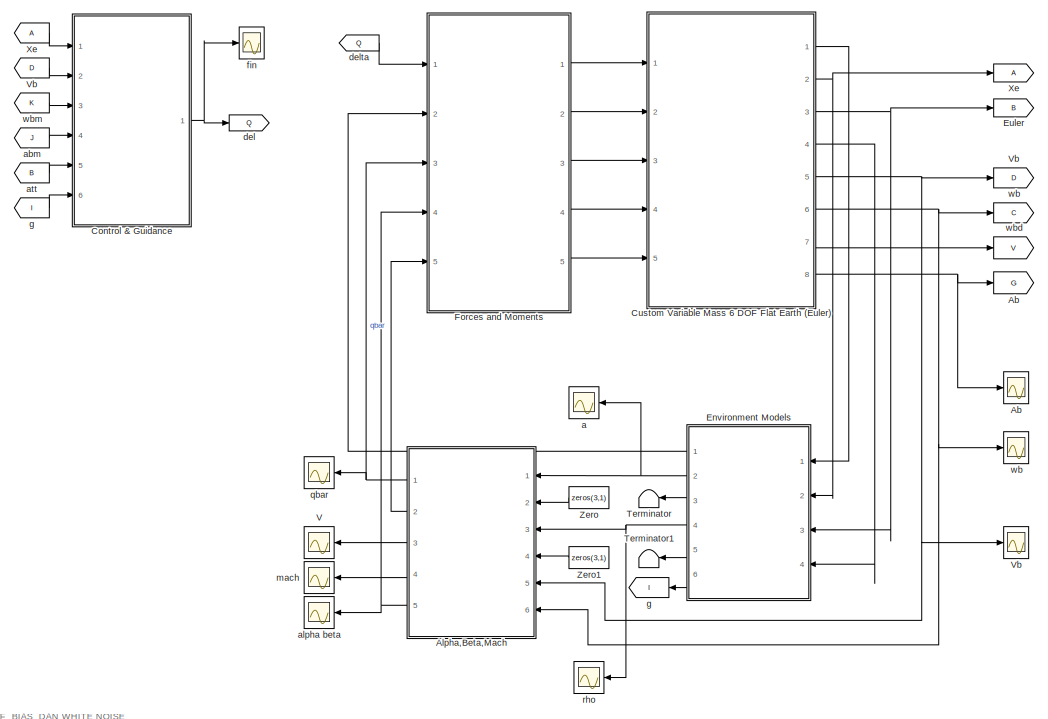
[diagram: root canvas - part 1/2, central region]
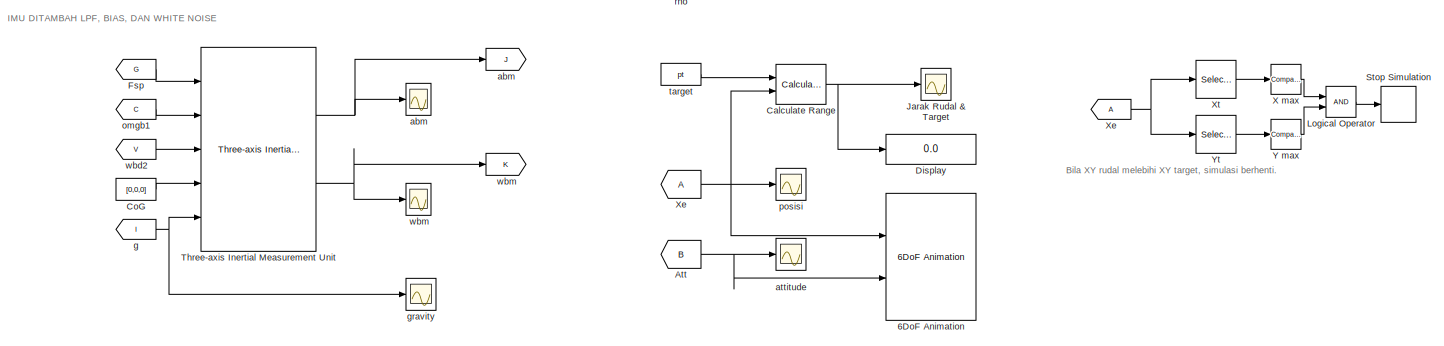
[diagram: root canvas - part 2/2, full width, bottom band]
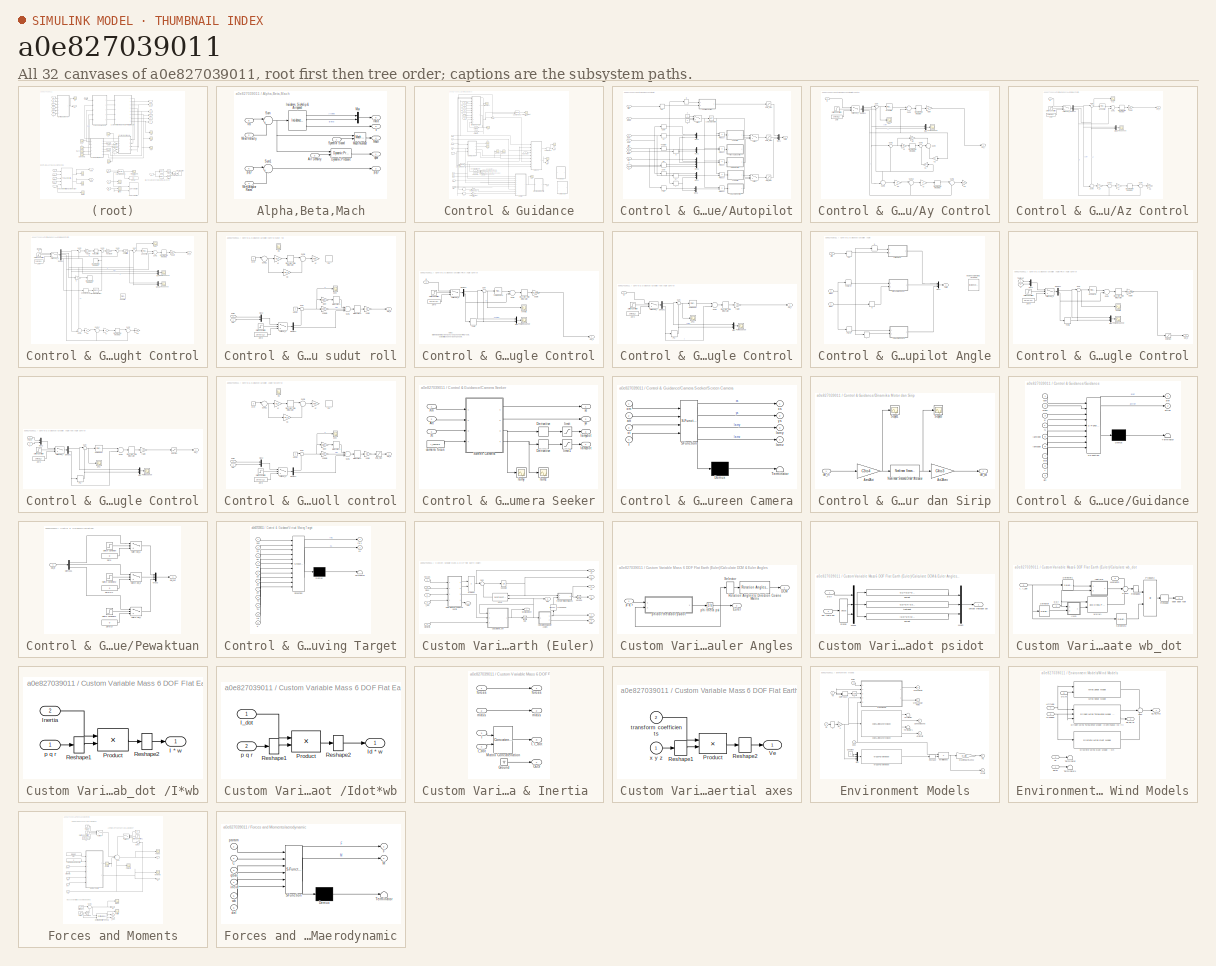
[diagram: thumbnail index - all 32 canvases of the model, root first then tree order]
MODEL slx_a0e827039011
KIND model
CONFIG AbsTol = auto
CONFIG FixedStep = Ts
CONFIG MaxStep = auto
CONFIG MinStep = auto
CONFIG RelTol = 1e-2
CONFIG SampleTimeConstraint = Unconstrained
CONFIG Solver = ode23tb
CONFIG SolverMode = Auto
CONFIG SolverName = ode23tb
CONFIG StartTime = 0.0
CONFIG StopTime = t_sim
BLOCK [Goto]   wbm
  GotoTag = K
BLOCK [From]  Fsp
  CloseFcn = tagdialog Close
  GotoTag = G
BLOCK [Scope]  Vb 
  Ports = [1]
  ScopeSpecificationString = Simulink.scopes.TimeScopeBlockCfg('CurrentConfiguration', extmgr.ConfigurationSet(extmgr.Configuration('Core','General UI',true,'ShowStatusbar',false),extmgr.Configuration('Core','Source UI',true),extmgr.Configuration('Sources','WiredSimulink',true,'DataLoggingVariableName','ScopeData1','DataLoggingSaveFormat','Array','DataLoggingDecimation','1','SampleTime','1e-1'),extmgr.Configuration('Visuals',...<+1866ch>
BLOCK [From]  Xe
  CloseFcn = tagdialog Close
BLOCK [Goto]  abm
  GotoTag = J
BLOCK [From]  g 
  CloseFcn = tagdialog Close
  GotoTag = I
BLOCK [Scope]  wb 
  Ports = [1]
  ScopeSpecificationString = Simulink.scopes.TimeScopeBlockCfg('CurrentConfiguration', extmgr.ConfigurationSet(extmgr.Configuration('Core','General UI',true),extmgr.Configuration('Core','Source UI',true),extmgr.Configuration('Sources','WiredSimulink',true,'DataLoggingVariableName','wb','DataLoggingSaveFormat','Array','SampleTime','1e-1'),extmgr.Configuration('Visuals','Time Domain',true,'SerializedDisplays',{struct('MinYLimRe...<+1607ch>
BLOCK [Reference] 6DoF Animation  REF=aerolibanim/6DoF Animation
  Ports = [2]
  SourceBlock = aerolibanim/6DoF Animation
  SourceType = 6DoF_Animation
BLOCK [Goto] Ab
  GotoTag = G
BLOCK [Scope] Ab 
  Ports = [1]
  ScopeSpecificationString = Simulink.scopes.TimeScopeBlockCfg('CurrentConfiguration', extmgr.ConfigurationSet(extmgr.Configuration('Core','General UI',true,'ShowStatusbar',false),extmgr.Configuration('Core','Source UI',true),extmgr.Configuration('Sources','WiredSimulink',true,'DataLoggingVariableName','ScopeData3','DataLoggingSaveFormat','Array','DataLoggingDecimation','1','SampleTime','1e-1'),extmgr.Configuration('Visuals',...<+1871ch>
BLOCK [SubSystem] Alpha,Beta,Mach
  Ports = [6, 5]
  RequestExecContextInheritance = off
  Variant = off
BLOCK [Inport] Alpha,Beta,Mach/Air Density
  IconDisplay = Port number
  Port = 3
BLOCK [Reference] Alpha,Beta,Mach/Dynamic Pressure  REF=aerolibasang/Dynamic Pressure
  Ports = [2, 1]
  SourceBlock = aerolibasang/Dynamic Pressure
  SourceType = Dynamic Pressure
BLOCK [Outport] Alpha,Beta,Mach/Incid
  IconDisplay = Port number
  Port = 5
BLOCK [Reference] Alpha,Beta,Mach/Incidence, Sideslip & Airspeed  REF=aerolibasang/Incidence, Sideslip,
& Airspeed
  Ports = [1, 3]
  SourceBlock = aerolibasang/Incidence, Sideslip,\n& Airspeed
  SourceType = Incidence,Sideslip,&Airspeed
BLOCK [Outport] Alpha,Beta,Mach/Mach
  IconDisplay = Port number
  Port = 4
BLOCK [Reference] Alpha,Beta,Mach/Mach Number  REF=aerolibasang/Mach Number
  Ports = [2, 1]
  SourceBlock = aerolibasang/Mach Number
  SourceType = Mach Number
BLOCK [Mux] Alpha,Beta,Mach/Mux
  DisplayOption = bar
  Inputs = 2
  Ports = [2, 1]
BLOCK [Inport] Alpha,Beta,Mach/Speed of Sound
  IconDisplay = Port number
BLOCK [Sum] Alpha,Beta,Mach/Sum
  IconShape = round
  Inputs = |+-
  Ports = [2, 1]
BLOCK [Sum] Alpha,Beta,Mach/Sum1
  IconShape = round
  Inputs = |++
  Ports = [2, 1]
BLOCK [Outport] Alpha,Beta,Mach/V
  IconDisplay = Port number
  Port = 3
BLOCK [Inport] Alpha,Beta,Mach/Vb
  IconDisplay = Port number
  Port = 5
  PortDimensions = 3
BLOCK [Inport] Alpha,Beta,Mach/Wind Angular Rates
  IconDisplay = Port number
  Port = 4
  PortDimensions = 3
BLOCK [Inport] Alpha,Beta,Mach/Wind Velocity
  IconDisplay = Port number
  Port = 2
  PortDimensions = 3
BLOCK [Inport] Alpha,Beta,Mach/p,q,r
  IconDisplay = Port number
  Port = 6
  PortDimensions = 3
BLOCK [Outport] Alpha,Beta,Mach/p,q,r 
  IconDisplay = Port number
  Port = 2
BLOCK [Outport] Alpha,Beta,Mach/qbar
  IconDisplay = Port number
  InitialOutput = 0
BLOCK [From] Att 
  CloseFcn = tagdialog Close
  GotoTag = B
BLOCK [Reference] Calculate Range  REF=aerolibguid/Calculate
Range
  Ports = [2, 1]
  SourceBlock = aerolibguid/Calculate\nRange
  SourceType = Calculate Range
BLOCK [Constant] CoG
  Value = [0,0,0]
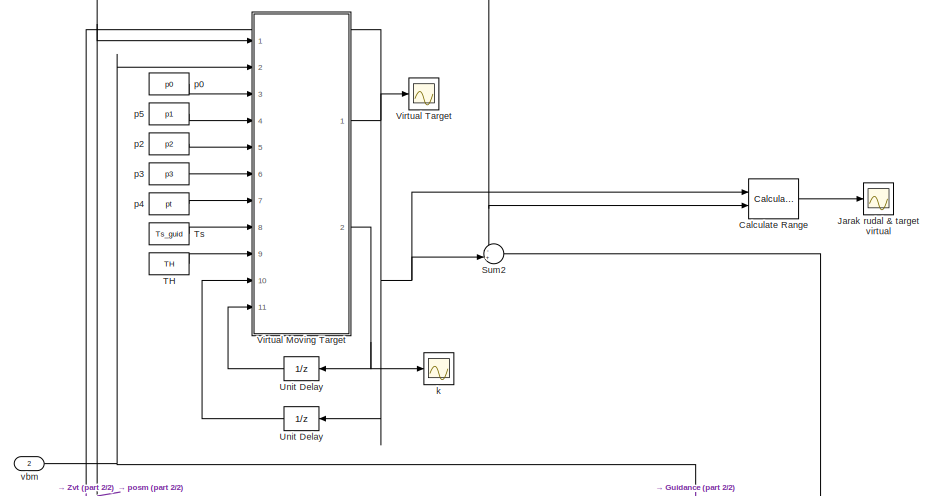
[diagram: Control & Guidance - part 1/2, top center region]
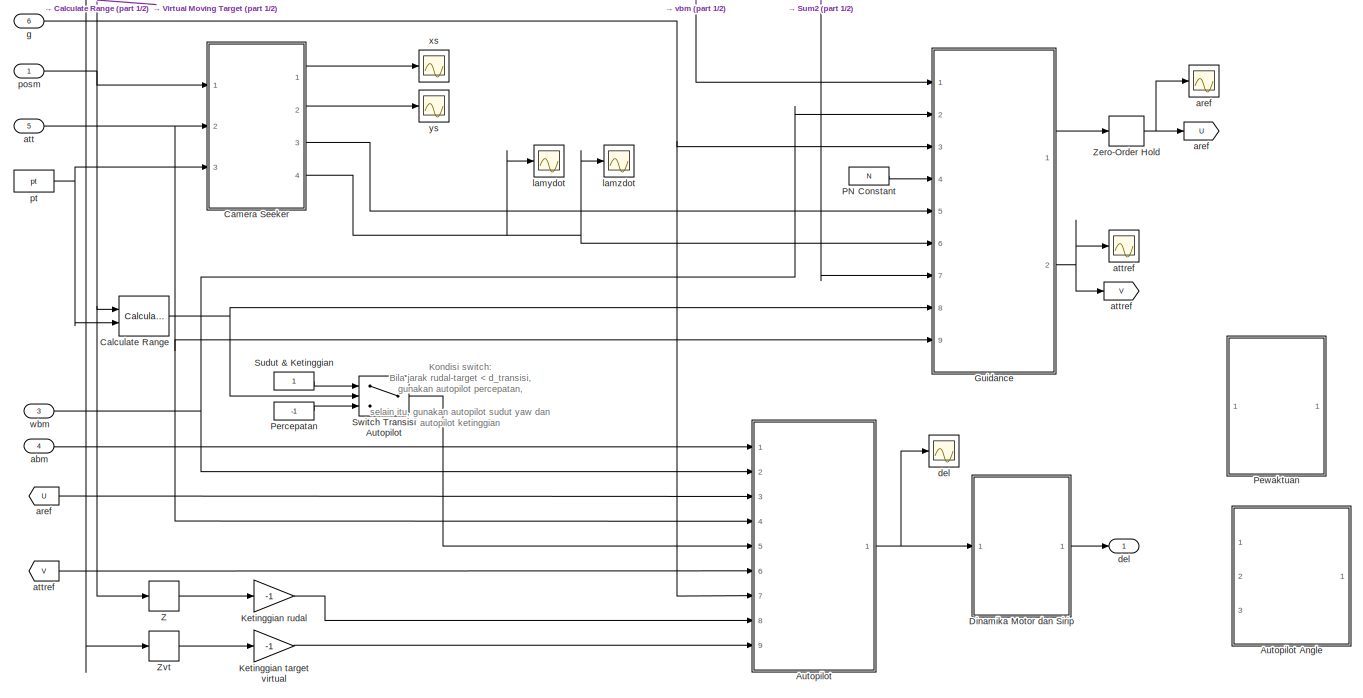
[diagram: Control & Guidance - part 2/2, full width, bottom band]
BLOCK [SubSystem] Control & Guidance
  Ports = [6, 1]
  RequestExecContextInheritance = off
  Variant = off
BLOCK [Goto] Control & Guidance/ aref
  GotoTag = U
BLOCK [Goto] Control & Guidance/ attref
  GotoTag = V
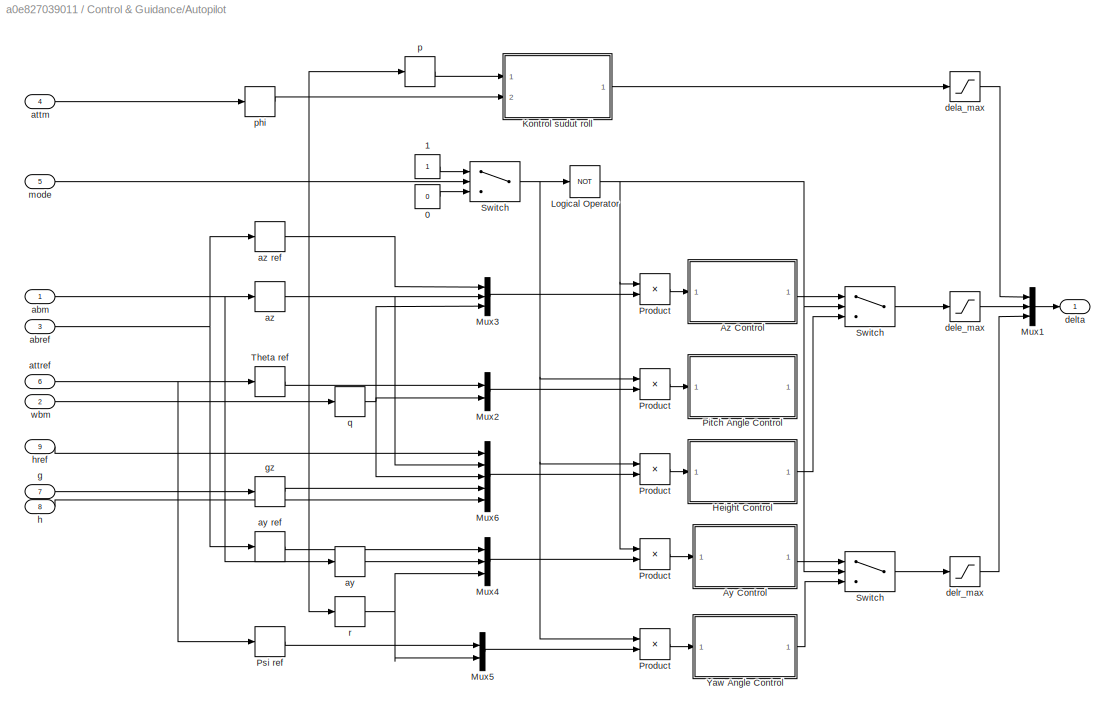
BLOCK [SubSystem] Control & Guidance/Autopilot
  Ports = [9, 1]
  RequestExecContextInheritance = off
  Variant = off
BLOCK [SubSystem] Control & Guidance/Autopilot Angle
  Commented = on
  Ports = [3, 1]
  RequestExecContextInheritance = off
  Variant = off
BLOCK [Reference] Control & Guidance/Autopilot Angle/Incidence, Sideslip & Airspeed  REF=aerolibasang/Incidence, Sideslip,
& Airspeed
  Commented = on
  Ports = [1, 3]
  SourceBlock = aerolibasang/Incidence, Sideslip,\n& Airspeed
  SourceType = Incidence,Sideslip,&Airspeed
BLOCK [Mux] Control & Guidance/Autopilot Angle/Mux1
  DisplayOption = bar
  Inputs = 3
  Ports = [3, 1]
BLOCK [SubSystem] Control & Guidance/Autopilot Angle/Pitch Angle Control
  Ports = [2, 1]
  RequestExecContextInheritance = off
  Variant = off
BLOCK [Demux] Control & Guidance/Autopilot Angle/Pitch Angle Control/Demux1
  DisplayOption = bar
  Outputs = 2
  Ports = [1, 2]
BLOCK [DiscreteIntegrator] Control & Guidance/Autopilot Angle/Pitch Angle Control/Discrete-Time Integrator
  ICPrevOutput = DiscIntNeverNeededParam
  ICPrevScaledInput = DiscIntNeverNeededParam
  InitialConditionSetting = State (most efficient)
  Ports = [1, 1]
  SampleTime = Ts_ap
BLOCK [Mux] Control & Guidance/Autopilot Angle/Pitch Angle Control/Mux
  DisplayOption = bar
  Inputs = 2
  Ports = [2, 1]
BLOCK [Mux] Control & Guidance/Autopilot Angle/Pitch Angle Control/Mux2
  DisplayOption = bar
  Inputs = 2
  Ports = [2, 1]
BLOCK [Sum] Control & Guidance/Autopilot Angle/Pitch Angle Control/Sum
  IconShape = round
  InputSameDT = off
  Inputs = |+-
  OutDataTypeStr = Inherit: Inherit via internal rule
  Ports = [2, 1]
BLOCK [Sum] Control & Guidance/Autopilot Angle/Pitch Angle Control/Sum1
  InputSameDT = off
  Inputs = +-
  OutDataTypeStr = Inherit: Inherit via internal rule
  Ports = [2, 1]
BLOCK [Step] Control & Guidance/Autopilot Angle/Pitch Angle Control/Switch Condition
  Before = -1
  SampleTime = 0
  Time = t_activate_del_e
BLOCK [Switch] Control & Guidance/Autopilot Angle/Pitch Angle Control/Switch del_e
  InputSameDT = off
  SaturateOnIntegerOverflow = off
BLOCK [DiscreteIntegrator] Control & Guidance/Autopilot Angle/Pitch Angle Control/Theta
  ICPrevOutput = DiscIntNeverNeededParam
  ICPrevScaledInput = DiscIntNeverNeededParam
  InitialConditionSetting = State (most efficient)
  Ports = [1, 1]
  SampleTime = Ts_ap
BLOCK [Scope] Control & Guidance/Autopilot Angle/Pitch Angle Control/Theta Response
  Ports = [1]
  ScopeSpecificationString = Simulink.scopes.TimeScopeBlockCfg('CurrentConfiguration', extmgr.ConfigurationSet(extmgr.Configuration('Core','General UI',true,'ShowStatusbar',false),extmgr.Configuration('Core','Source UI',true),extmgr.Configuration('Sources','WiredSimulink',true,'DataLoggingVariableName','az','DataLoggingSaveFormat','Array'),extmgr.Configuration('Visuals','Time Domain',true,'SerializedDisplays',{struct('MinYLim...<+1521ch>
BLOCK [Inport] Control & Guidance/Autopilot Angle/Pitch Angle Control/Theta ref
  IconDisplay = Port number
BLOCK [Constant] Control & Guidance/Autopilot Angle/Pitch Angle Control/Zero
  SampleTime = Ts_guid
  Value = zeros(2,1)
BLOCK [Reference] Control & Guidance/Autopilot Angle/Pitch Angle Control/az Control  REF=simulink/Continuous/PID Controller
  Ports = [1, 1]
  SourceBlock = simulink/Continuous/PID Controller
  SourceType = PID 1dof
BLOCK [Outport] Control & Guidance/Autopilot Angle/Pitch Angle Control/del_e
  IconDisplay = Port number
BLOCK [Saturate] Control & Guidance/Autopilot Angle/Pitch Angle Control/dele max
  InputPortMap = u0
  LowerLimit = -dele_max
  Ports = [1, 1]
  UpperLimit = dele_max
BLOCK [Scope] Control & Guidance/Autopilot Angle/Pitch Angle Control/e Theta 
  Ports = [1]
  ScopeSpecificationString = Simulink.scopes.TimeScopeBlockCfg('CurrentConfiguration', extmgr.ConfigurationSet(extmgr.Configuration('Core','General UI',true,'ShowStatusbar',false),extmgr.Configuration('Core','Source UI',true),extmgr.Configuration('Sources','WiredSimulink',true,'DataLoggingVariableName','eAz','DataLoggingSaveFormat','Array'),extmgr.Configuration('Visuals','Time Domain',true,'SerializedDisplays',{struct('MinYLi...<+1510ch>
BLOCK [Inport] Control & Guidance/Autopilot Angle/Pitch Angle Control/q
  IconDisplay = Port number
  Port = 2
BLOCK [Gain] Control & Guidance/Autopilot Angle/Pitch Angle Control/q Gain
  Gain = Kq_theta
  OutDataTypeStr = Inherit: Inherit via internal rule
  ParamDataTypeStr = Inherit: Inherit via internal rule
  SaturateOnIntegerOverflow = off
BLOCK [Selector] Control & Guidance/Autopilot Angle/Psi ref
  IndexOptions = Index vector (dialog)
  Indices = [3]
  InputPortWidth = 3
  OutputSizes = 1
  Ports = [1, 1]
BLOCK [Selector] Control & Guidance/Autopilot Angle/Theta ref
  IndexOptions = Index vector (dialog)
  Indices = 2
  InputPortWidth = 3
  OutputSizes = 1
  Ports = [1, 1]
BLOCK [SubSystem] Control & Guidance/Autopilot Angle/Yaw Angle Control
  Ports = [2, 1]
  RequestExecContextInheritance = off
  Variant = off
BLOCK [Demux] Control & Guidance/Autopilot Angle/Yaw Angle Control/Demux1
  DisplayOption = bar
  Outputs = 2
  Ports = [1, 2]
BLOCK [DiscreteIntegrator] Control & Guidance/Autopilot Angle/Yaw Angle Control/Discrete-Time Integrator
  ICPrevOutput = DiscIntNeverNeededParam
  ICPrevScaledInput = DiscIntNeverNeededParam
  InitialConditionSetting = State (most efficient)
  Ports = [1, 1]
  SampleTime = Ts_ap
BLOCK [Mux] Control & Guidance/Autopilot Angle/Yaw Angle Control/Mux
  DisplayOption = bar
  Inputs = 2
  Ports = [2, 1]
BLOCK [Mux] Control & Guidance/Autopilot Angle/Yaw Angle Control/Mux2
  DisplayOption = bar
  Inputs = 2
  Ports = [2, 1]
BLOCK [DiscreteIntegrator] Control & Guidance/Autopilot Angle/Yaw Angle Control/Psi
  ICPrevOutput = DiscIntNeverNeededParam
  ICPrevScaledInput = DiscIntNeverNeededParam
  InitialConditionSetting = State (most efficient)
  Ports = [1, 1]
  SampleTime = Ts_ap
BLOCK [Reference] Control & Guidance/Autopilot Angle/Yaw Angle Control/Psi Control  REF=simulink/Continuous/PID Controller
  Ports = [1, 1]
  SourceBlock = simulink/Continuous/PID Controller
  SourceType = PID 1dof
BLOCK [Scope] Control & Guidance/Autopilot Angle/Yaw Angle Control/Psi Response
  Ports = [1]
  ScopeSpecificationString = Simulink.scopes.TimeScopeBlockCfg('CurrentConfiguration', extmgr.ConfigurationSet(extmgr.Configuration('Core','General UI',true,'ShowStatusbar',false),extmgr.Configuration('Core','Source UI',true),extmgr.Configuration('Sources','WiredSimulink',true,'DataLoggingVariableName','ay','DataLoggingSaveFormat','Array'),extmgr.Configuration('Visuals','Time Domain',true,'SerializedDisplays',{struct('MinYLim...<+1488ch>
BLOCK [Inport] Control & Guidance/Autopilot Angle/Yaw Angle Control/Psi ref
  IconDisplay = Port number
BLOCK [Sum] Control & Guidance/Autopilot Angle/Yaw Angle Control/Sum
  IconShape = round
  InputSameDT = off
  Inputs = |+-
  OutDataTypeStr = Inherit: Inherit via internal rule
  Ports = [2, 1]
BLOCK [Sum] Control & Guidance/Autopilot Angle/Yaw Angle Control/Sum1
  InputSameDT = off
  Inputs = +-
  OutDataTypeStr = Inherit: Inherit via internal rule
  Ports = [2, 1]
BLOCK [Step] Control & Guidance/Autopilot Angle/Yaw Angle Control/Switch Condition
  Before = -1
  SampleTime = 0
  Time = t_activate_del_r
BLOCK [Switch] Control & Guidance/Autopilot Angle/Yaw Angle Control/Switch del_r
  InputSameDT = off
  SaturateOnIntegerOverflow = off
BLOCK [Constant] Control & Guidance/Autopilot Angle/Yaw Angle Control/Zero
  SampleTime = Ts_guid
  Value = zeros(2,1)
BLOCK [Outport] Control & Guidance/Autopilot Angle/Yaw Angle Control/del_r
  IconDisplay = Port number
BLOCK [Saturate] Control & Guidance/Autopilot Angle/Yaw Angle Control/delr max
  InputPortMap = u0
  LowerLimit = -delr_max
  Ports = [1, 1]
  UpperLimit = delr_max
BLOCK [Scope] Control & Guidance/Autopilot Angle/Yaw Angle Control/e Psi
  Ports = [1]
  ScopeSpecificationString = Simulink.scopes.TimeScopeBlockCfg('CurrentConfiguration', extmgr.ConfigurationSet(extmgr.Configuration('Core','General UI',true,'ShowStatusbar',false),extmgr.Configuration('Core','Source UI',true),extmgr.Configuration('Sources','WiredSimulink',true,'DataLoggingVariableName','eAy','DataLoggingSaveFormat','Array'),extmgr.Configuration('Visuals','Time Domain',true,'SerializedDisplays',{struct('MinYLi...<+1506ch>
BLOCK [Inport] Control & Guidance/Autopilot Angle/Yaw Angle Control/r 
  IconDisplay = Port number
  Port = 2
BLOCK [Gain] Control & Guidance/Autopilot Angle/Yaw Angle Control/r Gain
  Gain = Kr_psi
  OutDataTypeStr = Inherit: Inherit via internal rule
  ParamDataTypeStr = Inherit: Inherit via internal rule
  SaturateOnIntegerOverflow = off
BLOCK [Inport] Control & Guidance/Autopilot Angle/attm
  IconDisplay = Port number
  Port = 3
BLOCK [Inport] Control & Guidance/Autopilot Angle/attref
  IconDisplay = Port number
  Port = 2
BLOCK [Outport] Control & Guidance/Autopilot Angle/delta
  IconDisplay = Port number
BLOCK [Selector] Control & Guidance/Autopilot Angle/p
  IndexOptions = Index vector (dialog)
  Indices = [1]
  InputPortWidth = 3
  OutputSizes = 1
  Ports = [1, 1]
BLOCK [Selector] Control & Guidance/Autopilot Angle/phi
  IndexOptions = Index vector (dialog)
  Indices = [1]
  InputPortWidth = 3
  OutputSizes = 1
  Ports = [1, 1]
BLOCK [Selector] Control & Guidance/Autopilot Angle/q
  IndexOptions = Index vector (dialog)
  Indices = [2]
  InputPortWidth = 3
  OutputSizes = 1
  Ports = [1, 1]
BLOCK [Selector] Control & Guidance/Autopilot Angle/r
  IndexOptions = Index vector (dialog)
  Indices = [3]
  InputPortWidth = 3
  OutputSizes = 1
  Ports = [1, 1]
BLOCK [SubSystem] Control & Guidance/Autopilot Angle/roll control
  Ports = [2, 1]
  RequestExecContextInheritance = off
  Variant = off
BLOCK [DiscreteIntegrator] Control & Guidance/Autopilot Angle/roll control/  Integrator 1
  ICPrevOutput = DiscIntNeverNeededParam
  ICPrevScaledInput = DiscIntNeverNeededParam
  InitialConditionSetting = State (most efficient)
  Ports = [1, 1]
  SampleTime = Ts_ap
BLOCK [DiscreteIntegrator] Control & Guidance/Autopilot Angle/roll control/  Integrator 2
  ICPrevOutput = DiscIntNeverNeededParam
  ICPrevScaledInput = DiscIntNeverNeededParam
  InitialConditionSetting = State (most efficient)
  Ports = [1, 1]
  SampleTime = Ts_ap
BLOCK [DiscreteIntegrator] Control & Guidance/Autopilot Angle/roll control/  Phi
  Commented = on
  ICPrevOutput = DiscIntNeverNeededParam
  ICPrevScaledInput = DiscIntNeverNeededParam
  InitialConditionSetting = State (most efficient)
  Ports = [1, 1]
  SampleTime = Ts_ap
BLOCK [Demux] Control & Guidance/Autopilot Angle/roll control/Demux1
  DisplayOption = bar
  Outputs = 2
  Ports = [1, 2]
BLOCK [DiscreteIntegrator] Control & Guidance/Autopilot Angle/roll control/Discrete-Time Integrator
  Commented = on
  ICPrevOutput = DiscIntNeverNeededParam
  ICPrevScaledInput = DiscIntNeverNeededParam
  Ports = [1, 1]
  SampleTime = Ts_ap
BLOCK [Gain] Control & Guidance/Autopilot Angle/roll control/Kf
  Commented = on
  Gain = Kda
  Multiplication = Matrix(K*u)
BLOCK [Gain] Control & Guidance/Autopilot Angle/roll control/Ki
  Commented = on
  Gain = Ki_p
  Multiplication = Matrix(K*u)
BLOCK [Gain] Control & Guidance/Autopilot Angle/roll control/Ki phi
  Gain = Kiphi
  OutDataTypeStr = Inherit: Inherit via internal rule
  ParamDataTypeStr = Inherit: Inherit via internal rule
  SaturateOnIntegerOverflow = off
BLOCK [Gain] Control & Guidance/Autopilot Angle/roll control/Kp
  Commented = on
  Gain = Kp_p
  Multiplication = Matrix(K*u)
BLOCK [Mux] Control & Guidance/Autopilot Angle/roll control/Mux2
  DisplayOption = bar
  Inputs = 2
  Ports = [2, 1]
BLOCK [Sum] Control & Guidance/Autopilot Angle/roll control/Sum
  IconShape = round
  InputSameDT = off
  Inputs = |+-
  OutDataTypeStr = Inherit: Inherit via internal rule
  Ports = [2, 1]
BLOCK [Sum] Control & Guidance/Autopilot Angle/roll control/Sum1
  InputSameDT = off
  Inputs = ++-
  OutDataTypeStr = Inherit: Inherit via internal rule
  Ports = [3, 1]
BLOCK [Sum] Control & Guidance/Autopilot Angle/roll control/Sum11
  Commented = on
  IconShape = round
  Inputs = |+-
  Ports = [2, 1]
BLOCK [Sum] Control & Guidance/Autopilot Angle/roll control/Sum3
  Commented = on
  IconShape = round
  Inputs = |++
  Ports = [2, 1]
BLOCK [Step] Control & Guidance/Autopilot Angle/roll control/Switch Condition
  Before = -1
  SampleTime = 0
  Time = t_activate_del_a
BLOCK [Switch] Control & Guidance/Autopilot Angle/roll control/Swith del_a
  InputSameDT = off
  SaturateOnIntegerOverflow = off
BLOCK [Constant] Control & Guidance/Autopilot Angle/roll control/Zero
  SampleTime = Ts_guid
  Value = zeros(2,1)
BLOCK [Outport] Control & Guidance/Autopilot Angle/roll control/del_a
  IconDisplay = Port number
BLOCK [Saturate] Control & Guidance/Autopilot Angle/roll control/dela_max
  InputPortMap = u0
  LowerLimit = -dela_max
  Ports = [1, 1]
  UpperLimit = dela_max
BLOCK [Scope] Control & Guidance/Autopilot Angle/roll control/e p
  Commented = on
  Ports = [1]
  ScopeSpecificationString = Simulink.scopes.TimeScopeBlockCfg('CurrentConfiguration', extmgr.ConfigurationSet(extmgr.Configuration('Core','General UI',true),extmgr.Configuration('Core','Source UI',true),extmgr.Configuration('Sources','WiredSimulink',true,'DataLoggingSaveFormat','Array','DataLoggingDecimation','1','DataLoggingVariableName','ScopeData1'),extmgr.Configuration('Visuals','Time Domain',true,'SerializedDisplays',{s...<+1663ch>
BLOCK [Scope] Control & Guidance/Autopilot Angle/roll control/e phi
  Ports = [1]
  ScopeSpecificationString = Simulink.scopes.TimeScopeBlockCfg('CurrentConfiguration', extmgr.ConfigurationSet(extmgr.Configuration('Core','General UI',true),extmgr.Configuration('Core','Source UI',true),extmgr.Configuration('Sources','WiredSimulink',true,'DataLoggingSaveFormat','Array','DataLoggingDecimation','1','DataLoggingVariableName','eroll'),extmgr.Configuration('Visuals','Time Domain',true,'SerializedDisplays',{struct...<+1663ch>
BLOCK [Gain] Control & Guidance/Autopilot Angle/roll control/p Gain
  Gain = Kp
  OutDataTypeStr = Inherit: Inherit via internal rule
  ParamDataTypeStr = Inherit: Inherit via internal rule
  SaturateOnIntegerOverflow = off
BLOCK [Constant] Control & Guidance/Autopilot Angle/roll control/p ref
  Commented = on
  Value = 0
BLOCK [Gain] Control & Guidance/Autopilot Angle/roll control/phi Gain
  Gain = Kphi
  OutDataTypeStr = Inherit: Inherit via internal rule
  ParamDataTypeStr = Inherit: Inherit via internal rule
  SaturateOnIntegerOverflow = off
BLOCK [Constant] Control & Guidance/Autopilot Angle/roll control/phi ref
  Value = 0
BLOCK [Inport] Control & Guidance/Autopilot Angle/roll control/phim
  IconDisplay = Port number
  Port = 2
BLOCK [Inport] Control & Guidance/Autopilot Angle/roll control/pm
  IconDisplay = Port number
BLOCK [Inport] Control & Guidance/Autopilot Angle/wbm
  IconDisplay = Port number
BLOCK [Product] Control & Guidance/Autopilot/ Product 
  InputSameDT = off
  OutDataTypeStr = Inherit: Inherit via internal rule
  Ports = [2, 1]
  RndMeth = Floor
  SaturateOnIntegerOverflow = off
BLOCK [Constant] Control & Guidance/Autopilot/0
  Value = 0
BLOCK [Constant] Control & Guidance/Autopilot/1
BLOCK [SubSystem] Control & Guidance/Autopilot/Ay Control
  Ports = [1, 1]
  RequestExecContextInheritance = off
  Variant = off
BLOCK [Demux] Control & Guidance/Autopilot/Ay Control/Demux1
  DisplayOption = bar
  Outputs = 3
  Ports = [1, 3]
BLOCK [DiscreteIntegrator] Control & Guidance/Autopilot/Ay Control/Discrete-Time Integrator
  ICPrevOutput = DiscIntNeverNeededParam
  ICPrevScaledInput = DiscIntNeverNeededParam
  InitialConditionSetting = State (most efficient)
  Ports = [1, 1]
  SampleTime = Ts_ap
BLOCK [DiscreteIntegrator] Control & Guidance/Autopilot/Ay Control/Discrete-Time Integrator1
  Commented = on
  ICPrevOutput = DiscIntNeverNeededParam
  ICPrevScaledInput = DiscIntNeverNeededParam
  Ports = [1, 1]
  SampleTime = Ts_ap
BLOCK [DiscreteIntegrator] Control & Guidance/Autopilot/Ay Control/Discrete-Time Integrator2
  Commented = on
  ICPrevOutput = DiscIntNeverNeededParam
  ICPrevScaledInput = DiscIntNeverNeededParam
  Ports = [1, 1]
  SampleTime = Ts_ap
BLOCK [Gain] Control & Guidance/Autopilot/Ay Control/GI
  Commented = on
  Gain = GIr
  OutDataTypeStr = Inherit: Inherit via internal rule
  ParamDataTypeStr = Inherit: Inherit via internal rule
  SaturateOnIntegerOverflow = off
BLOCK [Gain] Control & Guidance/Autopilot/Ay Control/GP
  Commented = on
  Gain = GPr
  OutDataTypeStr = Inherit: Inherit via internal rule
  ParamDataTypeStr = Inherit: Inherit via internal rule
  SaturateOnIntegerOverflow = off
BLOCK [Inport] Control & Guidance/Autopilot/Ay Control/In
  IconDisplay = Port number
BLOCK [Gain] Control & Guidance/Autopilot/Ay Control/K1
  Commented = on
  Gain = K1r
  OutDataTypeStr = Inherit: Inherit via internal rule
  ParamDataTypeStr = Inherit: Inherit via internal rule
  SaturateOnIntegerOverflow = off
BLOCK [Gain] Control & Guidance/Autopilot/Ay Control/K2
  Commented = on
  Gain = K2r
  OutDataTypeStr = Inherit: Inherit via internal rule
  ParamDataTypeStr = Inherit: Inherit via internal rule
  SaturateOnIntegerOverflow = off
BLOCK [Gain] Control & Guidance/Autopilot/Ay Control/KG
  Commented = on
  Gain = -1e-3
  Multiplication = Matrix(K*u)
BLOCK [Gain] Control & Guidance/Autopilot/Ay Control/KI
  Commented = on
  Multiplication = Matrix(K*u)
BLOCK [Gain] Control & Guidance/Autopilot/Ay Control/KP
  Commented = on
  Multiplication = Matrix(K*u)
BLOCK [Mux] Control & Guidance/Autopilot/Ay Control/Mux
  DisplayOption = bar
  Inputs = 2
  Ports = [2, 1]
BLOCK [Sum] Control & Guidance/Autopilot/Ay Control/Sum
  IconShape = round
  InputSameDT = off
  Inputs = |+-
  OutDataTypeStr = Inherit: Inherit via internal rule
  Ports = [2, 1]
BLOCK [Sum] Control & Guidance/Autopilot/Ay Control/Sum1
  InputSameDT = off
  OutDataTypeStr = Inherit: Inherit via internal rule
  Ports = [2, 1]
BLOCK [Sum] Control & Guidance/Autopilot/Ay Control/Sum10
  Commented = on
  IconShape = round
  Inputs = |+-
  Ports = [2, 1]
BLOCK [Sum] Control & Guidance/Autopilot/Ay Control/Sum2
  Commented = on
  IconShape = round
  InputSameDT = off
  Inputs = |+-
  OutDataTypeStr = Inherit: Inherit via internal rule
  Ports = [2, 1]
  SaturateOnIntegerOverflow = off
BLOCK [Sum] Control & Guidance/Autopilot/Ay Control/Sum3
  Commented = on
  IconShape = round
  InputSameDT = off
  Inputs = |+-
  OutDataTypeStr = Inherit: Inherit via internal rule
  Ports = [2, 1]
  SaturateOnIntegerOverflow = off
BLOCK [Sum] Control & Guidance/Autopilot/Ay Control/Sum4
  Commented = on
  IconShape = round
  InputSameDT = off
  Inputs = +|+|-
  OutDataTypeStr = Inherit: Inherit via internal rule
  Ports = [3, 1]
  SaturateOnIntegerOverflow = off
BLOCK [Sum] Control & Guidance/Autopilot/Ay Control/Sum5
  Commented = on
  IconShape = round
  Inputs = |+-
  Ports = [2, 1]
BLOCK [Sum] Control & Guidance/Autopilot/Ay Control/Sum9
  Commented = on
  IconShape = round
  Inputs = -+|
  Ports = [2, 1]
BLOCK [Step] Control & Guidance/Autopilot/Ay Control/Switch Condition
  Before = -1
  SampleTime = 0
  Time = t_activate_del_r
BLOCK [Switch] Control & Guidance/Autopilot/Ay Control/Switch del_r
  InputSameDT = off
  SaturateOnIntegerOverflow = off
BLOCK [Constant] Control & Guidance/Autopilot/Ay Control/Zero
  SampleTime = Ts_guid
  Value = zeros(3,1)
BLOCK [Reference] Control & Guidance/Autopilot/Ay Control/ay Control  REF=simulink/Continuous/PID Controller
  Ports = [1, 1]
  SourceBlock = simulink/Continuous/PID Controller
  SourceType = PID 1dof
BLOCK [Scope] Control & Guidance/Autopilot/Ay Control/ay Response
  Ports = [1]
  ScopeSpecificationString = Simulink.scopes.TimeScopeBlockCfg('CurrentConfiguration', extmgr.ConfigurationSet(extmgr.Configuration('Core','General UI',true,'ShowStatusbar',false),extmgr.Configuration('Core','Source UI',true),extmgr.Configuration('Sources','WiredSimulink',true,'DataLoggingVariableName','ay','DataLoggingSaveFormat','Array'),extmgr.Configuration('Visuals','Time Domain',true,'SerializedDisplays',{struct('MinYLim...<+1493ch>
BLOCK [Outport] Control & Guidance/Autopilot/Ay Control/del_r
  IconDisplay = Port number
BLOCK [Scope] Control & Guidance/Autopilot/Ay Control/e Ay
  Ports = [1]
  ScopeSpecificationString = Simulink.scopes.TimeScopeBlockCfg('CurrentConfiguration', extmgr.ConfigurationSet(extmgr.Configuration('Core','General UI',true,'ShowStatusbar',false),extmgr.Configuration('Core','Source UI',true),extmgr.Configuration('Sources','WiredSimulink',true,'DataLoggingVariableName','eAy','DataLoggingSaveFormat','Array'),extmgr.Configuration('Visuals','Time Domain',true,'SerializedDisplays',{struct('MinYLi...<+1512ch>
BLOCK [Gain] Control & Guidance/Autopilot/Ay Control/r Gain
  Gain = Kr
  OutDataTypeStr = Inherit: Inherit via internal rule
  ParamDataTypeStr = Inherit: Inherit via internal rule
  SaturateOnIntegerOverflow = off
BLOCK [SubSystem] Control & Guidance/Autopilot/Az Control
  Ports = [1, 1]
  RequestExecContextInheritance = off
  Variant = off
BLOCK [Demux] Control & Guidance/Autopilot/Az Control/Demux1
  DisplayOption = bar
  Outputs = 3
  Ports = [1, 3]
BLOCK [DiscreteIntegrator] Control & Guidance/Autopilot/Az Control/Discrete-Time Integrator
  ICPrevOutput = DiscIntNeverNeededParam
  ICPrevScaledInput = DiscIntNeverNeededParam
  InitialConditionSetting = State (most efficient)
  Ports = [1, 1]
  SampleTime = Ts_ap
BLOCK [DiscreteIntegrator] Control & Guidance/Autopilot/Az Control/Discrete-Time Integrator2
  Commented = on
  ICPrevOutput = DiscIntNeverNeededParam
  ICPrevScaledInput = DiscIntNeverNeededParam
  Ports = [1, 1]
  SampleTime = Ts_ap
BLOCK [Inport] Control & Guidance/Autopilot/Az Control/In
  IconDisplay = Port number
BLOCK [Gain] Control & Guidance/Autopilot/Az Control/KG
  Commented = on
  Gain = 5e-3
  Multiplication = Matrix(K*u)
BLOCK [Gain] Control & Guidance/Autopilot/Az Control/KI
  Commented = on
  Multiplication = Matrix(K*u)
BLOCK [Gain] Control & Guidance/Autopilot/Az Control/KP
  Commented = on
  Multiplication = Matrix(K*u)
BLOCK [Mux] Control & Guidance/Autopilot/Az Control/Mux
  DisplayOption = bar
  Inputs = 2
  Ports = [2, 1]
BLOCK [Sum] Control & Guidance/Autopilot/Az Control/Sum
  IconShape = round
  InputSameDT = off
  Inputs = |+-
  OutDataTypeStr = Inherit: Inherit via internal rule
  Ports = [2, 1]
BLOCK [Sum] Control & Guidance/Autopilot/Az Control/Sum1
  InputSameDT = off
  OutDataTypeStr = Inherit: Inherit via internal rule
  Ports = [2, 1]
BLOCK [Sum] Control & Guidance/Autopilot/Az Control/Sum10
  Commented = on
  IconShape = round
  Inputs = |+-
  Ports = [2, 1]
BLOCK [Sum] Control & Guidance/Autopilot/Az Control/Sum5
  Commented = on
  IconShape = round
  Inputs = |+-
  Ports = [2, 1]
BLOCK [Sum] Control & Guidance/Autopilot/Az Control/Sum9
  Commented = on
  IconShape = round
  Inputs = -+|
  Ports = [2, 1]
BLOCK [Step] Control & Guidance/Autopilot/Az Control/Switch Condition
  Before = -1
  SampleTime = 0
  Time = t_activate_del_e
BLOCK [Switch] Control & Guidance/Autopilot/Az Control/Switch del_e
  InputSameDT = off
  SaturateOnIntegerOverflow = off
BLOCK [Constant] Control & Guidance/Autopilot/Az Control/Zero
  SampleTime = Ts_guid
  Value = zeros(3,1)
BLOCK [Reference] Control & Guidance/Autopilot/Az Control/az Control  REF=simulink/Continuous/PID Controller
  Ports = [1, 1]
  SourceBlock = simulink/Continuous/PID Controller
  SourceType = PID 1dof
BLOCK [Scope] Control & Guidance/Autopilot/Az Control/az Response
  Ports = [1]
  ScopeSpecificationString = Simulink.scopes.TimeScopeBlockCfg('CurrentConfiguration', extmgr.ConfigurationSet(extmgr.Configuration('Core','General UI',true,'ShowStatusbar',false),extmgr.Configuration('Core','Source UI',true),extmgr.Configuration('Sources','WiredSimulink',true,'DataLoggingVariableName','az','DataLoggingSaveFormat','Array'),extmgr.Configuration('Visuals','Time Domain',true,'SerializedDisplays',{struct('MinYLim...<+1508ch>
BLOCK [Outport] Control & Guidance/Autopilot/Az Control/del_e
  IconDisplay = Port number
BLOCK [Scope] Control & Guidance/Autopilot/Az Control/e Az 
  Ports = [1]
  ScopeSpecificationString = Simulink.scopes.TimeScopeBlockCfg('CurrentConfiguration', extmgr.ConfigurationSet(extmgr.Configuration('Core','General UI',true,'ShowStatusbar',false),extmgr.Configuration('Core','Source UI',true),extmgr.Configuration('Sources','WiredSimulink',true,'DataLoggingVariableName','eAz','DataLoggingSaveFormat','Array'),extmgr.Configuration('Visuals','Time Domain',true,'SerializedDisplays',{struct('MinYLi...<+1516ch>
BLOCK [Gain] Control & Guidance/Autopilot/Az Control/q Gain
  Gain = Kq
  OutDataTypeStr = Inherit: Inherit via internal rule
  ParamDataTypeStr = Inherit: Inherit via internal rule
  SaturateOnIntegerOverflow = off
BLOCK [SubSystem] Control & Guidance/Autopilot/Height Control
  Ports = [1, 1]
  RequestExecContextInheritance = off
  Variant = off
BLOCK [Gain] Control & Guidance/Autopilot/Height Control/-1
  Gain = -1
  OutDataTypeStr = Inherit: Inherit via internal rule
  ParamDataTypeStr = Inherit: Inherit via internal rule
  SaturateOnIntegerOverflow = off
BLOCK [Saturate] Control & Guidance/Autopilot/Height Control/Az ref limits
  InputPortMap = u0
  LowerLimit = -20
  Ports = [1, 1]
  UpperLimit = 20
BLOCK [Demux] Control & Guidance/Autopilot/Height Control/Demux1
  DisplayOption = bar
  Outputs = 5
  Ports = [1, 5]
BLOCK [Reference] Control & Guidance/Autopilot/Height Control/Discrete Derivative  REF=simulink/Discrete/Discrete Derivative
  Ports = [1, 1]
  SourceBlock = simulink/Discrete/Discrete Derivative
  SourceType = Discrete Derivative
BLOCK [DiscreteIntegrator] Control & Guidance/Autopilot/Height Control/Discrete-Time Integrator 1
  ICPrevOutput = DiscIntNeverNeededParam
  ICPrevScaledInput = DiscIntNeverNeededParam
  InitialConditionSetting = State (most efficient)
  Ports = [1, 1]
  SampleTime = Ts_ap
BLOCK [DiscreteIntegrator] Control & Guidance/Autopilot/Height Control/Discrete-Time Integrator 2
  ICPrevOutput = DiscIntNeverNeededParam
  ICPrevScaledInput = DiscIntNeverNeededParam
  InitialConditionSetting = State (most efficient)
  Ports = [1, 1]
  SampleTime = Ts_ap
BLOCK [DiscreteIntegrator] Control & Guidance/Autopilot/Height Control/Discrete-Time Integrator 3
  ICPrevOutput = DiscIntNeverNeededParam
  ICPrevScaledInput = DiscIntNeverNeededParam
  InitialConditionSetting = State (most efficient)
  Ports = [1, 1]
  SampleTime = Ts_ap
BLOCK [DiscreteIntegrator] Control & Guidance/Autopilot/Height Control/Discrete-Time Integrator2
  Commented = on
  ICPrevOutput = DiscIntNeverNeededParam
  ICPrevScaledInput = DiscIntNeverNeededParam
  Ports = [1, 1]
  SampleTime = Ts_ap
BLOCK [Inport] Control & Guidance/Autopilot/Height Control/In
  IconDisplay = Port number
BLOCK [Gain] Control & Guidance/Autopilot/Height Control/KG
  Commented = on
  Gain = 5e-3
  Multiplication = Matrix(K*u)
BLOCK [Gain] Control & Guidance/Autopilot/Height Control/KI
  Commented = on
  Multiplication = Matrix(K*u)
BLOCK [Gain] Control & Guidance/Autopilot/Height Control/KP
  Commented = on
  Multiplication = Matrix(K*u)
BLOCK [Mux] Control & Guidance/Autopilot/Height Control/Mux
  DisplayOption = bar
  Inputs = 2
  Ports = [2, 1]
BLOCK [Mux] Control & Guidance/Autopilot/Height Control/Mux1
  DisplayOption = bar
  Inputs = 2
  Ports = [2, 1]
BLOCK [RateLimiter] Control & Guidance/Autopilot/Height Control/Rate Limiter
  FallingSlewLimit = -20
  RisingSlewLimit = 20
  SampleTimeMode = inherited
BLOCK [Sum] Control & Guidance/Autopilot/Height Control/Sum
  IconShape = round
  InputSameDT = off
  Inputs = |+-
  OutDataTypeStr = Inherit: Inherit via internal rule
  Ports = [2, 1]
BLOCK [Sum] Control & Guidance/Autopilot/Height Control/Sum1
  InputSameDT = off
  OutDataTypeStr = Inherit: Inherit via internal rule
  Ports = [2, 1]
BLOCK [Sum] Control & Guidance/Autopilot/Height Control/Sum10
  Commented = on
  IconShape = round
  Inputs = |+-
  Ports = [2, 1]
BLOCK [Sum] Control & Guidance/Autopilot/Height Control/Sum2
  IconShape = round
  InputSameDT = off
  Inputs = |+-
  OutDataTypeStr = Inherit: Inherit via internal rule
  Ports = [2, 1]
BLOCK [Sum] Control & Guidance/Autopilot/Height Control/Sum3
  IconShape = round
  InputSameDT = off
  Inputs = |+-
  OutDataTypeStr = Inherit: Inherit via internal rule
  Ports = [2, 1]
BLOCK [Sum] Control & Guidance/Autopilot/Height Control/Sum4
  IconShape = round
  InputSameDT = off
  Inputs = |+-
  OutDataTypeStr = Inherit: Inherit via internal rule
  Ports = [2, 1]
BLOCK [Sum] Control & Guidance/Autopilot/Height Control/Sum5
  Commented = on
  IconShape = round
  Inputs = |+-
  Ports = [2, 1]
BLOCK [Sum] Control & Guidance/Autopilot/Height Control/Sum9
  Commented = on
  IconShape = round
  Inputs = -+|
  Ports = [2, 1]
BLOCK [Step] Control & Guidance/Autopilot/Height Control/Switch Condition
  Before = -1
  SampleTime = 0
  Time = t_activate_del_e
BLOCK [Switch] Control & Guidance/Autopilot/Height Control/Switch del_e
  InputSameDT = off
  SaturateOnIntegerOverflow = off
BLOCK [Constant] Control & Guidance/Autopilot/Height Control/Zero
  SampleTime = Ts_guid
  Value = zeros(5,1)
BLOCK [ZeroOrderHold] Control & Guidance/Autopilot/Height Control/Zero-Order Hold
  SampleTime = Ts_ap
BLOCK [Reference] Control & Guidance/Autopilot/Height Control/az Control  REF=simulink/Continuous/PID Controller
  Ports = [1, 1]
  SourceBlock = simulink/Continuous/PID Controller
  SourceType = PID 1dof
BLOCK [Scope] Control & Guidance/Autopilot/Height Control/az Response
  Ports = [1]
  ScopeSpecificationString = Simulink.scopes.TimeScopeBlockCfg('CurrentConfiguration', extmgr.ConfigurationSet(extmgr.Configuration('Core','General UI',true,'ShowStatusbar',false),extmgr.Configuration('Core','Source UI',true),extmgr.Configuration('Sources','WiredSimulink',true,'DataLoggingVariableName','ScopeData1','DataLoggingSaveFormat','Array'),extmgr.Configuration('Visuals','Time Domain',true,'SerializedDisplays',{struct(...<+1536ch>
BLOCK [Outport] Control & Guidance/Autopilot/Height Control/del_e
  IconDisplay = Port number
BLOCK [Scope] Control & Guidance/Autopilot/Height Control/e Az 
  Ports = [1]
  ScopeSpecificationString = Simulink.scopes.TimeScopeBlockCfg('CurrentConfiguration', extmgr.ConfigurationSet(extmgr.Configuration('Core','General UI',true,'ShowStatusbar',false),extmgr.Configuration('Core','Source UI',true),extmgr.Configuration('Sources','WiredSimulink',true,'DataLoggingVariableName','eAz','DataLoggingSaveFormat','Array'),extmgr.Configuration('Visuals','Time Domain',true,'SerializedDisplays',{struct('MinYLi...<+1514ch>
BLOCK [Reference] Control & Guidance/Autopilot/Height Control/h Control  REF=simulink/Continuous/PID Controller
  Commented = on
  Ports = [1, 1]
  SourceBlock = simulink/Continuous/PID Controller
  SourceType = PID 1dof
BLOCK [Gain] Control & Guidance/Autopilot/Height Control/h Gain
  Gain = Kp_h
  OutDataTypeStr = Inherit: Inherit via internal rule
  ParamDataTypeStr = Inherit: Inherit via internal rule
  SaturateOnIntegerOverflow = off
BLOCK [Gain] Control & Guidance/Autopilot/Height Control/hdot Gain
  Gain = Khdot
  OutDataTypeStr = Inherit: Inherit via internal rule
  ParamDataTypeStr = Inherit: Inherit via internal rule
  SaturateOnIntegerOverflow = off
BLOCK [Scope] Control & Guidance/Autopilot/Height Control/height Response
  Ports = [1]
  ScopeSpecificationString = Simulink.scopes.TimeScopeBlockCfg('CurrentConfiguration', extmgr.ConfigurationSet(extmgr.Configuration('Core','General UI',true,'ShowStatusbar',false),extmgr.Configuration('Core','Source UI',true),extmgr.Configuration('Sources','WiredSimulink',true,'DataLoggingVariableName','az','DataLoggingSaveFormat','Array'),extmgr.Configuration('Visuals','Time Domain',true,'SerializedDisplays',{struct('MinYLim...<+1524ch>
BLOCK [Gain] Control & Guidance/Autopilot/Height Control/q Gain
  Gain = Kq
  OutDataTypeStr = Inherit: Inherit via internal rule
  ParamDataTypeStr = Inherit: Inherit via internal rule
  SaturateOnIntegerOverflow = off
BLOCK [SubSystem] Control & Guidance/Autopilot/Kontrol sudut roll
  Ports = [2, 1]
  RequestExecContextInheritance = off
  Variant = off
BLOCK [DiscreteIntegrator] Control & Guidance/Autopilot/Kontrol sudut roll/  Integrator 1
  ICPrevOutput = DiscIntNeverNeededParam
  ICPrevScaledInput = DiscIntNeverNeededParam
  InitialConditionSetting = State (most efficient)
  Ports = [1, 1]
  SampleTime = Ts_ap
BLOCK [DiscreteIntegrator] Control & Guidance/Autopilot/Kontrol sudut roll/  Integrator 2
  ICPrevOutput = DiscIntNeverNeededParam
  ICPrevScaledInput = DiscIntNeverNeededParam
  InitialConditionSetting = State (most efficient)
  Ports = [1, 1]
  SampleTime = Ts_ap
BLOCK [DiscreteIntegrator] Control & Guidance/Autopilot/Kontrol sudut roll/  Phi
  Commented = on
  ICPrevOutput = DiscIntNeverNeededParam
  ICPrevScaledInput = DiscIntNeverNeededParam
  InitialConditionSetting = State (most efficient)
  Ports = [1, 1]
  SampleTime = Ts_ap
BLOCK [Demux] Control & Guidance/Autopilot/Kontrol sudut roll/Demux1
  DisplayOption = bar
  Outputs = 2
  Ports = [1, 2]
BLOCK [DiscreteIntegrator] Control & Guidance/Autopilot/Kontrol sudut roll/Discrete-Time Integrator
  Commented = on
  ICPrevOutput = DiscIntNeverNeededParam
  ICPrevScaledInput = DiscIntNeverNeededParam
  Ports = [1, 1]
  SampleTime = Ts_ap
BLOCK [Gain] Control & Guidance/Autopilot/Kontrol sudut roll/Kf
  Commented = on
  Gain = Kda
  Multiplication = Matrix(K*u)
BLOCK [Gain] Control & Guidance/Autopilot/Kontrol sudut roll/Ki
  Commented = on
  Gain = Ki_p
  Multiplication = Matrix(K*u)
BLOCK [Gain] Control & Guidance/Autopilot/Kontrol sudut roll/Ki phi
  Gain = Kiphi
  OutDataTypeStr = Inherit: Inherit via internal rule
  ParamDataTypeStr = Inherit: Inherit via internal rule
  SaturateOnIntegerOverflow = off
BLOCK [Gain] Control & Guidance/Autopilot/Kontrol sudut roll/Kp
  Commented = on
  Gain = Kp_p
  Multiplication = Matrix(K*u)
BLOCK [Mux] Control & Guidance/Autopilot/Kontrol sudut roll/Mux2
  DisplayOption = bar
  Inputs = 2
  Ports = [2, 1]
BLOCK [Sum] Control & Guidance/Autopilot/Kontrol sudut roll/Sum
  IconShape = round
  InputSameDT = off
  Inputs = |+-
  OutDataTypeStr = Inherit: Inherit via internal rule
  Ports = [2, 1]
BLOCK [Sum] Control & Guidance/Autopilot/Kontrol sudut roll/Sum1
  InputSameDT = off
  Inputs = ++-
  OutDataTypeStr = Inherit: Inherit via internal rule
  Ports = [3, 1]
BLOCK [Sum] Control & Guidance/Autopilot/Kontrol sudut roll/Sum11
  Commented = on
  IconShape = round
  Inputs = |+-
  Ports = [2, 1]
BLOCK [Sum] Control & Guidance/Autopilot/Kontrol sudut roll/Sum3
  Commented = on
  IconShape = round
  Inputs = |++
  Ports = [2, 1]
BLOCK [Step] Control & Guidance/Autopilot/Kontrol sudut roll/Switch Condition
  Before = -1
  SampleTime = 0
  Time = t_activate_del_a
BLOCK [Switch] Control & Guidance/Autopilot/Kontrol sudut roll/Swith del_a
  InputSameDT = off
  SaturateOnIntegerOverflow = off
BLOCK [Constant] Control & Guidance/Autopilot/Kontrol sudut roll/Zero
  SampleTime = Ts_guid
  Value = zeros(2,1)
BLOCK [Outport] Control & Guidance/Autopilot/Kontrol sudut roll/del_a
  IconDisplay = Port number
BLOCK [Scope] Control & Guidance/Autopilot/Kontrol sudut roll/e p
  Commented = on
  Ports = [1]
  ScopeSpecificationString = Simulink.scopes.TimeScopeBlockCfg('CurrentConfiguration', extmgr.ConfigurationSet(extmgr.Configuration('Core','General UI',true),extmgr.Configuration('Core','Source UI',true),extmgr.Configuration('Sources','WiredSimulink',true,'DataLoggingSaveFormat','Array','DataLoggingDecimation','1','DataLoggingVariableName','ScopeData1'),extmgr.Configuration('Visuals','Time Domain',true,'SerializedDisplays',{s...<+1663ch>
BLOCK [Scope] Control & Guidance/Autopilot/Kontrol sudut roll/e phi
  Ports = [1]
  ScopeSpecificationString = Simulink.scopes.TimeScopeBlockCfg('CurrentConfiguration', extmgr.ConfigurationSet(extmgr.Configuration('Core','General UI',true),extmgr.Configuration('Core','Source UI',true),extmgr.Configuration('Sources','WiredSimulink',true,'DataLoggingSaveFormat','Array','DataLoggingDecimation','1','DataLoggingVariableName','eroll'),extmgr.Configuration('Visuals','Time Domain',true,'SerializedDisplays',{struct...<+1664ch>
BLOCK [Gain] Control & Guidance/Autopilot/Kontrol sudut roll/p Gain
  Gain = Kp
  OutDataTypeStr = Inherit: Inherit via internal rule
  ParamDataTypeStr = Inherit: Inherit via internal rule
  SaturateOnIntegerOverflow = off
BLOCK [Constant] Control & Guidance/Autopilot/Kontrol sudut roll/p ref
  Commented = on
  Value = 0
BLOCK [Gain] Control & Guidance/Autopilot/Kontrol sudut roll/phi Gain
  Gain = Kphi
  OutDataTypeStr = Inherit: Inherit via internal rule
  ParamDataTypeStr = Inherit: Inherit via internal rule
  SaturateOnIntegerOverflow = off
BLOCK [Constant] Control & Guidance/Autopilot/Kontrol sudut roll/phi ref
  Value = 0
BLOCK [Inport] Control & Guidance/Autopilot/Kontrol sudut roll/phim
  IconDisplay = Port number
  Port = 2
BLOCK [Inport] Control & Guidance/Autopilot/Kontrol sudut roll/pm
  IconDisplay = Port number
BLOCK [Logic] Control & Guidance/Autopilot/Logical Operator
  AllPortsSameDT = off
  Operator = NOT
  OutDataTypeStr = boolean
  Ports = [1, 1]
BLOCK [Mux] Control & Guidance/Autopilot/Mux1
  DisplayOption = bar
  Inputs = 3
  Ports = [3, 1]
BLOCK [Mux] Control & Guidance/Autopilot/Mux2
  Commented = on
  DisplayOption = bar
  Inputs = 2
  Ports = [2, 1]
BLOCK [Mux] Control & Guidance/Autopilot/Mux3
  DisplayOption = bar
  Inputs = 3
  Ports = [3, 1]
BLOCK [Mux] Control & Guidance/Autopilot/Mux4
  DisplayOption = bar
  Inputs = 3
  Ports = [3, 1]
BLOCK [Mux] Control & Guidance/Autopilot/Mux5
  DisplayOption = bar
  Inputs = 2
  Ports = [2, 1]
BLOCK [Mux] Control & Guidance/Autopilot/Mux6
  DisplayOption = bar
  Inputs = 5
  Ports = [5, 1]
BLOCK [SubSystem] Control & Guidance/Autopilot/Pitch Angle Control
  Commented = on
  Ports = [1, 1]
  RequestExecContextInheritance = off
  Variant = off
BLOCK [Demux] Control & Guidance/Autopilot/Pitch Angle Control/Demux1
  DisplayOption = bar
  Outputs = 2
  Ports = [1, 2]
BLOCK [DiscreteIntegrator] Control & Guidance/Autopilot/Pitch Angle Control/Discrete-Time Integrator
  ICPrevOutput = DiscIntNeverNeededParam
  ICPrevScaledInput = DiscIntNeverNeededParam
  InitialConditionSetting = State (most efficient)
  Ports = [1, 1]
  SampleTime = Ts_ap
BLOCK [Inport] Control & Guidance/Autopilot/Pitch Angle Control/In
  IconDisplay = Port number
BLOCK [Mux] Control & Guidance/Autopilot/Pitch Angle Control/Mux
  DisplayOption = bar
  Inputs = 2
  Ports = [2, 1]
BLOCK [Sum] Control & Guidance/Autopilot/Pitch Angle Control/Sum
  IconShape = round
  InputSameDT = off
  Inputs = |+-
  OutDataTypeStr = Inherit: Inherit via internal rule
  Ports = [2, 1]
BLOCK [Sum] Control & Guidance/Autopilot/Pitch Angle Control/Sum1
  InputSameDT = off
  Inputs = +-
  OutDataTypeStr = Inherit: Inherit via internal rule
  Ports = [2, 1]
BLOCK [Step] Control & Guidance/Autopilot/Pitch Angle Control/Switch Condition
  Before = -1
  SampleTime = 0
  Time = t_activate_del_e
BLOCK [Switch] Control & Guidance/Autopilot/Pitch Angle Control/Switch del_e
  InputSameDT = off
  SaturateOnIntegerOverflow = off
BLOCK [DiscreteIntegrator] Control & Guidance/Autopilot/Pitch Angle Control/Theta
  ICPrevOutput = DiscIntNeverNeededParam
  ICPrevScaledInput = DiscIntNeverNeededParam
  InitialConditionSetting = State (most efficient)
  Ports = [1, 1]
  SampleTime = Ts_ap
BLOCK [Reference] Control & Guidance/Autopilot/Pitch Angle Control/Theta Control  REF=simulink/Continuous/PID Controller
  Ports = [1, 1]
  SourceBlock = simulink/Continuous/PID Controller
  SourceType = PID 1dof
BLOCK [Scope] Control & Guidance/Autopilot/Pitch Angle Control/Theta Response
  Ports = [1]
  ScopeSpecificationString = Simulink.scopes.TimeScopeBlockCfg('CurrentConfiguration', extmgr.ConfigurationSet(extmgr.Configuration('Core','General UI',true,'ShowStatusbar',false),extmgr.Configuration('Core','Source UI',true),extmgr.Configuration('Sources','WiredSimulink',true,'DataLoggingVariableName','az','DataLoggingSaveFormat','Array'),extmgr.Configuration('Visuals','Time Domain',true,'SerializedDisplays',{struct('MinYLim...<+1522ch>
BLOCK [Constant] Control & Guidance/Autopilot/Pitch Angle Control/Zero
  SampleTime = Ts_guid
  Value = zeros(2,1)
BLOCK [Outport] Control & Guidance/Autopilot/Pitch Angle Control/del_e
  IconDisplay = Port number
BLOCK [Scope] Control & Guidance/Autopilot/Pitch Angle Control/e Theta 
  Ports = [1]
  ScopeSpecificationString = Simulink.scopes.TimeScopeBlockCfg('CurrentConfiguration', extmgr.ConfigurationSet(extmgr.Configuration('Core','General UI',true,'ShowStatusbar',false),extmgr.Configuration('Core','Source UI',true),extmgr.Configuration('Sources','WiredSimulink',true,'DataLoggingVariableName','eAz','DataLoggingSaveFormat','Array'),extmgr.Configuration('Visuals','Time Domain',true,'SerializedDisplays',{struct('MinYLi...<+1510ch>
BLOCK [Gain] Control & Guidance/Autopilot/Pitch Angle Control/q Gain
  Gain = Kq_theta
  OutDataTypeStr = Inherit: Inherit via internal rule
  ParamDataTypeStr = Inherit: Inherit via internal rule
  SaturateOnIntegerOverflow = off
BLOCK [Product] Control & Guidance/Autopilot/Product
  InputSameDT = off
  OutDataTypeStr = Inherit: Inherit via internal rule
  Ports = [2, 1]
  RndMeth = Floor
  SaturateOnIntegerOverflow = off
BLOCK [Product] Control & Guidance/Autopilot/Product 
  Commented = on
  InputSameDT = off
  OutDataTypeStr = Inherit: Inherit via internal rule
  Ports = [2, 1]
  RndMeth = Floor
  SaturateOnIntegerOverflow = off
BLOCK [Product] Control & Guidance/Autopilot/Product  
  InputSameDT = off
  OutDataTypeStr = Inherit: Inherit via internal rule
  Ports = [2, 1]
  RndMeth = Floor
  SaturateOnIntegerOverflow = off
BLOCK [Product] Control & Guidance/Autopilot/Product   
  InputSameDT = off
  OutDataTypeStr = Inherit: Inherit via internal rule
  Ports = [2, 1]
  RndMeth = Floor
  SaturateOnIntegerOverflow = off
BLOCK [Selector] Control & Guidance/Autopilot/Psi ref
  IndexOptions = Index vector (dialog)
  Indices = [3]
  InputPortWidth = 3
  OutputSizes = 1
  Ports = [1, 1]
BLOCK [Switch] Control & Guidance/Autopilot/Switch
  InputSameDT = off
  SaturateOnIntegerOverflow = off
BLOCK [Switch] Control & Guidance/Autopilot/Switch 
  Criteria = u2 > Threshold
  InputSameDT = off
  SaturateOnIntegerOverflow = off
BLOCK [Switch] Control & Guidance/Autopilot/Switch  
  InputSameDT = off
  SaturateOnIntegerOverflow = off
BLOCK [Selector] Control & Guidance/Autopilot/Theta ref
  Commented = on
  IndexOptions = Index vector (dialog)
  Indices = 2
  InputPortWidth = 3
  OutputSizes = 1
  Ports = [1, 1]
BLOCK [SubSystem] Control & Guidance/Autopilot/Yaw Angle Control
  Ports = [1, 1]
  RequestExecContextInheritance = off
  Variant = off
BLOCK [Demux] Control & Guidance/Autopilot/Yaw Angle Control/Demux1
  DisplayOption = bar
  Outputs = 2
  Ports = [1, 2]
BLOCK [DiscreteIntegrator] Control & Guidance/Autopilot/Yaw Angle Control/Discrete-Time Integrator
  ICPrevOutput = DiscIntNeverNeededParam
  ICPrevScaledInput = DiscIntNeverNeededParam
  InitialConditionSetting = State (most efficient)
  Ports = [1, 1]
  SampleTime = Ts_ap
BLOCK [Inport] Control & Guidance/Autopilot/Yaw Angle Control/In
  IconDisplay = Port number
BLOCK [Mux] Control & Guidance/Autopilot/Yaw Angle Control/Mux
  DisplayOption = bar
  Inputs = 2
  Ports = [2, 1]
BLOCK [DiscreteIntegrator] Control & Guidance/Autopilot/Yaw Angle Control/Psi
  ICPrevOutput = DiscIntNeverNeededParam
  ICPrevScaledInput = DiscIntNeverNeededParam
  InitialConditionSetting = State (most efficient)
  Ports = [1, 1]
  SampleTime = Ts_ap
BLOCK [Reference] Control & Guidance/Autopilot/Yaw Angle Control/Psi Control  REF=simulink/Continuous/PID Controller
  Ports = [1, 1]
  SourceBlock = simulink/Continuous/PID Controller
  SourceType = PID 1dof
BLOCK [Scope] Control & Guidance/Autopilot/Yaw Angle Control/Psi Response
  Ports = [1]
  ScopeSpecificationString = Simulink.scopes.TimeScopeBlockCfg('CurrentConfiguration', extmgr.ConfigurationSet(extmgr.Configuration('Core','General UI',true,'ShowStatusbar',false),extmgr.Configuration('Core','Source UI',true),extmgr.Configuration('Sources','WiredSimulink',true,'DataLoggingVariableName','ay','DataLoggingSaveFormat','Array'),extmgr.Configuration('Visuals','Time Domain',true,'SerializedDisplays',{struct('MinYLim...<+1492ch>
BLOCK [Sum] Control & Guidance/Autopilot/Yaw Angle Control/Sum
  IconShape = round
  InputSameDT = off
  Inputs = |+-
  OutDataTypeStr = Inherit: Inherit via internal rule
  Ports = [2, 1]
BLOCK [Sum] Control & Guidance/Autopilot/Yaw Angle Control/Sum1
  InputSameDT = off
  Inputs = +-
  OutDataTypeStr = Inherit: Inherit via internal rule
  Ports = [2, 1]
BLOCK [Step] Control & Guidance/Autopilot/Yaw Angle Control/Switch Condition
  Before = -1
  SampleTime = 0
  Time = t_activate_del_r
BLOCK [Switch] Control & Guidance/Autopilot/Yaw Angle Control/Switch del_r
  InputSameDT = off
  SaturateOnIntegerOverflow = off
BLOCK [Constant] Control & Guidance/Autopilot/Yaw Angle Control/Zero
  SampleTime = Ts_guid
  Value = zeros(2,1)
BLOCK [Outport] Control & Guidance/Autopilot/Yaw Angle Control/del_r
  IconDisplay = Port number
BLOCK [Scope] Control & Guidance/Autopilot/Yaw Angle Control/e Psi
  Ports = [1]
  ScopeSpecificationString = Simulink.scopes.TimeScopeBlockCfg('CurrentConfiguration', extmgr.ConfigurationSet(extmgr.Configuration('Core','General UI',true,'ShowStatusbar',false),extmgr.Configuration('Core','Source UI',true),extmgr.Configuration('Sources','WiredSimulink',true,'DataLoggingVariableName','eAy','DataLoggingSaveFormat','Array'),extmgr.Configuration('Visuals','Time Domain',true,'SerializedDisplays',{struct('MinYLi...<+1506ch>
BLOCK [Gain] Control & Guidance/Autopilot/Yaw Angle Control/r Gain
  Gain = Kr_psi
  OutDataTypeStr = Inherit: Inherit via internal rule
  ParamDataTypeStr = Inherit: Inherit via internal rule
  SaturateOnIntegerOverflow = off
BLOCK [Inport] Control & Guidance/Autopilot/abm
  IconDisplay = Port number
BLOCK [Inport] Control & Guidance/Autopilot/abref
  IconDisplay = Port number
  Port = 3
BLOCK [Inport] Control & Guidance/Autopilot/attm
  IconDisplay = Port number
  Port = 4
BLOCK [Inport] Control & Guidance/Autopilot/attref
  IconDisplay = Port number
  Port = 6
BLOCK [Selector] Control & Guidance/Autopilot/ay
  IndexOptions = Index vector (dialog)
  Indices = [2]
  InputPortWidth = 3
  OutputSizes = 1
  Ports = [1, 1]
BLOCK [Selector] Control & Guidance/Autopilot/ay ref
  IndexOptions = Index vector (dialog)
  Indices = [2]
  InputPortWidth = 3
  OutputSizes = 1
  Ports = [1, 1]
BLOCK [Selector] Control & Guidance/Autopilot/az 
  IndexOptions = Index vector (dialog)
  Indices = [3]
  InputPortWidth = 3
  OutputSizes = 1
  Ports = [1, 1]
BLOCK [Selector] Control & Guidance/Autopilot/az ref
  IndexOptions = Index vector (dialog)
  Indices = [3]
  InputPortWidth = 3
  OutputSizes = 1
  Ports = [1, 1]
BLOCK [Saturate] Control & Guidance/Autopilot/dela_max
  InputPortMap = u0
  LowerLimit = -dela_max
  Ports = [1, 1]
  UpperLimit = dela_max
BLOCK [Saturate] Control & Guidance/Autopilot/dele_max
  InputPortMap = u0
  LowerLimit = -dele_max
  Ports = [1, 1]
  UpperLimit = dele_max
BLOCK [Saturate] Control & Guidance/Autopilot/delr_max
  InputPortMap = u0
  LowerLimit = -delr_max
  Ports = [1, 1]
  UpperLimit = delr_max
BLOCK [Outport] Control & Guidance/Autopilot/delta
  IconDisplay = Port number
BLOCK [Inport] Control & Guidance/Autopilot/g
  IconDisplay = Port number
  Port = 7
BLOCK [Selector] Control & Guidance/Autopilot/gz
  IndexOptions = Index vector (dialog)
  Indices = [3]
  InputPortWidth = 3
  OutputSizes = 1
  Ports = [1, 1]
BLOCK [Inport] Control & Guidance/Autopilot/h
  IconDisplay = Port number
  Port = 8
BLOCK [Inport] Control & Guidance/Autopilot/href
  IconDisplay = Port number
  Port = 9
BLOCK [Inport] Control & Guidance/Autopilot/mode
  IconDisplay = Port number
  Port = 5
BLOCK [Selector] Control & Guidance/Autopilot/p
  IndexOptions = Index vector (dialog)
  Indices = [1]
  InputPortWidth = 3
  OutputSizes = 1
  Ports = [1, 1]
BLOCK [Selector] Control & Guidance/Autopilot/phi
  IndexOptions = Index vector (dialog)
  Indices = [1]
  InputPortWidth = 3
  OutputSizes = 1
  Ports = [1, 1]
BLOCK [Selector] Control & Guidance/Autopilot/q
  IndexOptions = Index vector (dialog)
  Indices = [2]
  InputPortWidth = 3
  OutputSizes = 1
  Ports = [1, 1]
BLOCK [Selector] Control & Guidance/Autopilot/r
  IndexOptions = Index vector (dialog)
  Indices = [3]
  InputPortWidth = 3
  OutputSizes = 1
  Ports = [1, 1]
BLOCK [Inport] Control & Guidance/Autopilot/wbm
  IconDisplay = Port number
  Port = 2
BLOCK [Reference] Control & Guidance/Calculate Range  REF=aerolibguid/Calculate
Range
  Ports = [2, 1]
  SourceBlock = aerolibguid/Calculate\nRange
  SourceType = Calculate Range
BLOCK [Reference] Control & Guidance/Calculate Range   REF=aerolibguid/Calculate
Range
  Ports = [2, 1]
  SourceBlock = aerolibguid/Calculate\nRange
  SourceType = Calculate Range
BLOCK [SubSystem] Control & Guidance/Camera Seeker
  Ports = [3, 4]
  RequestExecContextInheritance = off
  Variant = off
BLOCK [Inport] Control & Guidance/Camera Seeker/Att
  IconDisplay = Port number
  Port = 2
BLOCK [Derivative] Control & Guidance/Camera Seeker/Derivative
BLOCK [Derivative] Control & Guidance/Camera Seeker/Derivative 
BLOCK [SubSystem] Control & Guidance/Camera Seeker/Screen Camera
  ErrorFcn = Stateflow.Translate.translate
  PermitHierarchicalResolution = ExplicitOnly
  Ports = [4, 4]
  RequestExecContextInheritance = off
  SFBlockType = MATLAB Function
  TreatAsAtomicUnit = on
  Variant = off
BLOCK [Demux] Control & Guidance/Camera Seeker/Screen Camera/ Demux 
  Outputs = 1
  Ports = [1, 1]
BLOCK [S-Function] Control & Guidance/Camera Seeker/Screen Camera/ SFunction 
  EnableBusSupport = on
  FunctionName = sf_sfun
  PortCounts = [4 5]
  Ports = [4, 5]
  SFunctionDeploymentMode = off
  Tag = Stateflow S-Function C705_FLATEARTH_sim 1
BLOCK [Terminator] Control & Guidance/Camera Seeker/Screen Camera/ Terminator 
BLOCK [Inport] Control & Guidance/Camera Seeker/Screen Camera/att
  IconDisplay = Port number
  Port = 2
BLOCK [Inport] Control & Guidance/Camera Seeker/Screen Camera/f
  IconDisplay = Port number
  Port = 4
BLOCK [Outport] Control & Guidance/Camera Seeker/Screen Camera/lamy
  IconDisplay = Port number
  Port = 3
BLOCK [Outport] Control & Guidance/Camera Seeker/Screen Camera/lamz
  IconDisplay = Port number
  Port = 4
BLOCK [Inport] Control & Guidance/Camera Seeker/Screen Camera/xm
  IconDisplay = Port number
BLOCK [Outport] Control & Guidance/Camera Seeker/Screen Camera/xs
  IconDisplay = Port number
BLOCK [Inport] Control & Guidance/Camera Seeker/Screen Camera/xt
  IconDisplay = Port number
  Port = 3
BLOCK [Outport] Control & Guidance/Camera Seeker/Screen Camera/ys
  IconDisplay = Port number
  Port = 2
BLOCK [Inport] Control & Guidance/Camera Seeker/Xm
  IconDisplay = Port number
BLOCK [Inport] Control & Guidance/Camera Seeker/Xt
  IconDisplay = Port number
  Port = 3
BLOCK [Constant] Control & Guidance/Camera Seeker/camera focus
  Value = f_camera
BLOCK [Scope] Control & Guidance/Camera Seeker/lamy
  Ports = [1]
  ScopeSpecificationString = Simulink.scopes.TimeScopeBlockCfg('CurrentConfiguration', extmgr.ConfigurationSet(extmgr.Configuration('Core','General UI',true),extmgr.Configuration('Core','Source UI',true),extmgr.Configuration('Sources','WiredSimulink',true,'DataLoggingVariableName','lamy','DataLoggingSaveFormat','Array','DataLoggingDecimation','1','DataLogging',true,'SampleTime','1e-2'),extmgr.Configuration('Visuals','Time Dom...<+1723ch>
BLOCK [Outport] Control & Guidance/Camera Seeker/lamydot
  IconDisplay = Port number
  Port = 3
BLOCK [Scope] Control & Guidance/Camera Seeker/lamz
  Ports = [1]
  ScopeSpecificationString = Simulink.scopes.TimeScopeBlockCfg('CurrentConfiguration', extmgr.ConfigurationSet(extmgr.Configuration('Core','General UI',true),extmgr.Configuration('Core','Source UI',true),extmgr.Configuration('Sources','WiredSimulink',true,'DataLoggingVariableName','lamz','DataLoggingSaveFormat','Array','DataLoggingDecimation','1','DataLogging',true,'SampleTime','1e-2'),extmgr.Configuration('Visuals','Time Dom...<+1723ch>
BLOCK [Outport] Control & Guidance/Camera Seeker/lamzdot
  IconDisplay = Port number
  Port = 4
BLOCK [Saturate] Control & Guidance/Camera Seeker/limit
  InputPortMap = u0
  LinearizeAsGain = off
  LowerLimit = -pi
  Ports = [1, 1]
  UpperLimit = pi
  ZeroCross = off
BLOCK [Saturate] Control & Guidance/Camera Seeker/limit1
  InputPortMap = u0
  LinearizeAsGain = off
  LowerLimit = -pi
  Ports = [1, 1]
  UpperLimit = pi
  ZeroCross = off
BLOCK [Outport] Control & Guidance/Camera Seeker/xs
  IconDisplay = Port number
BLOCK [Outport] Control & Guidance/Camera Seeker/ys
  IconDisplay = Port number
  Port = 2
BLOCK [SubSystem] Control & Guidance/Dinamika Motor dan Sirip
  Ports = [1, 1]
  RequestExecContextInheritance = off
  Variant = off
BLOCK [Gain] Control & Guidance/Dinamika Motor dan Sirip/Act2Aero
  Gain = C4to3
  Multiplication = Matrix(K*u)
BLOCK [Gain] Control & Guidance/Dinamika Motor dan Sirip/Aero2Act
  Gain = C3to4
  Multiplication = Matrix(K*u)
BLOCK [Reference] Control & Guidance/Dinamika Motor dan Sirip/Nonlinear Second-Order Actuator  REF=aerolibactuator/Nonlinear Second-Order Actuator
  Ports = [1, 1]
  SourceBlock = aerolibactuator/Nonlinear Second-Order Actuator
  SourceType = NonlinearSecondOrderActuator
BLOCK [Scope] Control & Guidance/Dinamika Motor dan Sirip/Scope1
  Ports = [1]
  ScopeSpecificationString = Simulink.scopes.TimeScopeBlockCfg('CurrentConfiguration', extmgr.ConfigurationSet(extmgr.Configuration('Core','General UI',true),extmgr.Configuration('Core','Source UI',true),extmgr.Configuration('Sources','WiredSimulink',true,'DataLoggingVariableName','wind1','DataLoggingSaveFormat','Array','DataLoggingDecimation','1'),extmgr.Configuration('Visuals','Time Domain',true,'SerializedDisplays',{struct...<+1683ch>
BLOCK [Scope] Control & Guidance/Dinamika Motor dan Sirip/Scope3
  Ports = [1]
  ScopeSpecificationString = Simulink.scopes.TimeScopeBlockCfg('CurrentConfiguration', extmgr.ConfigurationSet(extmgr.Configuration('Core','General UI',true),extmgr.Configuration('Core','Source UI',true),extmgr.Configuration('Sources','WiredSimulink',true,'DataLoggingVariableName','wind','DataLoggingSaveFormat','Array','DataLoggingDecimation','1'),extmgr.Configuration('Visuals','Time Domain',true,'SerializedDisplays',{struct(...<+1774ch>
BLOCK [Inport] Control & Guidance/Dinamika Motor dan Sirip/del_in
  IconDisplay = Port number
BLOCK [Outport] Control & Guidance/Dinamika Motor dan Sirip/del_out
  IconDisplay = Port number
BLOCK [SubSystem] Control & Guidance/Guidance
  ErrorFcn = Stateflow.Translate.translate
  PermitHierarchicalResolution = ExplicitOnly
  Ports = [9, 2]
  RequestExecContextInheritance = off
  SFBlockType = MATLAB Function
  TreatAsAtomicUnit = on
  Variant = off
BLOCK [Demux] Control & Guidance/Guidance/ Demux 
  Outputs = 1
  Ports = [1, 1]
BLOCK [S-Function] Control & Guidance/Guidance/ SFunction 
  EnableBusSupport = on
  FunctionName = sf_sfun
  PortCounts = [9 3]
  Ports = [9, 3]
  SFunctionDeploymentMode = off
  Tag = Stateflow S-Function C705_FLATEARTH_sim 24
BLOCK [Terminator] Control & Guidance/Guidance/ Terminator 
BLOCK [Inport] Control & Guidance/Guidance/N
  IconDisplay = Port number
  Port = 4
BLOCK [Outport] Control & Guidance/Guidance/aref
  IconDisplay = Port number
BLOCK [Inport] Control & Guidance/Guidance/att
  IconDisplay = Port number
  Port = 9
BLOCK [Outport] Control & Guidance/Guidance/attref
  IconDisplay = Port number
  Port = 2
BLOCK [Inport] Control & Guidance/Guidance/dist
  IconDisplay = Port number
  Port = 7
BLOCK [Inport] Control & Guidance/Guidance/g
  IconDisplay = Port number
  Port = 3
BLOCK [Inport] Control & Guidance/Guidance/lamydot
  IconDisplay = Port number
  Port = 5
BLOCK [Inport] Control & Guidance/Guidance/lamzdot
  IconDisplay = Port number
  Port = 6
BLOCK [Inport] Control & Guidance/Guidance/r
  IconDisplay = Port number
  Port = 8
BLOCK [Inport] Control & Guidance/Guidance/vbm
  IconDisplay = Port number
BLOCK [Inport] Control & Guidance/Guidance/wbm
  IconDisplay = Port number
  Port = 2
BLOCK [Scope] Control & Guidance/Jarak rudal & target virtual
  Ports = [1]
  ScopeSpecificationString = Simulink.scopes.TimeScopeBlockCfg('CurrentConfiguration', extmgr.ConfigurationSet(extmgr.Configuration('Core','General UI',true),extmgr.Configuration('Core','Source UI',true),extmgr.Configuration('Sources','WiredSimulink',true,'DataLogging',true,'DataLoggingVariableName','miss2','DataLoggingSaveFormat','Array','DataLoggingDecimation','1','SampleTime','5e-2'),extmgr.Configuration('Visuals','Time Do...<+1735ch>
BLOCK [Gain] Control & Guidance/Ketinggian rudal
  Gain = -1
  OutDataTypeStr = Inherit: Inherit via internal rule
  ParamDataTypeStr = Inherit: Inherit via internal rule
  SaturateOnIntegerOverflow = off
BLOCK [Gain] Control & Guidance/Ketinggian target virtual
  Gain = -1
  OutDataTypeStr = Inherit: Inherit via internal rule
  ParamDataTypeStr = Inherit: Inherit via internal rule
  SaturateOnIntegerOverflow = off
BLOCK [Constant] Control & Guidance/PN Constant
  Value = N
BLOCK [Constant] Control & Guidance/Percepatan
  Value = -1
BLOCK [SubSystem] Control & Guidance/Pewaktuan
  Commented = on
  Ports = [1, 1]
  RequestExecContextInheritance = off
  Variant = off
BLOCK [Demux] Control & Guidance/Pewaktuan/Demux1
  DisplayOption = bar
  Outputs = 3
  Ports = [1, 3]
BLOCK [Mux] Control & Guidance/Pewaktuan/Mux3
  DisplayOption = bar
  Inputs = 3
  Ports = [3, 1]
BLOCK [Step] Control & Guidance/Pewaktuan/Switch Condition
  Before = -1
  SampleTime = 0
  Time = t_activate_del_a
BLOCK [Step] Control & Guidance/Pewaktuan/Switch Condition1
  Before = -1
  SampleTime = 0
  Time = t_activate_del_r
BLOCK [Step] Control & Guidance/Pewaktuan/Switch Condition2
  Before = -1
  SampleTime = 0
  Time = t_activate_del_e
BLOCK [Switch] Control & Guidance/Pewaktuan/Switch del_e
  InputSameDT = off
  SaturateOnIntegerOverflow = off
BLOCK [Switch] Control & Guidance/Pewaktuan/Switch del_r
  InputSameDT = off
  SaturateOnIntegerOverflow = off
BLOCK [Switch] Control & Guidance/Pewaktuan/Swith del_a
  InputSameDT = off
  SaturateOnIntegerOverflow = off
BLOCK [Constant] Control & Guidance/Pewaktuan/Zero
  SampleTime = Ts_guid
  Value = 0
BLOCK [Constant] Control & Guidance/Pewaktuan/Zero(2)
  SampleTime = Ts_guid
  Value = 0
BLOCK [Constant] Control & Guidance/Pewaktuan/Zero(2)1
  SampleTime = Ts_guid
  Value = 0
BLOCK [Inport] Control & Guidance/Pewaktuan/del_in
  IconDisplay = Port number
BLOCK [Outport] Control & Guidance/Pewaktuan/del_out
  IconDisplay = Port number
BLOCK [Constant] Control & Guidance/Sudut & Ketinggian
BLOCK [Sum] Control & Guidance/Sum2
  IconShape = round
  InputSameDT = off
  Inputs = -+|
  OutDataTypeStr = Inherit: Inherit via internal rule
  Ports = [2, 1]
  SaturateOnIntegerOverflow = off
BLOCK [Switch] Control & Guidance/Switch Transisi Autopilot
  InputSameDT = off
  SaturateOnIntegerOverflow = off
  Threshold = d_transisi
BLOCK [Constant] Control & Guidance/TH
  Value = TH
BLOCK [Constant] Control & Guidance/Ts
  Value = Ts_guid
BLOCK [UnitDelay] Control & Guidance/Unit Delay
  InitialCondition = k0
  InputProcessing = Elements as channels (sample based)
  SampleTime = Ts_guid
BLOCK [UnitDelay] Control & Guidance/Unit Delay 
  InitialCondition = p1
  InputProcessing = Elements as channels (sample based)
  SampleTime = Ts_guid
BLOCK [SubSystem] Control & Guidance/Virtual Moving Target
  ErrorFcn = Stateflow.Translate.translate
  PermitHierarchicalResolution = ExplicitOnly
  Ports = [11, 2]
  RequestExecContextInheritance = off
  SFBlockType = MATLAB Function
  TreatAsAtomicUnit = on
  Variant = off
BLOCK [Demux] Control & Guidance/Virtual Moving Target/ Demux 
  Outputs = 1
  Ports = [1, 1]
BLOCK [S-Function] Control & Guidance/Virtual Moving Target/ SFunction 
  EnableBusSupport = on
  FunctionName = sf_sfun
  PortCounts = [11 3]
  Ports = [11, 3]
  SFunctionDeploymentMode = off
  Tag = Stateflow S-Function C705_FLATEARTH_sim 25
BLOCK [Terminator] Control & Guidance/Virtual Moving Target/ Terminator 
BLOCK [Inport] Control & Guidance/Virtual Moving Target/TH
  IconDisplay = Port number
  Port = 9
BLOCK [Inport] Control & Guidance/Virtual Moving Target/Ts
  IconDisplay = Port number
  Port = 8
BLOCK [Inport] Control & Guidance/Virtual Moving Target/k
  IconDisplay = Port number
  Port = 11
BLOCK [Outport] Control & Guidance/Virtual Moving Target/k1
  IconDisplay = Port number
  Port = 2
BLOCK [Inport] Control & Guidance/Virtual Moving Target/p0
  IconDisplay = Port number
  Port = 3
BLOCK [Inport] Control & Guidance/Virtual Moving Target/p1
  IconDisplay = Port number
  Port = 4
BLOCK [Inport] Control & Guidance/Virtual Moving Target/p2
  IconDisplay = Port number
  Port = 5
BLOCK [Inport] Control & Guidance/Virtual Moving Target/p3
  IconDisplay = Port number
  Port = 6
BLOCK [Inport] Control & Guidance/Virtual Moving Target/p4
  IconDisplay = Port number
  Port = 7
BLOCK [Inport] Control & Guidance/Virtual Moving Target/pos
  IconDisplay = Port number
BLOCK [Inport] Control & Guidance/Virtual Moving Target/rw
  IconDisplay = Port number
  Port = 10
BLOCK [Outport] Control & Guidance/Virtual Moving Target/rw1
  IconDisplay = Port number
BLOCK [Inport] Control & Guidance/Virtual Moving Target/vb
  IconDisplay = Port number
  Port = 2
BLOCK [Scope] Control & Guidance/Virtual Target
  Ports = [1]
  ScopeSpecificationString = Simulink.scopes.TimeScopeBlockCfg('CurrentConfiguration', extmgr.ConfigurationSet(extmgr.Configuration('Core','General UI',true),extmgr.Configuration('Core','Source UI',true),extmgr.Configuration('Sources','WiredSimulink',true,'DataLoggingVariableName','ScopeData11','DataLoggingSaveFormat','Array','DataLoggingDecimation','1'),extmgr.Configuration('Visuals','Time Domain',true,'SerializedDisplays',{...<+1830ch>
BLOCK [Selector] Control & Guidance/Z
  IndexOptions = Index vector (dialog)
  Indices = [3]
  InputPortWidth = 3
  OutputSizes = 1
  Ports = [1, 1]
BLOCK [ZeroOrderHold] Control & Guidance/Zero-Order Hold
  SampleTime = Ts_guid
BLOCK [Selector] Control & Guidance/Zvt
  IndexOptions = Index vector (dialog)
  Indices = [3]
  InputPortWidth = 3
  OutputSizes = 1
  Ports = [1, 1]
BLOCK [Inport] Control & Guidance/abm
  IconDisplay = Port number
  Port = 4
BLOCK [From] Control & Guidance/aref
  CloseFcn = tagdialog Close
  GotoTag = U
BLOCK [Scope] Control & Guidance/aref 
  Ports = [1]
  ScopeSpecificationString = Simulink.scopes.TimeScopeBlockCfg('CurrentConfiguration', extmgr.ConfigurationSet(extmgr.Configuration('Core','General UI',true),extmgr.Configuration('Core','Source UI',true),extmgr.Configuration('Sources','WiredSimulink',true,'DataLoggingVariableName','aref','DataLogging',true,'DataLoggingSaveFormat','Array','SampleTime','5e-2'),extmgr.Configuration('Visuals','Time Domain',true,'SerializedDisplay...<+1539ch>
BLOCK [Inport] Control & Guidance/att
  IconDisplay = Port number
  Port = 5
BLOCK [From] Control & Guidance/attref
  CloseFcn = tagdialog Close
  GotoTag = V
BLOCK [Scope] Control & Guidance/attref 
  Ports = [1]
  ScopeSpecificationString = Simulink.scopes.TimeScopeBlockCfg('CurrentConfiguration', extmgr.ConfigurationSet(extmgr.Configuration('Core','General UI',true),extmgr.Configuration('Core','Source UI',true),extmgr.Configuration('Sources','WiredSimulink',true,'DataLoggingVariableName','attref','DataLogging',true,'DataLoggingSaveFormat','Array','SampleTime','5e-2'),extmgr.Configuration('Visuals','Time Domain',true,'SerializedDispl...<+1537ch>
BLOCK [Outport] Control & Guidance/del
  IconDisplay = Port number
BLOCK [Scope] Control & Guidance/del 
  Ports = [1]
  ScopeSpecificationString = Simulink.scopes.TimeScopeBlockCfg('CurrentConfiguration', extmgr.ConfigurationSet(extmgr.Configuration('Core','General UI',true),extmgr.Configuration('Core','Source UI',true),extmgr.Configuration('Sources','WiredSimulink',true,'DataLoggingVariableName','ScopeData1','DataLoggingSaveFormat','Array','DataLoggingDecimation','1'),extmgr.Configuration('Visuals','Time Domain',true,'SerializedDisplays',{s...<+1680ch>
BLOCK [Inport] Control & Guidance/g
  IconDisplay = Port number
  Port = 6
BLOCK [Scope] Control & Guidance/k
  Ports = [1]
  ScopeSpecificationString = Simulink.scopes.TimeScopeBlockCfg('CurrentConfiguration', extmgr.ConfigurationSet(extmgr.Configuration('Core','General UI',true),extmgr.Configuration('Core','Source UI',true),extmgr.Configuration('Sources','WiredSimulink',true,'DataLoggingVariableName','ScopeData10','DataLoggingSaveFormat','Array','DataLoggingDecimation','1'),extmgr.Configuration('Visuals','Time Domain',true,'SerializedDisplays',{...<+1639ch>
BLOCK [Scope] Control & Guidance/lamydot
  Ports = [1]
  ScopeSpecificationString = Simulink.scopes.TimeScopeBlockCfg('CurrentConfiguration', extmgr.ConfigurationSet(extmgr.Configuration('Core','General UI',true),extmgr.Configuration('Core','Source UI',true),extmgr.Configuration('Sources','WiredSimulink',true,'DataLoggingVariableName','lamydot','DataLoggingSaveFormat','Array','DataLoggingDecimation','1','DataLogging',true,'SampleTime','1e-2'),extmgr.Configuration('Visuals','Time ...<+1723ch>
BLOCK [Scope] Control & Guidance/lamzdot
  Ports = [1]
  ScopeSpecificationString = Simulink.scopes.TimeScopeBlockCfg('CurrentConfiguration', extmgr.ConfigurationSet(extmgr.Configuration('Core','General UI',true),extmgr.Configuration('Core','Source UI',true),extmgr.Configuration('Sources','WiredSimulink',true,'DataLoggingVariableName','lamzdot','DataLoggingSaveFormat','Array','DataLoggingDecimation','1','DataLogging',true,'SampleTime','1e-2'),extmgr.Configuration('Visuals','Time ...<+1723ch>
BLOCK [Constant] Control & Guidance/p0
  Value = p0
  VectorParams1D = off
BLOCK [Constant] Control & Guidance/p2
  Value = p2
BLOCK [Constant] Control & Guidance/p3
  Value = p3
BLOCK [Constant] Control & Guidance/p4
  Value = pt
BLOCK [Constant] Control & Guidance/p5
  Value = p1
BLOCK [Inport] Control & Guidance/posm
  IconDisplay = Port number
BLOCK [Constant] Control & Guidance/pt
  Value = pt
BLOCK [Inport] Control & Guidance/vbm
  IconDisplay = Port number
  Port = 2
BLOCK [Inport] Control & Guidance/wbm
  IconDisplay = Port number
  Port = 3
BLOCK [Scope] Control & Guidance/xs
  Ports = [1]
  ScopeSpecificationString = Simulink.scopes.TimeScopeBlockCfg('CurrentConfiguration', extmgr.ConfigurationSet(extmgr.Configuration('Core','General UI',true),extmgr.Configuration('Core','Source UI',true),extmgr.Configuration('Sources','WiredSimulink',true,'DataLoggingVariableName','xs','DataLoggingSaveFormat','Array','DataLoggingDecimation','1','DataLogging',true,'SampleTime','1e-2'),extmgr.Configuration('Visuals','Time Domai...<+1719ch>
BLOCK [Scope] Control & Guidance/ys
  Ports = [1]
  ScopeSpecificationString = Simulink.scopes.TimeScopeBlockCfg('CurrentConfiguration', extmgr.ConfigurationSet(extmgr.Configuration('Core','General UI',true),extmgr.Configuration('Core','Source UI',true),extmgr.Configuration('Sources','WiredSimulink',true,'DataLoggingVariableName','ys','DataLoggingSaveFormat','Array','DataLoggingDecimation','1','DataLogging',true,'SampleTime','1e-2'),extmgr.Configuration('Visuals','Time Domai...<+1715ch>
BLOCK [SubSystem] Custom Variable Mass 6 DOF Flat Earth (Euler)
  Ports = [5, 8]
  RequestExecContextInheritance = off
  Variant = off
BLOCK [Outport] Custom Variable Mass 6 DOF Flat Earth (Euler)/Ab
  IconDisplay = Port number
  Port = 8
BLOCK [SubSystem] Custom Variable Mass 6 DOF Flat Earth (Euler)/Calculate DCM & Euler Angles
  Ports = [1, 2]
  RequestExecContextInheritance = off
  Variant = off
BLOCK [Outport] Custom Variable Mass 6 DOF Flat Earth (Euler)/Calculate DCM & Euler Angles/DCM
  IconDisplay = Port number
BLOCK [Outport] Custom Variable Mass 6 DOF Flat Earth (Euler)/Calculate DCM & Euler Angles/Euler
  IconDisplay = Port number
  Port = 2
BLOCK [Reference] Custom Variable Mass 6 DOF Flat Earth (Euler)/Calculate DCM & Euler Angles/Rotation Angles to Direction Cosine Matrix  REF=aerolibtransform2/Rotation Angles to
Direction Cosine Matrix
  AttributesFormatString = Rotation Order: %<rotationOrder>
  Ports = [1, 1]
  SourceBlock = aerolibtransform2/Rotation Angles to\nDirection Cosine Matrix
  SourceType = Ang2DCM
BLOCK [Selector] Custom Variable Mass 6 DOF Flat Earth (Euler)/Calculate DCM & Euler Angles/Selector
  IndexOptions = Index vector (dialog)
  Indices = [3 2 1]
  InputPortWidth = 3
  OutputSizes = 1
  Ports = [1, 1]
BLOCK [Inport] Custom Variable Mass 6 DOF Flat Earth (Euler)/Calculate DCM & Euler Angles/p q r 
  IconDisplay = Port number
BLOCK [Integrator] Custom Variable Mass 6 DOF Flat Earth (Euler)/Calculate DCM & Euler Angles/phi theta psi
  InitialCondition = att0
  Ports = [1, 1]
BLOCK [SubSystem] Custom Variable Mass 6 DOF Flat Earth (Euler)/Calculate DCM & Euler Angles/phidot thetadot psidot 
  Ports = [2, 1]
  RequestExecContextInheritance = off
  Variant = off
BLOCK [Mux] Custom Variable Mass 6 DOF Flat Earth (Euler)/Calculate DCM & Euler Angles/phidot thetadot psidot /Mux1
  DisplayOption = bar
  Inputs = [3 3 3]
  Ports = [3, 1]
BLOCK [Mux] Custom Variable Mass 6 DOF Flat Earth (Euler)/Calculate DCM & Euler Angles/phidot thetadot psidot /Mux2
  DisplayOption = bar
  Inputs = 3
  Ports = [3, 1]
BLOCK [Inport] Custom Variable Mass 6 DOF Flat Earth (Euler)/Calculate DCM & Euler Angles/phidot thetadot psidot /p q r
  IconDisplay = Port number
BLOCK [Inport] Custom Variable Mass 6 DOF Flat Earth (Euler)/Calculate DCM & Euler Angles/phidot thetadot psidot /phi theta psi
  IconDisplay = Port number
  Port = 2
BLOCK [Fcn] Custom Variable Mass 6 DOF Flat Earth (Euler)/Calculate DCM & Euler Angles/phidot thetadot psidot /phidot
  Expr = u[1]+(u[2]*u[4]+u[3]*u[7])*(u[5]/u[8])
BLOCK [Outport] Custom Variable Mass 6 DOF Flat Earth (Euler)/Calculate DCM & Euler Angles/phidot thetadot psidot /phidot thetadot psi
  IconDisplay = Port number
  InitialOutput = 0
BLOCK [Fcn] Custom Variable Mass 6 DOF Flat Earth (Euler)/Calculate DCM & Euler Angles/phidot thetadot psidot /psidot
  Expr = (u[2]*u[4]+u[3]*u[7])/u[8]
BLOCK [Trigonometry] Custom Variable Mass 6 DOF Flat Earth (Euler)/Calculate DCM & Euler Angles/phidot thetadot psidot /sincos
  Operator = sincos
  Ports = [1, 2]
BLOCK [Fcn] Custom Variable Mass 6 DOF Flat Earth (Euler)/Calculate DCM & Euler Angles/phidot thetadot psidot /thetadot
  Expr = u[2]*u[7]-u[3]*u[4]
BLOCK [SubSystem] Custom Variable Mass 6 DOF Flat Earth (Euler)/Calculate wb_dot 
  Ports = [3, 1]
  RequestExecContextInheritance = off
  Variant = off
BLOCK [SubSystem] Custom Variable Mass 6 DOF Flat Earth (Euler)/Calculate wb_dot /I*wb
  Ports = [2, 1]
  RequestExecContextInheritance = off
  Variant = off
BLOCK [Outport] Custom Variable Mass 6 DOF Flat Earth (Euler)/Calculate wb_dot /I*wb/I * w
  IconDisplay = Port number
BLOCK [Inport] Custom Variable Mass 6 DOF Flat Earth (Euler)/Calculate wb_dot /I*wb/Inertia
  IconDisplay = Port number
  Port = 2
BLOCK [Product] Custom Variable Mass 6 DOF Flat Earth (Euler)/Calculate wb_dot /I*wb/Product
  Multiplication = Matrix(*)
  Ports = [2, 1]
  RndMeth = Floor
BLOCK [Reshape] Custom Variable Mass 6 DOF Flat Earth (Euler)/Calculate wb_dot /I*wb/Reshape1
  OutputDimensionality = Column vector (2-D)
  Ports = [1, 1]
BLOCK [Reshape] Custom Variable Mass 6 DOF Flat Earth (Euler)/Calculate wb_dot /I*wb/Reshape2
  Ports = [1, 1]
BLOCK [Inport] Custom Variable Mass 6 DOF Flat Earth (Euler)/Calculate wb_dot /I*wb/p q r
  IconDisplay = Port number
BLOCK [Inport] Custom Variable Mass 6 DOF Flat Earth (Euler)/Calculate wb_dot /I, I_dot
  IconDisplay = Port number
  Port = 2
BLOCK [SubSystem] Custom Variable Mass 6 DOF Flat Earth (Euler)/Calculate wb_dot /Idot*wb
  Ports = [2, 1]
  RequestExecContextInheritance = off
  Variant = off
BLOCK [Inport] Custom Variable Mass 6 DOF Flat Earth (Euler)/Calculate wb_dot /Idot*wb/I_dot
  IconDisplay = Port number
BLOCK [Outport] Custom Variable Mass 6 DOF Flat Earth (Euler)/Calculate wb_dot /Idot*wb/Id * w
  IconDisplay = Port number
BLOCK [Product] Custom Variable Mass 6 DOF Flat Earth (Euler)/Calculate wb_dot /Idot*wb/Product
  Multiplication = Matrix(*)
  Ports = [2, 1]
  RndMeth = Floor
BLOCK [Reshape] Custom Variable Mass 6 DOF Flat Earth (Euler)/Calculate wb_dot /Idot*wb/Reshape1
  OutputDimensionality = Column vector (2-D)
  Ports = [1, 1]
BLOCK [Reshape] Custom Variable Mass 6 DOF Flat Earth (Euler)/Calculate wb_dot /Idot*wb/Reshape2
  Ports = [1, 1]
BLOCK [Inport] Custom Variable Mass 6 DOF Flat Earth (Euler)/Calculate wb_dot /Idot*wb/p q r
  IconDisplay = Port number
  Port = 2
BLOCK [Inport] Custom Variable Mass 6 DOF Flat Earth (Euler)/Calculate wb_dot /Moments
  IconDisplay = Port number
  Port = 3
BLOCK [Product] Custom Variable Mass 6 DOF Flat Earth (Euler)/Calculate wb_dot /Product2
  InputSameDT = off
  Inputs = */
  Multiplication = Matrix(*)
  Ports = [2, 1]
  RndMeth = Floor
BLOCK [Reshape] Custom Variable Mass 6 DOF Flat Earth (Euler)/Calculate wb_dot /Reshape
  Ports = [1, 1]
BLOCK [Reshape] Custom Variable Mass 6 DOF Flat Earth (Euler)/Calculate wb_dot /Reshape1
  OutputDimensionality = Row vector (2-D)
  Ports = [1, 1]
BLOCK [Selector] Custom Variable Mass 6 DOF Flat Earth (Euler)/Calculate wb_dot /Selector
  IndexOptions = Index vector (dialog),Select all
  Indices = 1:3,-1
  InputPortWidth = 2
  NumberOfDimensions = 2
  OutputSizes = 1
  Ports = [1, 1]
BLOCK [Selector] Custom Variable Mass 6 DOF Flat Earth (Euler)/Calculate wb_dot /Selector1
  IndexOptions = Index vector (dialog),Select all
  Indices = 4:6,-1
  InputPortWidth = 2
  NumberOfDimensions = 2
  OutputSizes = 1
  Ports = [1, 1]
BLOCK [Selector] Custom Variable Mass 6 DOF Flat Earth (Euler)/Calculate wb_dot /Selector2
  IndexOptions = Index vector (dialog),Select all
  Indices = 1:3,-1
  InputPortWidth = 2
  NumberOfDimensions = 2
  OutputSizes = 1
  Ports = [1, 1]
BLOCK [Sum] Custom Variable Mass 6 DOF Flat Earth (Euler)/Calculate wb_dot /Sum2
  IconShape = round
  InputSameDT = off
  Inputs = +--
  OutDataTypeStr = Inherit: Inherit via internal rule
  Ports = [3, 1]
BLOCK [Inport] Custom Variable Mass 6 DOF Flat Earth (Euler)/Calculate wb_dot /p q r
  IconDisplay = Port number
BLOCK [Outport] Custom Variable Mass 6 DOF Flat Earth (Euler)/Calculate wb_dot /pdot qdot rdot
  IconDisplay = Port number
BLOCK [Reference] Custom Variable Mass 6 DOF Flat Earth (Euler)/Calculate wb_dot /wx(Iw)  REF=aerolibutil/3x3 Cross Product
  Ports = [2, 1]
  SourceBlock = aerolibutil/3x3 Cross Product
  SourceType = CrossProduct
BLOCK [Outport] Custom Variable Mass 6 DOF Flat Earth (Euler)/DCM
  IconDisplay = Port number
  Port = 4
BLOCK [SubSystem] Custom Variable Mass 6 DOF Flat Earth (Euler)/Determine Force, Mass & Inertia 
  Ports = [4, 4]
  RequestExecContextInheritance = off
  Variant = off
BLOCK [Ground] Custom Variable Mass 6 DOF Flat Earth (Euler)/Determine Force, Mass & Inertia /Ground
BLOCK [Inport] Custom Variable Mass 6 DOF Flat Earth (Euler)/Determine Force, Mass & Inertia /I
  IconDisplay = Port number
  Port = 3
BLOCK [Outport] Custom Variable Mass 6 DOF Flat Earth (Euler)/Determine Force, Mass & Inertia /I, I_dot 
  IconDisplay = Port number
  Port = 3
BLOCK [Inport] Custom Variable Mass 6 DOF Flat Earth (Euler)/Determine Force, Mass & Inertia /I_dot
  IconDisplay = Port number
  Port = 4
BLOCK [Concatenate] Custom Variable Mass 6 DOF Flat Earth (Euler)/Determine Force, Mass & Inertia /Matrix Concatenation
  Mode = Multidimensional array
  Ports = [2, 1]
BLOCK [Outport] Custom Variable Mass 6 DOF Flat Earth (Euler)/Determine Force, Mass & Inertia /Out9
  IconDisplay = Port number
  Port = 4
BLOCK [Inport] Custom Variable Mass 6 DOF Flat Earth (Euler)/Determine Force, Mass & Inertia /forces
  IconDisplay = Port number
BLOCK [Outport] Custom Variable Mass 6 DOF Flat Earth (Euler)/Determine Force, Mass & Inertia /forces 
  IconDisplay = Port number
BLOCK [Outport] Custom Variable Mass 6 DOF Flat Earth (Euler)/Determine Force, Mass & Inertia /mass
  IconDisplay = Port number
  Port = 2
BLOCK [Inport] Custom Variable Mass 6 DOF Flat Earth (Euler)/Determine Force, Mass & Inertia /mass 
  IconDisplay = Port number
  Port = 2
BLOCK [Outport] Custom Variable Mass 6 DOF Flat Earth (Euler)/Euler
  IconDisplay = Port number
  Port = 3
BLOCK [Inport] Custom Variable Mass 6 DOF Flat Earth (Euler)/Forces
  IconDisplay = Port number
  PortDimensions = 3
BLOCK [Inport] Custom Variable Mass 6 DOF Flat Earth (Euler)/I
  IconDisplay = Port number
  Port = 5
  PortDimensions = [3 3]
BLOCK [Inport] Custom Variable Mass 6 DOF Flat Earth (Euler)/I_dot
  IconDisplay = Port number
  Port = 4
  PortDimensions = [3 3]
BLOCK [Inport] Custom Variable Mass 6 DOF Flat Earth (Euler)/Moments
  IconDisplay = Port number
  Port = 2
  PortDimensions = 3
BLOCK [Terminator] Custom Variable Mass 6 DOF Flat Earth (Euler)/Out9
BLOCK [Product] Custom Variable Mass 6 DOF Flat Earth (Euler)/Product
  InputSameDT = off
  Inputs = */
  Ports = [2, 1]
  RndMeth = Floor
BLOCK [Sum] Custom Variable Mass 6 DOF Flat Earth (Euler)/Sum
  IconShape = round
  InputSameDT = off
  Inputs = |++
  OutDataTypeStr = Inherit: Inherit via internal rule
  Ports = [2, 1]
BLOCK [Math] Custom Variable Mass 6 DOF Flat Earth (Euler)/Transpose
  Operator = transpose
  Ports = [1, 1]
BLOCK [Outport] Custom Variable Mass 6 DOF Flat Earth (Euler)/Vb
  IconDisplay = Port number
  Port = 5
BLOCK [Reference] Custom Variable Mass 6 DOF Flat Earth (Euler)/Vbxw  REF=aerolibutil/3x3 Cross Product
  Ports = [2, 1]
  SourceBlock = aerolibutil/3x3 Cross Product
  SourceType = CrossProduct
BLOCK [Outport] Custom Variable Mass 6 DOF Flat Earth (Euler)/Ve
  IconDisplay = Port number
BLOCK [Outport] Custom Variable Mass 6 DOF Flat Earth (Euler)/Xe
  IconDisplay = Port number
  Port = 2
BLOCK [Inport] Custom Variable Mass 6 DOF Flat Earth (Euler)/mass
  IconDisplay = Port number
  Port = 3
BLOCK [Outport] Custom Variable Mass 6 DOF Flat Earth (Euler)/p,q,r
  IconDisplay = Port number
  Port = 6
BLOCK [Integrator] Custom Variable Mass 6 DOF Flat Earth (Euler)/p,q,r 
  InitialCondition = wb0
  Ports = [1, 1]
BLOCK [Outport] Custom Variable Mass 6 DOF Flat Earth (Euler)/pdot,qdot,rdot
  IconDisplay = Port number
  Port = 7
BLOCK [SubSystem] Custom Variable Mass 6 DOF Flat Earth (Euler)/transform to Inertial axes
  Ports = [2, 1]
  RequestExecContextInheritance = off
  Variant = off
BLOCK [Product] Custom Variable Mass 6 DOF Flat Earth (Euler)/transform to Inertial axes/Product
  Multiplication = Matrix(*)
  Ports = [2, 1]
  RndMeth = Floor
BLOCK [Reshape] Custom Variable Mass 6 DOF Flat Earth (Euler)/transform to Inertial axes/Reshape1
  OutputDimensionality = Column vector (2-D)
  Ports = [1, 1]
BLOCK [Reshape] Custom Variable Mass 6 DOF Flat Earth (Euler)/transform to Inertial axes/Reshape2
  Ports = [1, 1]
BLOCK [Outport] Custom Variable Mass 6 DOF Flat Earth (Euler)/transform to Inertial axes/Ve
  IconDisplay = Port number
BLOCK [Inport] Custom Variable Mass 6 DOF Flat Earth (Euler)/transform to Inertial axes/transform coefficients
  IconDisplay = Port number
  Port = 2
BLOCK [Inport] Custom Variable Mass 6 DOF Flat Earth (Euler)/transform to Inertial axes/x y z
  IconDisplay = Port number
BLOCK [Integrator] Custom Variable Mass 6 DOF Flat Earth (Euler)/ub,vb,wb
  InitialCondition = vb0
  Ports = [1, 1]
BLOCK [Integrator] Custom Variable Mass 6 DOF Flat Earth (Euler)/xe,ye,ze
  InitialCondition = p0
  Ports = [1, 1]
BLOCK [Display] Display
  Decimation = 1
  Ports = [1]
BLOCK [SubSystem] Environment Models
  Ports = [4, 6]
  RequestExecContextInheritance = off
  Variant = off
BLOCK [Outport] Environment Models/Air Density
  IconDisplay = Port number
  InitialOutput = 0
  Port = 4
BLOCK [Reference] Environment Models/COESA Atmosphere Model  REF=aerolibatmos2/COESA Atmosphere Model
  Ports = [1, 4]
  SourceBlock = aerolibatmos2/COESA Atmosphere Model
  SourceType = Atmosphere Model
BLOCK [Constant] Environment Models/Constant
  Value = 0
BLOCK [Inport] Environment Models/DCM
  IconDisplay = Port number
  Port = 4
BLOCK [DotProduct] Environment Models/Dot Product
  InputSameDT = off
  OutDataTypeStr = Inherit: Inherit via internal rule
  SaturateOnIntegerOverflow = on
BLOCK [Inport] Environment Models/Euler
  IconDisplay = Port number
  Port = 3
BLOCK [Outport] Environment Models/Fg
  IconDisplay = Port number
  InitialOutput = 0
BLOCK [Outport] Environment Models/Gravity
  IconDisplay = Port number
  InitialOutput = 0
  Port = 6
BLOCK [Gain] Environment Models/Gravity in Earth Axes2
  Gain = m_init
BLOCK [Product] Environment Models/Inertial to Body
  Multiplication = Matrix(*)
  Ports = [2, 1]
  RndMeth = Floor
BLOCK [Mux] Environment Models/Mux
  DisplayOption = bar
  Inputs = 3
  Ports = [3, 1]
BLOCK [Reshape] Environment Models/Reshape
  Ports = [1, 1]
BLOCK [Outport] Environment Models/Speed of Sound
  IconDisplay = Port number
  InitialOutput = 0
  Port = 2
BLOCK [Terminator] Environment Models/Terminator
BLOCK [Terminator] Environment Models/Terminator1
BLOCK [Math] Environment Models/V
  Operator = sqrt
  Ports = [1, 1]
BLOCK [Inport] Environment Models/Ve
  IconDisplay = Port number
BLOCK [Reference] Environment Models/WGS84 Gravity Model   REF=aerolibgravity2/WGS84 Gravity Model 
  Ports = [1, 1]
  SourceBlock = aerolibgravity2/WGS84 Gravity Model
  SourceType = WGS84 Gravity Model 3D
BLOCK [Outport] Environment Models/Wind Angular Rates
  IconDisplay = Port number
  InitialOutput = 0
  Port = 5
BLOCK [SubSystem] Environment Models/Wind Models
  Commented = on
  Ports = [5, 2]
  RequestExecContextInheritance = off
  Variant = off
BLOCK [Inport] Environment Models/Wind Models/Airspeed
  IconDisplay = Port number
  Port = 3
BLOCK [Inport] Environment Models/Wind Models/Altitude
  IconDisplay = Port number
  Port = 4
BLOCK [Inport] Environment Models/Wind Models/DCM
  IconDisplay = Port number
  Port = 5
BLOCK [Reference] Environment Models/Wind Models/Discrete Wind Gust Model - On  REF=aerolibwind2/Discrete Wind Gust Model
  Ports = [1, 1]
  SourceBlock = aerolibwind2/Discrete Wind Gust Model
  SourceType = Discrete Wind Gust Model
BLOCK [Reference] Environment Models/Wind Models/Dryden Wind Turbulence Model (Continuous (+q -r))  REF=aerolibwind2/Dryden Wind Turbulence Model 
(Continuous (+q -r))
  Ports = [3, 2]
  SourceBlock = aerolibwind2/Dryden Wind Turbulence Model \n(Continuous (+q -r))
  SourceType = Wind Turbulence Model
BLOCK [Inport] Environment Models/Wind Models/Euler
  IconDisplay = Port number
BLOCK [Sum] Environment Models/Wind Models/Sum
  IconShape = round
  Inputs = +++
  Ports = [3, 1]
BLOCK [Terminator] Environment Models/Wind Models/Terminator
BLOCK [Terminator] Environment Models/Wind Models/Terminator1
BLOCK [Inport] Environment Models/Wind Models/Ve
  IconDisplay = Port number
  Port = 2
BLOCK [Reference] Environment Models/Wind Models/Wind Shear Model  REF=aerolibwind2/Wind Shear Model
  Ports = [2, 1]
  SourceBlock = aerolibwind2/Wind Shear Model
  SourceType = Wind Shear Model
BLOCK [Outport] Environment Models/Wind Models/pg,qg,rg
  IconDisplay = Port number
  Port = 2
BLOCK [Outport] Environment Models/Wind Models/ug,vg,wg
  IconDisplay = Port number
BLOCK [Outport] Environment Models/Wind Velocity
  IconDisplay = Port number
  InitialOutput = 0
  Port = 3
BLOCK [Inport] Environment Models/Xe
  IconDisplay = Port number
  Port = 2
  PortDimensions = 3
BLOCK [Selector] Environment Models/Z
  IndexOptions = Index vector (dialog)
  Indices = [3]
  InputPortWidth = 3
  OutputSizes = 1
  Ports = [1, 1]
BLOCK [Gain] Environment Models/h
  Gain = -1
BLOCK [Goto] Euler
  GotoTag = B
BLOCK [SubSystem] Forces and Moments
  Ports = [5, 5]
  RequestExecContextInheritance = off
  Variant = off
BLOCK [Step] Forces and Moments/ dm//dt 
  After = 0
  Before = dmdt
  SampleTime = 0
  Time = tboost
BLOCK [Reference] Forces and Moments/Estimate Inertia Tensor1  REF=aerolibbdyn/Estimate
Inertia Tensor
  Ports = [2, 2]
  SourceBlock = aerolibbdyn/Estimate\nInertia Tensor
  SourceType = Estimate Inertia Tensor
BLOCK [Outport] Forces and Moments/F
  IconDisplay = Port number
BLOCK [Scope] Forces and Moments/F Aero
  Ports = [1]
  ScopeSpecificationString = Simulink.scopes.TimeScopeBlockCfg('CurrentConfiguration', extmgr.ConfigurationSet(extmgr.Configuration('Core','General UI',true,'ShowStatusbar',false),extmgr.Configuration('Core','Source UI',true),extmgr.Configuration('Sources','WiredSimulink',true,'DataLoggingVariableName','F_aero','DataLoggingSaveFormat','Array','DataLoggingDecimation','1','SampleTime','1e-1'),extmgr.Configuration('Visuals','Tim...<+1753ch>
BLOCK [Scope] Forces and Moments/F Gravity
  Ports = [1]
  ScopeSpecificationString = Simulink.scopes.TimeScopeBlockCfg('CurrentConfiguration', extmgr.ConfigurationSet(extmgr.Configuration('Core','General UI',true),extmgr.Configuration('Core','Source UI',true),extmgr.Configuration('Sources','WiredSimulink',true,'DataLoggingVariableName','ScopeData2','DataLoggingSaveFormat','StructureWithTime','DataLoggingDecimation','1'),extmgr.Configuration('Visuals','Time Domain',true,'Serialized...<+1679ch>
BLOCK [Inport] Forces and Moments/Fg
  IconDisplay = Port number
  Port = 2
BLOCK [Scope] Forces and Moments/Forces
  Ports = [1]
  ScopeSpecificationString = Simulink.scopes.TimeScopeBlockCfg('CurrentConfiguration', extmgr.ConfigurationSet(extmgr.Configuration('Core','General UI',true,'ShowStatusbar',false),extmgr.Configuration('Core','Source UI',true),extmgr.Configuration('Sources','WiredSimulink',true,'DataLoggingVariableName','ScopeData6','DataLoggingSaveFormat','StructureWithTime','DataLoggingDecimation','1'),extmgr.Configuration('Visuals','Time Do...<+1750ch>
BLOCK [Gain] Forces and Moments/Gain2
  Gain = -1
  OutDataTypeStr = Inherit: Inherit via internal rule
  ParamDataTypeStr = Inherit: Inherit via internal rule
  SaturateOnIntegerOverflow = off
BLOCK [Outport] Forces and Moments/I
  IconDisplay = Port number
  Port = 5
BLOCK [Outport] Forces and Moments/I_dot
  IconDisplay = Port number
  Port = 4
BLOCK [Scope] Forces and Moments/Inertia 
  Ports = [1]
  ScopeSpecificationString = C++SS(StrPVP('SaveName','ScopeData1'),StrPVP('LimitDataPoints','on'),StrPVP('DataFormat','Array'),StrPVP('Decimation','1'),StrPVP('BlockParamSampleInput','off'))
BLOCK [Constant] Forces and Moments/Initial mass
  Value = m_init
BLOCK [Integrator] Forces and Moments/Loss mass
  Ports = [1, 1]
BLOCK [Outport] Forces and Moments/M
  IconDisplay = Port number
  Port = 2
BLOCK [Scope] Forces and Moments/Mass
  Ports = [1]
  ScopeSpecificationString = C++SS(StrPVP('SaveName','ScopeData2'),StrPVP('LimitDataPoints','on'),StrPVP('DataFormat','Array'),StrPVP('Decimation','1'),StrPVP('BlockParamSampleInput','off'))
BLOCK [Scope] Forces and Moments/Moments
  Ports = [1]
  ScopeSpecificationString = Simulink.scopes.TimeScopeBlockCfg('CurrentConfiguration', extmgr.ConfigurationSet(extmgr.Configuration('Core','General UI',true),extmgr.Configuration('Core','Source UI',true),extmgr.Configuration('Sources','WiredSimulink',true,'DataLoggingVariableName','M_aero','DataLoggingSaveFormat','Array','DataLoggingDecimation','1'),extmgr.Configuration('Visuals','Time Domain',true,'SerializedDisplays',{struc...<+1688ch>
BLOCK [Constant] Forces and Moments/Parameter Aerodinamik
  SampleTime = Ts_guid
  Value = C
BLOCK [Constant] Forces and Moments/Sref
  SampleTime = Ts_guid
  Value = [Sref, Lref]
BLOCK [Sum] Forces and Moments/Sum
  IconShape = round
  Inputs = +|+|+|+
  Ports = [4, 1]
BLOCK [Sum] Forces and Moments/Sum3
  IconShape = round
  Inputs = |++
  Ports = [2, 1]
BLOCK [Switch] Forces and Moments/Switch
  InputSameDT = off
  SaturateOnIntegerOverflow = off
BLOCK [Step] Forces and Moments/Switch Condition
  Before = -1
  SampleTime = 0
  Time = tswitch
BLOCK [Step] Forces and Moments/Switch Condition1
  Before = -1
  SampleTime = 0
  Time = tswitch
BLOCK [Switch] Forces and Moments/Switch1
  InputSameDT = off
  SaturateOnIntegerOverflow = off
BLOCK [Constant] Forces and Moments/T0
  SampleTime = Ts_guid
  Value = zeros(3,1)
BLOCK [Constant] Forces and Moments/T1
  SampleTime = Ts_guid
  Value = 0
BLOCK [Step] Forces and Moments/Thrust
  After = [thrust 0 0]
  Before = [boost 0 0]
  SampleTime = 0
  Time = tswitch+tboost
BLOCK [SubSystem] Forces and Moments/aerodynamic
  ErrorFcn = Stateflow.Translate.translate
  PermitHierarchicalResolution = ExplicitOnly
  Ports = [6, 2]
  RequestExecContextInheritance = off
  SFBlockType = MATLAB Function
  TreatAsAtomicUnit = on
  Variant = off
BLOCK [Demux] Forces and Moments/aerodynamic/ Demux 
  Outputs = 1
  Ports = [1, 1]
BLOCK [S-Function] Forces and Moments/aerodynamic/ SFunction 
  EnableBusSupport = on
  FunctionName = sf_sfun
  PortCounts = [6 3]
  Ports = [6, 3]
  SFunctionDeploymentMode = off
  Tag = Stateflow S-Function C705_FLATEARTH_sim 6
BLOCK [Terminator] Forces and Moments/aerodynamic/ Terminator 
BLOCK [Inport] Forces and Moments/aerodynamic/C
  IconDisplay = Port number
  Port = 2
BLOCK [Outport] Forces and Moments/aerodynamic/F
  IconDisplay = Port number
BLOCK [Outport] Forces and Moments/aerodynamic/M
  IconDisplay = Port number
  Port = 2
BLOCK [Inport] Forces and Moments/aerodynamic/del
  IconDisplay = Port number
  Port = 6
BLOCK [Inport] Forces and Moments/aerodynamic/incid
  IconDisplay = Port number
  Port = 4
BLOCK [Inport] Forces and Moments/aerodynamic/param
  IconDisplay = Port number
BLOCK [Inport] Forces and Moments/aerodynamic/qbar
  IconDisplay = Port number
  Port = 3
BLOCK [Inport] Forces and Moments/aerodynamic/wb
  IconDisplay = Port number
  Port = 5
BLOCK [Inport] Forces and Moments/alfa beta
  IconDisplay = Port number
  Port = 4
BLOCK [Inport] Forces and Moments/del
  IconDisplay = Port number
BLOCK [Outport] Forces and Moments/m
  IconDisplay = Port number
  Port = 3
BLOCK [Inport] Forces and Moments/qbar
  IconDisplay = Port number
  Port = 3
BLOCK [Inport] Forces and Moments/wb
  IconDisplay = Port number
  Port = 5
BLOCK [Scope] Jarak Rudal & Target
  Ports = [1]
  ScopeSpecificationString = Simulink.scopes.TimeScopeBlockCfg('CurrentConfiguration', extmgr.ConfigurationSet(extmgr.Configuration('Core','General UI',true),extmgr.Configuration('Core','Source UI',true),extmgr.Configuration('Sources','WiredSimulink',true,'DataLogging',true,'DataLoggingVariableName','miss','DataLoggingSaveFormat','Array','DataLoggingDecimation','1','SampleTime','1e-2'),extmgr.Configuration('Visuals','Time Dom...<+1713ch>
BLOCK [Logic] Logical Operator
  AllPortsSameDT = off
  OutDataTypeStr = boolean
  Ports = [2, 1]
BLOCK [Stop] Stop Simulation
BLOCK [Terminator] Terminator
BLOCK [Terminator] Terminator1
BLOCK [Reference] Three-axis Inertial Measurement Unit  REF=aerolibnav/Three-axis Inertial
Measurement Unit
  Ports = [5, 2]
  SourceBlock = aerolibnav/Three-axis Inertial\nMeasurement Unit
  SourceType = Three-axis Inertial Measurement Unit
BLOCK [Scope] V
  Ports = [1]
  ScopeSpecificationString = Simulink.scopes.TimeScopeBlockCfg('CurrentConfiguration', extmgr.ConfigurationSet(extmgr.Configuration('Core','General UI',true),extmgr.Configuration('Core','Source UI',true),extmgr.Configuration('Sources','WiredSimulink',true,'DataLoggingVariableName','V','DataLoggingSaveFormat','Array','DataLoggingDecimation','1','SampleTime','1e-1','DataLogging',true),extmgr.Configuration('Visuals','Time Domain...<+1726ch>
BLOCK [Goto] Vb
  GotoTag = D
BLOCK [From] Vb 
  CloseFcn = tagdialog Close
  GotoTag = D
BLOCK [Reference] X max  REF=simulink/Logic and Bit
Operations/Compare
To Constant
  Ports = [1, 1]
  SourceBlock = simulink/Logic and Bit\nOperations/Compare\nTo Constant
  SourceType = Compare To Constant
BLOCK [Goto] Xe
BLOCK [From] Xe 
  CloseFcn = tagdialog Close
BLOCK [From] Xe  
  CloseFcn = tagdialog Close
BLOCK [Selector] Xt
  IndexOptions = Index vector (dialog)
  Indices = 1
  InputPortWidth = 3
  OutputSizes = 1
  Ports = [1, 1]
BLOCK [Reference] Y max  REF=simulink/Logic and Bit
Operations/Compare
To Constant
  Ports = [1, 1]
  SourceBlock = simulink/Logic and Bit\nOperations/Compare\nTo Constant
  SourceType = Compare To Constant
BLOCK [Selector] Yt
  IndexOptions = Index vector (dialog)
  Indices = 2
  InputPortWidth = 3
  OutputSizes = 1
  Ports = [1, 1]
BLOCK [Constant] Zero
  Value = zeros(3,1)
BLOCK [Constant] Zero1
  Value = zeros(3,1)
BLOCK [Scope] a
  Ports = [1]
  ScopeSpecificationString = Simulink.scopes.TimeScopeBlockCfg('CurrentConfiguration', extmgr.ConfigurationSet(extmgr.Configuration('Core','General UI',true),extmgr.Configuration('Core','Source UI',true),extmgr.Configuration('Sources','WiredSimulink',true,'DataLoggingVariableName','ScopeData2','DataLoggingSaveFormat','Array','DataLoggingDecimation','1','SampleTime','1e-1'),extmgr.Configuration('Visuals','Time Domain',true,'Se...<+1695ch>
BLOCK [From] abm
  CloseFcn = tagdialog Close
  GotoTag = J
BLOCK [Scope] abm 
  Ports = [1]
  ScopeSpecificationString = Simulink.scopes.TimeScopeBlockCfg('CurrentConfiguration', extmgr.ConfigurationSet(extmgr.Configuration('Core','General UI',true,'ShowStatusbar',false),extmgr.Configuration('Core','Source UI',true),extmgr.Configuration('Sources','WiredSimulink',true,'DataLoggingVariableName','acc_ideal','DataLoggingSaveFormat','Array','DataLoggingDecimation','1','DataLoggingDecimateData',true,'SampleTime','1e-1'),e...<+1855ch>
BLOCK [Scope] alpha beta
  Ports = [1]
  ScopeSpecificationString = Simulink.scopes.TimeScopeBlockCfg('CurrentConfiguration', extmgr.ConfigurationSet(extmgr.Configuration('Core','General UI',true),extmgr.Configuration('Core','Source UI',true),extmgr.Configuration('Sources','WiredSimulink',true,'DataLoggingVariableName','angle','DataLoggingSaveFormat','Array','DataLoggingDecimation','1','SampleTime','1e-1'),extmgr.Configuration('Visuals','Time Domain',true,'Seriali...<+1698ch>
BLOCK [From] att
  CloseFcn = tagdialog Close
  GotoTag = B
BLOCK [Scope] attitude
  Ports = [1]
  ScopeSpecificationString = Simulink.scopes.TimeScopeBlockCfg('CurrentConfiguration', extmgr.ConfigurationSet(extmgr.Configuration('Core','General UI',true,'ShowStatusbar',false),extmgr.Configuration('Core','Source UI',true),extmgr.Configuration('Sources','WiredSimulink',true,'DataLogging',true,'DataLoggingVariableName','att_ideal','DataLoggingSaveFormat','Array','DataLoggingDecimation','1','SampleTime','1e-1'),extmgr.Config...<+1753ch>
BLOCK [Goto] del 
  GotoTag = Q
BLOCK [From] delta
  CloseFcn = tagdialog Close
  GotoTag = Q
BLOCK [Scope] fin 
  Ports = [1]
  ScopeSpecificationString = Simulink.scopes.TimeScopeBlockCfg('CurrentConfiguration', extmgr.ConfigurationSet(extmgr.Configuration('Core','General UI',true,'ShowStatusbar',false),extmgr.Configuration('Core','Source UI',true),extmgr.Configuration('Sources','WiredSimulink',true,'DataLoggingVariableName','fin','DataLoggingSaveFormat','Array','DataLoggingDecimation','1','DataLogging',true,'SampleTime','1e-1'),extmgr.Configuratio...<+1787ch>
BLOCK [Goto] g
  GotoTag = I
BLOCK [From] g 
  CloseFcn = tagdialog Close
  GotoTag = I
BLOCK [Scope] gravity
  Ports = [1]
  ScopeSpecificationString = Simulink.scopes.TimeScopeBlockCfg('CurrentConfiguration', extmgr.ConfigurationSet(extmgr.Configuration('Core','General UI',true),extmgr.Configuration('Core','Source UI',true),extmgr.Configuration('Sources','WiredSimulink',true,'DataLoggingVariableName','ScopeData5','DataLoggingSaveFormat','StructureWithTime','DataLoggingDecimation','1','DataLoggingDecimateData',true,'SampleTime','1e-1'),extmgr.Con...<+1768ch>
BLOCK [Scope] mach
  Ports = [1]
  ScopeSpecificationString = Simulink.scopes.TimeScopeBlockCfg('CurrentConfiguration', extmgr.ConfigurationSet(extmgr.Configuration('Core','General UI',true,'ShowStatusbar',false),extmgr.Configuration('Core','Source UI',true),extmgr.Configuration('Sources','WiredSimulink',true,'DataLoggingVariableName','ScopeData1','DataLoggingSaveFormat','Array','DataLoggingDecimation','1','SampleTime','1e-1'),extmgr.Configuration('Visuals',...<+1701ch>
BLOCK [From] omgb1
  CloseFcn = tagdialog Close
  GotoTag = C
BLOCK [Scope] posisi
  Ports = [1]
  ScopeSpecificationString = Simulink.scopes.TimeScopeBlockCfg('CurrentConfiguration', extmgr.ConfigurationSet(extmgr.Configuration('Core','General UI',true,'ShowStatusbar',false),extmgr.Configuration('Core','Source UI',true),extmgr.Configuration('Sources','WiredSimulink',true,'DataLogging',true,'DataLoggingVariableName','pos_ideal','DataLoggingSaveFormat','Array','DataLoggingDecimation','1','SampleTime','1e-1'),extmgr.Config...<+1810ch>
BLOCK [Scope] qbar
  Ports = [1]
  ScopeSpecificationString = Simulink.scopes.TimeScopeBlockCfg('CurrentConfiguration', extmgr.ConfigurationSet(extmgr.Configuration('Core','General UI',true),extmgr.Configuration('Core','Source UI',true),extmgr.Configuration('Sources','WiredSimulink',true,'DataLoggingVariableName','ScopeData3','DataLoggingSaveFormat','Array','DataLoggingDecimation','1','SampleTime','1e-1'),extmgr.Configuration('Visuals','Time Domain',true,'Se...<+1700ch>
BLOCK [Scope] rho
  Ports = [1]
  ScopeSpecificationString = Simulink.scopes.TimeScopeBlockCfg('CurrentConfiguration', extmgr.ConfigurationSet(extmgr.Configuration('Core','General UI',true),extmgr.Configuration('Core','Source UI',true),extmgr.Configuration('Sources','WiredSimulink',true,'DataLoggingVariableName','ScopeData1','DataLoggingSaveFormat','Array','DataLoggingDecimation','1'),extmgr.Configuration('Visuals','Time Domain',true,'SerializedDisplays',{s...<+1659ch>
BLOCK [Constant] target
  Value = pt
BLOCK [Goto] wb
  GotoTag = C
BLOCK [Goto] wbd
  GotoTag = V
BLOCK [From] wbd2
  CloseFcn = tagdialog Close
  GotoTag = V
BLOCK [From] wbm
  CloseFcn = tagdialog Close
  GotoTag = K
BLOCK [Scope] wbm 
  Ports = [1]
  ScopeSpecificationString = Simulink.scopes.TimeScopeBlockCfg('CurrentConfiguration', extmgr.ConfigurationSet(extmgr.Configuration('Core','General UI',true),extmgr.Configuration('Core','Source UI',true),extmgr.Configuration('Sources','WiredSimulink',true,'DataLoggingVariableName','gyro_ideal','DataLoggingSaveFormat','Array','DataLoggingDecimation','1','DataLoggingDecimateData',true,'SampleTime','1e-1'),extmgr.Configuration('...<+1849ch>
ANNOTATION (root): Bila XY rudal melebihi XY target, simulasi berhenti.
ANNOTATION (root): IMU DITAMBAH LPF, BIAS, DAN WHITE NOISE
ANNOTATION Control & Guidance: Kondisi switch: Bila jarak rudal-target < d_transisi, gunakan autopilot percepatan, selain itu, gunakan autopilot sudut yaw dan autopilot ketinggian
ANNOTATION Control & Guidance/Autopilot/Pitch Angle Control: Notes: Bila theta diambil dari pengukuran, bukan dari integrasi q, autopilot tidak bekerja dengan baik.
ANNOTATION Forces and Moments: ANTI GRAVITY UNTUK FASE ALIGNMENT
ANNOTATION Forces and Moments: Mass and inertial loss due to fuel burning
ANNOTATION Forces and Moments: ZERO THRUST UTK FASE ALIGNMENT
LINE  Fsp:1 -> Three-axis Inertial Measurement Unit:1
LINE  Xe:1 -> Control & Guidance:1
NET  g :1 -> Three-axis Inertial Measurement Unit:5, gravity:1
LINE Alpha,Beta,Mach/Air Density:1 -> Alpha,Beta,Mach/Dynamic Pressure:2
LINE Alpha,Beta,Mach/Dynamic Pressure:1 -> Alpha,Beta,Mach/qbar:1
LINE Alpha,Beta,Mach/Incidence, Sideslip & Airspeed:1 -> Alpha,Beta,Mach/Mux:1
LINE Alpha,Beta,Mach/Incidence, Sideslip & Airspeed:2 -> Alpha,Beta,Mach/Mux:2
LINE Alpha,Beta,Mach/Incidence, Sideslip & Airspeed:3 -> Alpha,Beta,Mach/V:1
LINE Alpha,Beta,Mach/Mach Number:1 -> Alpha,Beta,Mach/Mach:1
LINE Alpha,Beta,Mach/Mux:1 -> Alpha,Beta,Mach/Incid:1
LINE Alpha,Beta,Mach/Speed of Sound:1 -> Alpha,Beta,Mach/Mach Number:2
LINE Alpha,Beta,Mach/Sum1:1 -> Alpha,Beta,Mach/p,q,r :1
NET Alpha,Beta,Mach/Sum:1 -> Alpha,Beta,Mach/Dynamic Pressure:1, Alpha,Beta,Mach/Incidence, Sideslip & Airspeed:1, Alpha,Beta,Mach/Mach Number:1
LINE Alpha,Beta,Mach/Vb:1 -> Alpha,Beta,Mach/Sum:1
LINE Alpha,Beta,Mach/Wind Angular Rates:1 -> Alpha,Beta,Mach/Sum1:2
LINE Alpha,Beta,Mach/Wind Velocity:1 -> Alpha,Beta,Mach/Sum:2
LINE Alpha,Beta,Mach/p,q,r:1 -> Alpha,Beta,Mach/Sum1:1
NET Alpha,Beta,Mach:1 -> Forces and Moments:3, qbar:1
LINE Alpha,Beta,Mach:2 -> Forces and Moments:5
LINE Alpha,Beta,Mach:3 -> V:1
LINE Alpha,Beta,Mach:4 -> mach:1
NET Alpha,Beta,Mach:5 -> Forces and Moments:4, alpha beta:1
NET Att :1 -> 6DoF Animation:2, attitude:1
NET Calculate Range:1 -> Display:1, Jarak Rudal & Target:1
LINE CoG:1 -> Three-axis Inertial Measurement Unit:4
LINE Control & Guidance/Autopilot Angle/Mux1:1 -> Control & Guidance/Autopilot Angle/delta:1
NET Control & Guidance/Autopilot Angle/Pitch Angle Control/Demux1:1 -> Control & Guidance/Autopilot Angle/Pitch Angle Control/Mux:1, Control & Guidance/Autopilot Angle/Pitch Angle Control/Sum:1
NET Control & Guidance/Autopilot Angle/Pitch Angle Control/Demux1:2 -> Control & Guidance/Autopilot Angle/Pitch Angle Control/Sum1:2, Control & Guidance/Autopilot Angle/Pitch Angle Control/Theta:1
LINE Control & Guidance/Autopilot Angle/Pitch Angle Control/Discrete-Time Integrator:1 -> Control & Guidance/Autopilot Angle/Pitch Angle Control/q Gain:1
LINE Control & Guidance/Autopilot Angle/Pitch Angle Control/Mux2:1 -> Control & Guidance/Autopilot Angle/Pitch Angle Control/Switch del_e:1
LINE Control & Guidance/Autopilot Angle/Pitch Angle Control/Mux:1 -> Control & Guidance/Autopilot Angle/Pitch Angle Control/Theta Response:1
LINE Control & Guidance/Autopilot Angle/Pitch Angle Control/Sum1:1 -> Control & Guidance/Autopilot Angle/Pitch Angle Control/Discrete-Time Integrator:1
NET Control & Guidance/Autopilot Angle/Pitch Angle Control/Sum:1 -> Control & Guidance/Autopilot Angle/Pitch Angle Control/az Control:1, Control & Guidance/Autopilot Angle/Pitch Angle Control/e Theta :1
LINE Control & Guidance/Autopilot Angle/Pitch Angle Control/Switch Condition:1 -> Control & Guidance/Autopilot Angle/Pitch Angle Control/Switch del_e:2
LINE Control & Guidance/Autopilot Angle/Pitch Angle Control/Switch del_e:1 -> Control & Guidance/Autopilot Angle/Pitch Angle Control/Demux1:1
LINE Control & Guidance/Autopilot Angle/Pitch Angle Control/Theta ref:1 -> Control & Guidance/Autopilot Angle/Pitch Angle Control/Mux2:1
NET Control & Guidance/Autopilot Angle/Pitch Angle Control/Theta:1 -> Control & Guidance/Autopilot Angle/Pitch Angle Control/Mux:2, Control & Guidance/Autopilot Angle/Pitch Angle Control/Sum:2
LINE Control & Guidance/Autopilot Angle/Pitch Angle Control/Zero:1 -> Control & Guidance/Autopilot Angle/Pitch Angle Control/Switch del_e:3
LINE Control & Guidance/Autopilot Angle/Pitch Angle Control/az Control:1 -> Control & Guidance/Autopilot Angle/Pitch Angle Control/Sum1:1
LINE Control & Guidance/Autopilot Angle/Pitch Angle Control/dele max:1 -> Control & Guidance/Autopilot Angle/Pitch Angle Control/del_e:1
LINE Control & Guidance/Autopilot Angle/Pitch Angle Control/q Gain:1 -> Control & Guidance/Autopilot Angle/Pitch Angle Control/dele max:1
LINE Control & Guidance/Autopilot Angle/Pitch Angle Control/q:1 -> Control & Guidance/Autopilot Angle/Pitch Angle Control/Mux2:2
LINE Control & Guidance/Autopilot Angle/Pitch Angle Control:1 -> Control & Guidance/Autopilot Angle/Mux1:2
LINE Control & Guidance/Autopilot Angle/Psi ref:1 -> Control & Guidance/Autopilot Angle/Yaw Angle Control:1
LINE Control & Guidance/Autopilot Angle/Theta ref:1 -> Control & Guidance/Autopilot Angle/Pitch Angle Control:1
NET Control & Guidance/Autopilot Angle/Yaw Angle Control/Demux1:1 -> Control & Guidance/Autopilot Angle/Yaw Angle Control/Mux:1, Control & Guidance/Autopilot Angle/Yaw Angle Control/Sum:1
NET Control & Guidance/Autopilot Angle/Yaw Angle Control/Demux1:2 -> Control & Guidance/Autopilot Angle/Yaw Angle Control/Psi:1, Control & Guidance/Autopilot Angle/Yaw Angle Control/Sum1:2
LINE Control & Guidance/Autopilot Angle/Yaw Angle Control/Discrete-Time Integrator:1 -> Control & Guidance/Autopilot Angle/Yaw Angle Control/r Gain:1
LINE Control & Guidance/Autopilot Angle/Yaw Angle Control/Mux2:1 -> Control & Guidance/Autopilot Angle/Yaw Angle Control/Switch del_r:1
LINE Control & Guidance/Autopilot Angle/Yaw Angle Control/Mux:1 -> Control & Guidance/Autopilot Angle/Yaw Angle Control/Psi Response:1
LINE Control & Guidance/Autopilot Angle/Yaw Angle Control/Psi Control:1 -> Control & Guidance/Autopilot Angle/Yaw Angle Control/Sum1:1
LINE Control & Guidance/Autopilot Angle/Yaw Angle Control/Psi ref:1 -> Control & Guidance/Autopilot Angle/Yaw Angle Control/Mux2:1
NET Control & Guidance/Autopilot Angle/Yaw Angle Control/Psi:1 -> Control & Guidance/Autopilot Angle/Yaw Angle Control/Mux:2, Control & Guidance/Autopilot Angle/Yaw Angle Control/Sum:2
LINE Control & Guidance/Autopilot Angle/Yaw Angle Control/Sum1:1 -> Control & Guidance/Autopilot Angle/Yaw Angle Control/Discrete-Time Integrator:1
NET Control & Guidance/Autopilot Angle/Yaw Angle Control/Sum:1 -> Control & Guidance/Autopilot Angle/Yaw Angle Control/Psi Control:1, Control & Guidance/Autopilot Angle/Yaw Angle Control/e Psi:1
LINE Control & Guidance/Autopilot Angle/Yaw Angle Control/Switch Condition:1 -> Control & Guidance/Autopilot Angle/Yaw Angle Control/Switch del_r:2
LINE Control & Guidance/Autopilot Angle/Yaw Angle Control/Switch del_r:1 -> Control & Guidance/Autopilot Angle/Yaw Angle Control/Demux1:1
LINE Control & Guidance/Autopilot Angle/Yaw Angle Control/Zero:1 -> Control & Guidance/Autopilot Angle/Yaw Angle Control/Switch del_r:3
LINE Control & Guidance/Autopilot Angle/Yaw Angle Control/delr max:1 -> Control & Guidance/Autopilot Angle/Yaw Angle Control/del_r:1
LINE Control & Guidance/Autopilot Angle/Yaw Angle Control/r :1 -> Control & Guidance/Autopilot Angle/Yaw Angle Control/Mux2:2
LINE Control & Guidance/Autopilot Angle/Yaw Angle Control/r Gain:1 -> Control & Guidance/Autopilot Angle/Yaw Angle Control/delr max:1
LINE Control & Guidance/Autopilot Angle/Yaw Angle Control:1 -> Control & Guidance/Autopilot Angle/Mux1:3
LINE Control & Guidance/Autopilot Angle/attm:1 -> Control & Guidance/Autopilot Angle/phi:1
NET Control & Guidance/Autopilot Angle/attref:1 -> Control & Guidance/Autopilot Angle/Psi ref:1, Control & Guidance/Autopilot Angle/Theta ref:1
LINE Control & Guidance/Autopilot Angle/p:1 -> Control & Guidance/Autopilot Angle/roll control:1
LINE Control & Guidance/Autopilot Angle/phi:1 -> Control & Guidance/Autopilot Angle/roll control:2
LINE Control & Guidance/Autopilot Angle/q:1 -> Control & Guidance/Autopilot Angle/Pitch Angle Control:2
LINE Control & Guidance/Autopilot Angle/r:1 -> Control & Guidance/Autopilot Angle/Yaw Angle Control:2
LINE Control & Guidance/Autopilot Angle/roll control/  Integrator 1:1 -> Control & Guidance/Autopilot Angle/roll control/Sum1:1
LINE Control & Guidance/Autopilot Angle/roll control/  Integrator 2:1 -> Control & Guidance/Autopilot Angle/roll control/p Gain:1
LINE Control & Guidance/Autopilot Angle/roll control/Demux1:1 -> Control & Guidance/Autopilot Angle/roll control/Sum:2
LINE Control & Guidance/Autopilot Angle/roll control/Demux1:2 -> Control & Guidance/Autopilot Angle/roll control/Sum1:3
LINE Control & Guidance/Autopilot Angle/roll control/Discrete-Time Integrator:1 -> Control & Guidance/Autopilot Angle/roll control/Sum3:1
LINE Control & Guidance/Autopilot Angle/roll control/Ki phi:1 -> Control & Guidance/Autopilot Angle/roll control/  Integrator 1:1
LINE Control & Guidance/Autopilot Angle/roll control/Ki:1 -> Control & Guidance/Autopilot Angle/roll control/Discrete-Time Integrator:1
LINE Control & Guidance/Autopilot Angle/roll control/Kp:1 -> Control & Guidance/Autopilot Angle/roll control/Sum3:2
LINE Control & Guidance/Autopilot Angle/roll control/Mux2:1 -> Control & Guidance/Autopilot Angle/roll control/Swith del_a:1
NET Control & Guidance/Autopilot Angle/roll control/Sum11:1 -> Control & Guidance/Autopilot Angle/roll control/Ki:1, Control & Guidance/Autopilot Angle/roll control/Kp:1
LINE Control & Guidance/Autopilot Angle/roll control/Sum1:1 -> Control & Guidance/Autopilot Angle/roll control/  Integrator 2:1
LINE Control & Guidance/Autopilot Angle/roll control/Sum3:1 -> Control & Guidance/Autopilot Angle/roll control/Kf:1
NET Control & Guidance/Autopilot Angle/roll control/Sum:1 -> Control & Guidance/Autopilot Angle/roll control/Ki phi:1, Control & Guidance/Autopilot Angle/roll control/e phi:1, Control & Guidance/Autopilot Angle/roll control/phi Gain:1
LINE Control & Guidance/Autopilot Angle/roll control/Switch Condition:1 -> Control & Guidance/Autopilot Angle/roll control/Swith del_a:2
LINE Control & Guidance/Autopilot Angle/roll control/Swith del_a:1 -> Control & Guidance/Autopilot Angle/roll control/Demux1:1
LINE Control & Guidance/Autopilot Angle/roll control/Zero:1 -> Control & Guidance/Autopilot Angle/roll control/Swith del_a:3
LINE Control & Guidance/Autopilot Angle/roll control/dela_max:1 -> Control & Guidance/Autopilot Angle/roll control/del_a:1
LINE Control & Guidance/Autopilot Angle/roll control/p Gain:1 -> Control & Guidance/Autopilot Angle/roll control/dela_max:1
LINE Control & Guidance/Autopilot Angle/roll control/p ref:1 -> Control & Guidance/Autopilot Angle/roll control/Sum11:1
LINE Control & Guidance/Autopilot Angle/roll control/phi Gain:1 -> Control & Guidance/Autopilot Angle/roll control/Sum1:2
LINE Control & Guidance/Autopilot Angle/roll control/phi ref:1 -> Control & Guidance/Autopilot Angle/roll control/Sum:1
LINE Control & Guidance/Autopilot Angle/roll control/phim:1 -> Control & Guidance/Autopilot Angle/roll control/Mux2:1
LINE Control & Guidance/Autopilot Angle/roll control/pm:1 -> Control & Guidance/Autopilot Angle/roll control/Mux2:2
LINE Control & Guidance/Autopilot Angle/roll control:1 -> Control & Guidance/Autopilot Angle/Mux1:1
NET Control & Guidance/Autopilot Angle/wbm:1 -> Control & Guidance/Autopilot Angle/p:1, Control & Guidance/Autopilot Angle/q:1, Control & Guidance/Autopilot Angle/r:1
LINE Control & Guidance/Autopilot/ Product :1 -> Control & Guidance/Autopilot/Height Control:1
LINE Control & Guidance/Autopilot/0:1 -> Control & Guidance/Autopilot/Switch:3
LINE Control & Guidance/Autopilot/1:1 -> Control & Guidance/Autopilot/Switch:1
NET Control & Guidance/Autopilot/Ay Control/Demux1:1 -> Control & Guidance/Autopilot/Ay Control/Mux:1, Control & Guidance/Autopilot/Ay Control/Sum2:1, Control & Guidance/Autopilot/Ay Control/Sum9:2, Control & Guidance/Autopilot/Ay Control/Sum:1
NET Control & Guidance/Autopilot/Ay Control/Demux1:2 -> Control & Guidance/Autopilot/Ay Control/K1:1, Control & Guidance/Autopilot/Ay Control/Mux:2, Control & Guidance/Autopilot/Ay Control/Sum2:2, Control & Guidance/Autopilot/Ay Control/Sum9:1, Control & Guidance/Autopilot/Ay Control/Sum:2
NET Control & Guidance/Autopilot/Ay Control/Demux1:3 -> Control & Guidance/Autopilot/Ay Control/K2:1, Control & Guidance/Autopilot/Ay Control/Sum10:2, Control & Guidance/Autopilot/Ay Control/Sum1:2, Control & Guidance/Autopilot/Ay Control/Sum5:2
LINE Control & Guidance/Autopilot/Ay Control/Discrete-Time Integrator1:1 -> Control & Guidance/Autopilot/Ay Control/Sum3:1
LINE Control & Guidance/Autopilot/Ay Control/Discrete-Time Integrator2:1 -> Control & Guidance/Autopilot/Ay Control/Sum5:1
LINE Control & Guidance/Autopilot/Ay Control/Discrete-Time Integrator:1 -> Control & Guidance/Autopilot/Ay Control/r Gain:1
LINE Control & Guidance/Autopilot/Ay Control/GI:1 -> Control & Guidance/Autopilot/Ay Control/Discrete-Time Integrator1:1
LINE Control & Guidance/Autopilot/Ay Control/GP:1 -> Control & Guidance/Autopilot/Ay Control/Sum4:1
LINE Control & Guidance/Autopilot/Ay Control/In:1 -> Control & Guidance/Autopilot/Ay Control/Switch del_r:1
LINE Control & Guidance/Autopilot/Ay Control/K1:1 -> Control & Guidance/Autopilot/Ay Control/Sum3:2
LINE Control & Guidance/Autopilot/Ay Control/K2:1 -> Control & Guidance/Autopilot/Ay Control/Sum4:3
LINE Control & Guidance/Autopilot/Ay Control/KI:1 -> Control & Guidance/Autopilot/Ay Control/Discrete-Time Integrator2:1
LINE Control & Guidance/Autopilot/Ay Control/KP:1 -> Control & Guidance/Autopilot/Ay Control/Sum10:1
LINE Control & Guidance/Autopilot/Ay Control/Mux:1 -> Control & Guidance/Autopilot/Ay Control/ay Response:1
LINE Control & Guidance/Autopilot/Ay Control/Sum10:1 -> Control & Guidance/Autopilot/Ay Control/KI:1
LINE Control & Guidance/Autopilot/Ay Control/Sum1:1 -> Control & Guidance/Autopilot/Ay Control/Discrete-Time Integrator:1
NET Control & Guidance/Autopilot/Ay Control/Sum2:1 -> Control & Guidance/Autopilot/Ay Control/GI:1, Control & Guidance/Autopilot/Ay Control/GP:1
LINE Control & Guidance/Autopilot/Ay Control/Sum3:1 -> Control & Guidance/Autopilot/Ay Control/Sum4:2
LINE Control & Guidance/Autopilot/Ay Control/Sum5:1 -> Control & Guidance/Autopilot/Ay Control/KG:1
LINE Control & Guidance/Autopilot/Ay Control/Sum9:1 -> Control & Guidance/Autopilot/Ay Control/KP:1
NET Control & Guidance/Autopilot/Ay Control/Sum:1 -> Control & Guidance/Autopilot/Ay Control/ay Control:1, Control & Guidance/Autopilot/Ay Control/e Ay:1
LINE Control & Guidance/Autopilot/Ay Control/Switch Condition:1 -> Control & Guidance/Autopilot/Ay Control/Switch del_r:2
LINE Control & Guidance/Autopilot/Ay Control/Switch del_r:1 -> Control & Guidance/Autopilot/Ay Control/Demux1:1
LINE Control & Guidance/Autopilot/Ay Control/Zero:1 -> Control & Guidance/Autopilot/Ay Control/Switch del_r:3
LINE Control & Guidance/Autopilot/Ay Control/ay Control:1 -> Control & Guidance/Autopilot/Ay Control/Sum1:1
LINE Control & Guidance/Autopilot/Ay Control/r Gain:1 -> Control & Guidance/Autopilot/Ay Control/del_r:1
LINE Control & Guidance/Autopilot/Ay Control:1 -> Control & Guidance/Autopilot/Switch  :1
NET Control & Guidance/Autopilot/Az Control/Demux1:1 -> Control & Guidance/Autopilot/Az Control/Mux:1, Control & Guidance/Autopilot/Az Control/Sum9:2, Control & Guidance/Autopilot/Az Control/Sum:1
NET Control & Guidance/Autopilot/Az Control/Demux1:2 -> Control & Guidance/Autopilot/Az Control/Mux:2, Control & Guidance/Autopilot/Az Control/Sum9:1, Control & Guidance/Autopilot/Az Control/Sum:2
NET Control & Guidance/Autopilot/Az Control/Demux1:3 -> Control & Guidance/Autopilot/Az Control/Sum10:2, Control & Guidance/Autopilot/Az Control/Sum1:2, Control & Guidance/Autopilot/Az Control/Sum5:2
LINE Control & Guidance/Autopilot/Az Control/Discrete-Time Integrator2:1 -> Control & Guidance/Autopilot/Az Control/Sum5:1
LINE Control & Guidance/Autopilot/Az Control/Discrete-Time Integrator:1 -> Control & Guidance/Autopilot/Az Control/q Gain:1
LINE Control & Guidance/Autopilot/Az Control/In:1 -> Control & Guidance/Autopilot/Az Control/Switch del_e:1
LINE Control & Guidance/Autopilot/Az Control/KI:1 -> Control & Guidance/Autopilot/Az Control/Discrete-Time Integrator2:1
LINE Control & Guidance/Autopilot/Az Control/KP:1 -> Control & Guidance/Autopilot/Az Control/Sum10:1
LINE Control & Guidance/Autopilot/Az Control/Mux:1 -> Control & Guidance/Autopilot/Az Control/az Response:1
LINE Control & Guidance/Autopilot/Az Control/Sum10:1 -> Control & Guidance/Autopilot/Az Control/KI:1
LINE Control & Guidance/Autopilot/Az Control/Sum1:1 -> Control & Guidance/Autopilot/Az Control/Discrete-Time Integrator:1
LINE Control & Guidance/Autopilot/Az Control/Sum5:1 -> Control & Guidance/Autopilot/Az Control/KG:1
LINE Control & Guidance/Autopilot/Az Control/Sum9:1 -> Control & Guidance/Autopilot/Az Control/KP:1
NET Control & Guidance/Autopilot/Az Control/Sum:1 -> Control & Guidance/Autopilot/Az Control/az Control:1, Control & Guidance/Autopilot/Az Control/e Az :1
LINE Control & Guidance/Autopilot/Az Control/Switch Condition:1 -> Control & Guidance/Autopilot/Az Control/Switch del_e:2
LINE Control & Guidance/Autopilot/Az Control/Switch del_e:1 -> Control & Guidance/Autopilot/Az Control/Demux1:1
LINE Control & Guidance/Autopilot/Az Control/Zero:1 -> Control & Guidance/Autopilot/Az Control/Switch del_e:3
LINE Control & Guidance/Autopilot/Az Control/az Control:1 -> Control & Guidance/Autopilot/Az Control/Sum1:1
LINE Control & Guidance/Autopilot/Az Control/q Gain:1 -> Control & Guidance/Autopilot/Az Control/del_e:1
LINE Control & Guidance/Autopilot/Az Control:1 -> Control & Guidance/Autopilot/Switch :1
LINE Control & Guidance/Autopilot/Height Control/-1:1 -> Control & Guidance/Autopilot/Height Control/Discrete-Time Integrator 1:1
NET Control & Guidance/Autopilot/Height Control/Az ref limits:1 -> Control & Guidance/Autopilot/Height Control/Mux1:1, Control & Guidance/Autopilot/Height Control/Sum:1
NET Control & Guidance/Autopilot/Height Control/Demux1:1 -> Control & Guidance/Autopilot/Height Control/Mux:1, Control & Guidance/Autopilot/Height Control/Sum2:1, Control & Guidance/Autopilot/Height Control/Sum9:2
NET Control & Guidance/Autopilot/Height Control/Demux1:2 -> Control & Guidance/Autopilot/Height Control/-1:1, Control & Guidance/Autopilot/Height Control/Mux1:2, Control & Guidance/Autopilot/Height Control/Sum9:1, Control & Guidance/Autopilot/Height Control/Sum:2
NET Control & Guidance/Autopilot/Height Control/Demux1:3 -> Control & Guidance/Autopilot/Height Control/Sum10:2, Control & Guidance/Autopilot/Height Control/Sum1:2, Control & Guidance/Autopilot/Height Control/Sum5:2
LINE Control & Guidance/Autopilot/Height Control/Demux1:4 -> Control & Guidance/Autopilot/Height Control/Sum4:2
NET Control & Guidance/Autopilot/Height Control/Demux1:5 -> Control & Guidance/Autopilot/Height Control/Mux:2, Control & Guidance/Autopilot/Height Control/Sum2:2, Control & Guidance/Autopilot/Height Control/Zero-Order Hold:1
NET Control & Guidance/Autopilot/Height Control/Discrete Derivative:1 -> Control & Guidance/Autopilot/Height Control/Discrete-Time Integrator 3:1, Control & Guidance/Autopilot/Height Control/Sum3:2
LINE Control & Guidance/Autopilot/Height Control/Discrete-Time Integrator 2:1 -> Control & Guidance/Autopilot/Height Control/q Gain:1
LINE Control & Guidance/Autopilot/Height Control/Discrete-Time Integrator2:1 -> Control & Guidance/Autopilot/Height Control/Sum5:1
LINE Control & Guidance/Autopilot/Height Control/In:1 -> Control & Guidance/Autopilot/Height Control/Switch del_e:1
LINE Control & Guidance/Autopilot/Height Control/KI:1 -> Control & Guidance/Autopilot/Height Control/Discrete-Time Integrator2:1
LINE Control & Guidance/Autopilot/Height Control/KP:1 -> Control & Guidance/Autopilot/Height Control/Sum10:1
LINE Control & Guidance/Autopilot/Height Control/Mux1:1 -> Control & Guidance/Autopilot/Height Control/az Response:1
LINE Control & Guidance/Autopilot/Height Control/Mux:1 -> Control & Guidance/Autopilot/Height Control/height Response:1
LINE Control & Guidance/Autopilot/Height Control/Rate Limiter:1 -> Control & Guidance/Autopilot/Height Control/Sum3:1
LINE Control & Guidance/Autopilot/Height Control/Sum10:1 -> Control & Guidance/Autopilot/Height Control/KI:1
LINE Control & Guidance/Autopilot/Height Control/Sum1:1 -> Control & Guidance/Autopilot/Height Control/Discrete-Time Integrator 2:1
LINE Control & Guidance/Autopilot/Height Control/Sum2:1 -> Control & Guidance/Autopilot/Height Control/h Gain:1
LINE Control & Guidance/Autopilot/Height Control/Sum3:1 -> Control & Guidance/Autopilot/Height Control/hdot Gain:1
LINE Control & Guidance/Autopilot/Height Control/Sum4:1 -> Control & Guidance/Autopilot/Height Control/Az ref limits:1
LINE Control & Guidance/Autopilot/Height Control/Sum5:1 -> Control & Guidance/Autopilot/Height Control/KG:1
LINE Control & Guidance/Autopilot/Height Control/Sum9:1 -> Control & Guidance/Autopilot/Height Control/KP:1
NET Control & Guidance/Autopilot/Height Control/Sum:1 -> Control & Guidance/Autopilot/Height Control/az Control:1, Control & Guidance/Autopilot/Height Control/e Az :1
LINE Control & Guidance/Autopilot/Height Control/Switch Condition:1 -> Control & Guidance/Autopilot/Height Control/Switch del_e:2
LINE Control & Guidance/Autopilot/Height Control/Switch del_e:1 -> Control & Guidance/Autopilot/Height Control/Demux1:1
LINE Control & Guidance/Autopilot/Height Control/Zero-Order Hold:1 -> Control & Guidance/Autopilot/Height Control/Discrete Derivative:1
LINE Control & Guidance/Autopilot/Height Control/Zero:1 -> Control & Guidance/Autopilot/Height Control/Switch del_e:3
LINE Control & Guidance/Autopilot/Height Control/az Control:1 -> Control & Guidance/Autopilot/Height Control/Sum1:1
LINE Control & Guidance/Autopilot/Height Control/h Gain:1 -> Control & Guidance/Autopilot/Height Control/Rate Limiter:1
LINE Control & Guidance/Autopilot/Height Control/hdot Gain:1 -> Control & Guidance/Autopilot/Height Control/Sum4:1
LINE Control & Guidance/Autopilot/Height Control/q Gain:1 -> Control & Guidance/Autopilot/Height Control/del_e:1
LINE Control & Guidance/Autopilot/Height Control:1 -> Control & Guidance/Autopilot/Switch :3
LINE Control & Guidance/Autopilot/Kontrol sudut roll/  Integrator 1:1 -> Control & Guidance/Autopilot/Kontrol sudut roll/Sum1:1
LINE Control & Guidance/Autopilot/Kontrol sudut roll/  Integrator 2:1 -> Control & Guidance/Autopilot/Kontrol sudut roll/p Gain:1
LINE Control & Guidance/Autopilot/Kontrol sudut roll/Demux1:1 -> Control & Guidance/Autopilot/Kontrol sudut roll/Sum:2
LINE Control & Guidance/Autopilot/Kontrol sudut roll/Demux1:2 -> Control & Guidance/Autopilot/Kontrol sudut roll/Sum1:3
LINE Control & Guidance/Autopilot/Kontrol sudut roll/Discrete-Time Integrator:1 -> Control & Guidance/Autopilot/Kontrol sudut roll/Sum3:1
LINE Control & Guidance/Autopilot/Kontrol sudut roll/Ki phi:1 -> Control & Guidance/Autopilot/Kontrol sudut roll/  Integrator 1:1
LINE Control & Guidance/Autopilot/Kontrol sudut roll/Ki:1 -> Control & Guidance/Autopilot/Kontrol sudut roll/Discrete-Time Integrator:1
LINE Control & Guidance/Autopilot/Kontrol sudut roll/Kp:1 -> Control & Guidance/Autopilot/Kontrol sudut roll/Sum3:2
LINE Control & Guidance/Autopilot/Kontrol sudut roll/Mux2:1 -> Control & Guidance/Autopilot/Kontrol sudut roll/Swith del_a:1
NET Control & Guidance/Autopilot/Kontrol sudut roll/Sum11:1 -> Control & Guidance/Autopilot/Kontrol sudut roll/Ki:1, Control & Guidance/Autopilot/Kontrol sudut roll/Kp:1
LINE Control & Guidance/Autopilot/Kontrol sudut roll/Sum1:1 -> Control & Guidance/Autopilot/Kontrol sudut roll/  Integrator 2:1
LINE Control & Guidance/Autopilot/Kontrol sudut roll/Sum3:1 -> Control & Guidance/Autopilot/Kontrol sudut roll/Kf:1
NET Control & Guidance/Autopilot/Kontrol sudut roll/Sum:1 -> Control & Guidance/Autopilot/Kontrol sudut roll/Ki phi:1, Control & Guidance/Autopilot/Kontrol sudut roll/e phi:1, Control & Guidance/Autopilot/Kontrol sudut roll/phi Gain:1
LINE Control & Guidance/Autopilot/Kontrol sudut roll/Switch Condition:1 -> Control & Guidance/Autopilot/Kontrol sudut roll/Swith del_a:2
LINE Control & Guidance/Autopilot/Kontrol sudut roll/Swith del_a:1 -> Control & Guidance/Autopilot/Kontrol sudut roll/Demux1:1
LINE Control & Guidance/Autopilot/Kontrol sudut roll/Zero:1 -> Control & Guidance/Autopilot/Kontrol sudut roll/Swith del_a:3
LINE Control & Guidance/Autopilot/Kontrol sudut roll/p Gain:1 -> Control & Guidance/Autopilot/Kontrol sudut roll/del_a:1
LINE Control & Guidance/Autopilot/Kontrol sudut roll/p ref:1 -> Control & Guidance/Autopilot/Kontrol sudut roll/Sum11:1
LINE Control & Guidance/Autopilot/Kontrol sudut roll/phi Gain:1 -> Control & Guidance/Autopilot/Kontrol sudut roll/Sum1:2
LINE Control & Guidance/Autopilot/Kontrol sudut roll/phi ref:1 -> Control & Guidance/Autopilot/Kontrol sudut roll/Sum:1
LINE Control & Guidance/Autopilot/Kontrol sudut roll/phim:1 -> Control & Guidance/Autopilot/Kontrol sudut roll/Mux2:1
LINE Control & Guidance/Autopilot/Kontrol sudut roll/pm:1 -> Control & Guidance/Autopilot/Kontrol sudut roll/Mux2:2
LINE Control & Guidance/Autopilot/Kontrol sudut roll:1 -> Control & Guidance/Autopilot/dela_max:1
NET Control & Guidance/Autopilot/Logical Operator:1 -> Control & Guidance/Autopilot/Product  :1, Control & Guidance/Autopilot/Product:1, Control & Guidance/Autopilot/Switch  :2, Control & Guidance/Autopilot/Switch :2
LINE Control & Guidance/Autopilot/Mux1:1 -> Control & Guidance/Autopilot/delta:1
LINE Control & Guidance/Autopilot/Mux2:1 -> Control & Guidance/Autopilot/Product :2
LINE Control & Guidance/Autopilot/Mux3:1 -> Control & Guidance/Autopilot/Product:2
LINE Control & Guidance/Autopilot/Mux4:1 -> Control & Guidance/Autopilot/Product  :2
LINE Control & Guidance/Autopilot/Mux5:1 -> Control & Guidance/Autopilot/Product   :2
LINE Control & Guidance/Autopilot/Mux6:1 -> Control & Guidance/Autopilot/ Product :2
NET Control & Guidance/Autopilot/Pitch Angle Control/Demux1:1 -> Control & Guidance/Autopilot/Pitch Angle Control/Mux:1, Control & Guidance/Autopilot/Pitch Angle Control/Sum:1
NET Control & Guidance/Autopilot/Pitch Angle Control/Demux1:2 -> Control & Guidance/Autopilot/Pitch Angle Control/Sum1:2, Control & Guidance/Autopilot/Pitch Angle Control/Theta:1
LINE Control & Guidance/Autopilot/Pitch Angle Control/Discrete-Time Integrator:1 -> Control & Guidance/Autopilot/Pitch Angle Control/q Gain:1
LINE Control & Guidance/Autopilot/Pitch Angle Control/In:1 -> Control & Guidance/Autopilot/Pitch Angle Control/Switch del_e:1
LINE Control & Guidance/Autopilot/Pitch Angle Control/Mux:1 -> Control & Guidance/Autopilot/Pitch Angle Control/Theta Response:1
LINE Control & Guidance/Autopilot/Pitch Angle Control/Sum1:1 -> Control & Guidance/Autopilot/Pitch Angle Control/Discrete-Time Integrator:1
NET Control & Guidance/Autopilot/Pitch Angle Control/Sum:1 -> Control & Guidance/Autopilot/Pitch Angle Control/Theta Control:1, Control & Guidance/Autopilot/Pitch Angle Control/e Theta :1
LINE Control & Guidance/Autopilot/Pitch Angle Control/Switch Condition:1 -> Control & Guidance/Autopilot/Pitch Angle Control/Switch del_e:2
LINE Control & Guidance/Autopilot/Pitch Angle Control/Switch del_e:1 -> Control & Guidance/Autopilot/Pitch Angle Control/Demux1:1
LINE Control & Guidance/Autopilot/Pitch Angle Control/Theta Control:1 -> Control & Guidance/Autopilot/Pitch Angle Control/Sum1:1
NET Control & Guidance/Autopilot/Pitch Angle Control/Theta:1 -> Control & Guidance/Autopilot/Pitch Angle Control/Mux:2, Control & Guidance/Autopilot/Pitch Angle Control/Sum:2
LINE Control & Guidance/Autopilot/Pitch Angle Control/Zero:1 -> Control & Guidance/Autopilot/Pitch Angle Control/Switch del_e:3
LINE Control & Guidance/Autopilot/Pitch Angle Control/q Gain:1 -> Control & Guidance/Autopilot/Pitch Angle Control/del_e:1
LINE Control & Guidance/Autopilot/Product   :1 -> Control & Guidance/Autopilot/Yaw Angle Control:1
LINE Control & Guidance/Autopilot/Product  :1 -> Control & Guidance/Autopilot/Ay Control:1
LINE Control & Guidance/Autopilot/Product :1 -> Control & Guidance/Autopilot/Pitch Angle Control:1
LINE Control & Guidance/Autopilot/Product:1 -> Control & Guidance/Autopilot/Az Control:1
LINE Control & Guidance/Autopilot/Psi ref:1 -> Control & Guidance/Autopilot/Mux5:1
LINE Control & Guidance/Autopilot/Switch  :1 -> Control & Guidance/Autopilot/delr_max:1
LINE Control & Guidance/Autopilot/Switch :1 -> Control & Guidance/Autopilot/dele_max:1
NET Control & Guidance/Autopilot/Switch:1 -> Control & Guidance/Autopilot/ Product :1, Control & Guidance/Autopilot/Logical Operator:1, Control & Guidance/Autopilot/Product   :1, Control & Guidance/Autopilot/Product :1
LINE Control & Guidance/Autopilot/Theta ref:1 -> Control & Guidance/Autopilot/Mux2:1
NET Control & Guidance/Autopilot/Yaw Angle Control/Demux1:1 -> Control & Guidance/Autopilot/Yaw Angle Control/Mux:1, Control & Guidance/Autopilot/Yaw Angle Control/Sum:1
NET Control & Guidance/Autopilot/Yaw Angle Control/Demux1:2 -> Control & Guidance/Autopilot/Yaw Angle Control/Psi:1, Control & Guidance/Autopilot/Yaw Angle Control/Sum1:2
LINE Control & Guidance/Autopilot/Yaw Angle Control/Discrete-Time Integrator:1 -> Control & Guidance/Autopilot/Yaw Angle Control/r Gain:1
LINE Control & Guidance/Autopilot/Yaw Angle Control/In:1 -> Control & Guidance/Autopilot/Yaw Angle Control/Switch del_r:1
LINE Control & Guidance/Autopilot/Yaw Angle Control/Mux:1 -> Control & Guidance/Autopilot/Yaw Angle Control/Psi Response:1
LINE Control & Guidance/Autopilot/Yaw Angle Control/Psi Control:1 -> Control & Guidance/Autopilot/Yaw Angle Control/Sum1:1
NET Control & Guidance/Autopilot/Yaw Angle Control/Psi:1 -> Control & Guidance/Autopilot/Yaw Angle Control/Mux:2, Control & Guidance/Autopilot/Yaw Angle Control/Sum:2
LINE Control & Guidance/Autopilot/Yaw Angle Control/Sum1:1 -> Control & Guidance/Autopilot/Yaw Angle Control/Discrete-Time Integrator:1
NET Control & Guidance/Autopilot/Yaw Angle Control/Sum:1 -> Control & Guidance/Autopilot/Yaw Angle Control/Psi Control:1, Control & Guidance/Autopilot/Yaw Angle Control/e Psi:1
LINE Control & Guidance/Autopilot/Yaw Angle Control/Switch Condition:1 -> Control & Guidance/Autopilot/Yaw Angle Control/Switch del_r:2
LINE Control & Guidance/Autopilot/Yaw Angle Control/Switch del_r:1 -> Control & Guidance/Autopilot/Yaw Angle Control/Demux1:1
LINE Control & Guidance/Autopilot/Yaw Angle Control/Zero:1 -> Control & Guidance/Autopilot/Yaw Angle Control/Switch del_r:3
LINE Control & Guidance/Autopilot/Yaw Angle Control/r Gain:1 -> Control & Guidance/Autopilot/Yaw Angle Control/del_r:1
LINE Control & Guidance/Autopilot/Yaw Angle Control:1 -> Control & Guidance/Autopilot/Switch  :3
NET Control & Guidance/Autopilot/abm:1 -> Control & Guidance/Autopilot/ay:1, Control & Guidance/Autopilot/az :1
NET Control & Guidance/Autopilot/abref:1 -> Control & Guidance/Autopilot/ay ref:1, Control & Guidance/Autopilot/az ref:1
LINE Control & Guidance/Autopilot/attm:1 -> Control & Guidance/Autopilot/phi:1
NET Control & Guidance/Autopilot/attref:1 -> Control & Guidance/Autopilot/Psi ref:1, Control & Guidance/Autopilot/Theta ref:1
LINE Control & Guidance/Autopilot/ay ref:1 -> Control & Guidance/Autopilot/Mux4:1
LINE Control & Guidance/Autopilot/ay:1 -> Control & Guidance/Autopilot/Mux4:2
NET Control & Guidance/Autopilot/az :1 -> Control & Guidance/Autopilot/Mux3:2, Control & Guidance/Autopilot/Mux6:2
LINE Control & Guidance/Autopilot/az ref:1 -> Control & Guidance/Autopilot/Mux3:1
LINE Control & Guidance/Autopilot/dela_max:1 -> Control & Guidance/Autopilot/Mux1:1
LINE Control & Guidance/Autopilot/dele_max:1 -> Control & Guidance/Autopilot/Mux1:2
LINE Control & Guidance/Autopilot/delr_max:1 -> Control & Guidance/Autopilot/Mux1:3
LINE Control & Guidance/Autopilot/g:1 -> Control & Guidance/Autopilot/gz:1
LINE Control & Guidance/Autopilot/gz:1 -> Control & Guidance/Autopilot/Mux6:4
LINE Control & Guidance/Autopilot/h:1 -> Control & Guidance/Autopilot/Mux6:5
LINE Control & Guidance/Autopilot/href:1 -> Control & Guidance/Autopilot/Mux6:1
LINE Control & Guidance/Autopilot/mode:1 -> Control & Guidance/Autopilot/Switch:2
LINE Control & Guidance/Autopilot/p:1 -> Control & Guidance/Autopilot/Kontrol sudut roll:1
LINE Control & Guidance/Autopilot/phi:1 -> Control & Guidance/Autopilot/Kontrol sudut roll:2
NET Control & Guidance/Autopilot/q:1 -> Control & Guidance/Autopilot/Mux2:2, Control & Guidance/Autopilot/Mux3:3, Control & Guidance/Autopilot/Mux6:3
NET Control & Guidance/Autopilot/r:1 -> Control & Guidance/Autopilot/Mux4:3, Control & Guidance/Autopilot/Mux5:2
NET Control & Guidance/Autopilot/wbm:1 -> Control & Guidance/Autopilot/p:1, Control & Guidance/Autopilot/q:1, Control & Guidance/Autopilot/r:1
NET Control & Guidance/Autopilot:1 -> Control & Guidance/Dinamika Motor dan Sirip:1, Control & Guidance/del :1
LINE Control & Guidance/Calculate Range :1 -> Control & Guidance/Jarak rudal & target virtual:1
NET Control & Guidance/Calculate Range:1 -> Control & Guidance/Guidance:8, Control & Guidance/Switch Transisi Autopilot:2
LINE Control & Guidance/Camera Seeker/Att:1 -> Control & Guidance/Camera Seeker/Screen Camera:2
LINE Control & Guidance/Camera Seeker/Derivative :1 -> Control & Guidance/Camera Seeker/limit1:1
LINE Control & Guidance/Camera Seeker/Derivative:1 -> Control & Guidance/Camera Seeker/limit:1
LINE Control & Guidance/Camera Seeker/Screen Camera:1 -> Control & Guidance/Camera Seeker/xs:1
LINE Control & Guidance/Camera Seeker/Screen Camera:2 -> Control & Guidance/Camera Seeker/ys:1
NET Control & Guidance/Camera Seeker/Screen Camera:3 -> Control & Guidance/Camera Seeker/Derivative:1, Control & Guidance/Camera Seeker/lamy:1
NET Control & Guidance/Camera Seeker/Screen Camera:4 -> Control & Guidance/Camera Seeker/Derivative :1, Control & Guidance/Camera Seeker/lamz:1
LINE Control & Guidance/Camera Seeker/Xm:1 -> Control & Guidance/Camera Seeker/Screen Camera:1
LINE Control & Guidance/Camera Seeker/Xt:1 -> Control & Guidance/Camera Seeker/Screen Camera:3
LINE Control & Guidance/Camera Seeker/camera focus:1 -> Control & Guidance/Camera Seeker/Screen Camera:4
LINE Control & Guidance/Camera Seeker/limit1:1 -> Control & Guidance/Camera Seeker/lamzdot:1
LINE Control & Guidance/Camera Seeker/limit:1 -> Control & Guidance/Camera Seeker/lamydot:1
LINE Control & Guidance/Camera Seeker:1 -> Control & Guidance/xs:1
LINE Control & Guidance/Camera Seeker:2 -> Control & Guidance/ys:1
LINE Control & Guidance/Camera Seeker:3 -> Control & Guidance/Guidance:5
NET Control & Guidance/Camera Seeker:4 -> Control & Guidance/Guidance:6, Control & Guidance/lamydot:1, Control & Guidance/lamzdot:1
LINE Control & Guidance/Dinamika Motor dan Sirip/Act2Aero:1 -> Control & Guidance/Dinamika Motor dan Sirip/del_out:1
NET Control & Guidance/Dinamika Motor dan Sirip/Aero2Act:1 -> Control & Guidance/Dinamika Motor dan Sirip/Nonlinear Second-Order Actuator:1, Control & Guidance/Dinamika Motor dan Sirip/Scope1:1
NET Control & Guidance/Dinamika Motor dan Sirip/Nonlinear Second-Order Actuator:1 -> Control & Guidance/Dinamika Motor dan Sirip/Act2Aero:1, Control & Guidance/Dinamika Motor dan Sirip/Scope3:1
LINE Control & Guidance/Dinamika Motor dan Sirip/del_in:1 -> Control & Guidance/Dinamika Motor dan Sirip/Aero2Act:1
LINE Control & Guidance/Dinamika Motor dan Sirip:1 -> Control & Guidance/del:1
LINE Control & Guidance/Guidance:1 -> Control & Guidance/Zero-Order Hold:1
NET Control & Guidance/Guidance:2 -> Control & Guidance/ attref:1, Control & Guidance/attref :1
LINE Control & Guidance/Ketinggian rudal:1 -> Control & Guidance/Autopilot:8
LINE Control & Guidance/Ketinggian target virtual:1 -> Control & Guidance/Autopilot:9
LINE Control & Guidance/PN Constant:1 -> Control & Guidance/Guidance:4
LINE Control & Guidance/Percepatan:1 -> Control & Guidance/Switch Transisi Autopilot:3
LINE Control & Guidance/Pewaktuan/Demux1:1 -> Control & Guidance/Pewaktuan/Swith del_a:1
LINE Control & Guidance/Pewaktuan/Demux1:2 -> Control & Guidance/Pewaktuan/Switch del_e:1
LINE Control & Guidance/Pewaktuan/Demux1:3 -> Control & Guidance/Pewaktuan/Switch del_r:1
LINE Control & Guidance/Pewaktuan/Mux3:1 -> Control & Guidance/Pewaktuan/del_out:1
LINE Control & Guidance/Pewaktuan/Switch Condition1:1 -> Control & Guidance/Pewaktuan/Switch del_r:2
LINE Control & Guidance/Pewaktuan/Switch Condition2:1 -> Control & Guidance/Pewaktuan/Switch del_e:2
LINE Control & Guidance/Pewaktuan/Switch Condition:1 -> Control & Guidance/Pewaktuan/Swith del_a:2
LINE Control & Guidance/Pewaktuan/Switch del_e:1 -> Control & Guidance/Pewaktuan/Mux3:2
LINE Control & Guidance/Pewaktuan/Switch del_r:1 -> Control & Guidance/Pewaktuan/Mux3:3
LINE Control & Guidance/Pewaktuan/Swith del_a:1 -> Control & Guidance/Pewaktuan/Mux3:1
LINE Control & Guidance/Pewaktuan/Zero(2)1:1 -> Control & Guidance/Pewaktuan/Switch del_e:3
LINE Control & Guidance/Pewaktuan/Zero(2):1 -> Control & Guidance/Pewaktuan/Switch del_r:3
LINE Control & Guidance/Pewaktuan/Zero:1 -> Control & Guidance/Pewaktuan/Swith del_a:3
LINE Control & Guidance/Pewaktuan/del_in:1 -> Control & Guidance/Pewaktuan/Demux1:1
LINE Control & Guidance/Sudut & Ketinggian:1 -> Control & Guidance/Switch Transisi Autopilot:1
LINE Control & Guidance/Sum2:1 -> Control & Guidance/Guidance:7
LINE Control & Guidance/Switch Transisi Autopilot:1 -> Control & Guidance/Autopilot:5
LINE Control & Guidance/TH:1 -> Control & Guidance/Virtual Moving Target:9
LINE Control & Guidance/Ts:1 -> Control & Guidance/Virtual Moving Target:8
LINE Control & Guidance/Unit Delay :1 -> Control & Guidance/Virtual Moving Target:10
LINE Control & Guidance/Unit Delay:1 -> Control & Guidance/Virtual Moving Target:11
NET Control & Guidance/Virtual Moving Target:1 -> Control & Guidance/Calculate Range :1, Control & Guidance/Sum2:2, Control & Guidance/Unit Delay :1, Control & Guidance/Virtual Target:1, Control & Guidance/Zvt:1
NET Control & Guidance/Virtual Moving Target:2 -> Control & Guidance/Unit Delay:1, Control & Guidance/k:1
LINE Control & Guidance/Z:1 -> Control & Guidance/Ketinggian rudal:1
NET Control & Guidance/Zero-Order Hold:1 -> Control & Guidance/ aref:1, Control & Guidance/aref :1
LINE Control & Guidance/Zvt:1 -> Control & Guidance/Ketinggian target virtual:1
LINE Control & Guidance/abm:1 -> Control & Guidance/Autopilot:1
LINE Control & Guidance/aref:1 -> Control & Guidance/Autopilot:3
NET Control & Guidance/att:1 -> Control & Guidance/Autopilot:4, Control & Guidance/Camera Seeker:2, Control & Guidance/Guidance:9
LINE Control & Guidance/attref:1 -> Control & Guidance/Autopilot:6
NET Control & Guidance/g:1 -> Control & Guidance/Autopilot:7, Control & Guidance/Guidance:3
LINE Control & Guidance/p0:1 -> Control & Guidance/Virtual Moving Target:3
LINE Control & Guidance/p2:1 -> Control & Guidance/Virtual Moving Target:5
LINE Control & Guidance/p3:1 -> Control & Guidance/Virtual Moving Target:6
LINE Control & Guidance/p4:1 -> Control & Guidance/Virtual Moving Target:7
LINE Control & Guidance/p5:1 -> Control & Guidance/Virtual Moving Target:4
NET Control & Guidance/posm:1 -> Control & Guidance/Calculate Range :2, Control & Guidance/Calculate Range:1, Control & Guidance/Camera Seeker:1, Control & Guidance/Sum2:1, Control & Guidance/Virtual Moving Target:1, Control & Guidance/Z:1
NET Control & Guidance/pt:1 -> Control & Guidance/Calculate Range:2, Control & Guidance/Camera Seeker:3
NET Control & Guidance/vbm:1 -> Control & Guidance/Guidance:1, Control & Guidance/Virtual Moving Target:2
NET Control & Guidance/wbm:1 -> Control & Guidance/Autopilot:2, Control & Guidance/Guidance:2
NET Control & Guidance:1 -> del :1, fin :1
LINE Custom Variable Mass 6 DOF Flat Earth (Euler)/Calculate DCM & Euler Angles/Rotation Angles to Direction Cosine Matrix:1 -> Custom Variable Mass 6 DOF Flat Earth (Euler)/Calculate DCM & Euler Angles/DCM:1
LINE Custom Variable Mass 6 DOF Flat Earth (Euler)/Calculate DCM & Euler Angles/Selector:1 -> Custom Variable Mass 6 DOF Flat Earth (Euler)/Calculate DCM & Euler Angles/Rotation Angles to Direction Cosine Matrix:1
LINE Custom Variable Mass 6 DOF Flat Earth (Euler)/Calculate DCM & Euler Angles/p q r :1 -> Custom Variable Mass 6 DOF Flat Earth (Euler)/Calculate DCM & Euler Angles/phidot thetadot psidot :1
NET Custom Variable Mass 6 DOF Flat Earth (Euler)/Calculate DCM & Euler Angles/phi theta psi:1 -> Custom Variable Mass 6 DOF Flat Earth (Euler)/Calculate DCM & Euler Angles/Euler:1, Custom Variable Mass 6 DOF Flat Earth (Euler)/Calculate DCM & Euler Angles/Selector:1, Custom Variable Mass 6 DOF Flat Earth (Euler)/Calculate DCM & Euler Angles/phidot thetadot psidot :2
NET Custom Variable Mass 6 DOF Flat Earth (Euler)/Calculate DCM & Euler Angles/phidot thetadot psidot /Mux1:1 -> Custom Variable Mass 6 DOF Flat Earth (Euler)/Calculate DCM & Euler Angles/phidot thetadot psidot /phidot:1, Custom Variable Mass 6 DOF Flat Earth (Euler)/Calculate DCM & Euler Angles/phidot thetadot psidot /psidot:1, Custom Variable Mass 6 DOF Flat Earth (Euler)/Calculate DCM & Euler Angles/phidot thetadot psidot /thetadot:1
LINE Custom Variable Mass 6 DOF Flat Earth (Euler)/Calculate DCM & Euler Angles/phidot thetadot psidot /Mux2:1 -> Custom Variable Mass 6 DOF Flat Earth (Euler)/Calculate DCM & Euler Angles/phidot thetadot psidot /phidot thetadot psi:1
LINE Custom Variable Mass 6 DOF Flat Earth (Euler)/Calculate DCM & Euler Angles/phidot thetadot psidot /p q r:1 -> Custom Variable Mass 6 DOF Flat Earth (Euler)/Calculate DCM & Euler Angles/phidot thetadot psidot /Mux1:1
LINE Custom Variable Mass 6 DOF Flat Earth (Euler)/Calculate DCM & Euler Angles/phidot thetadot psidot /phi theta psi:1 -> Custom Variable Mass 6 DOF Flat Earth (Euler)/Calculate DCM & Euler Angles/phidot thetadot psidot /sincos:1
LINE Custom Variable Mass 6 DOF Flat Earth (Euler)/Calculate DCM & Euler Angles/phidot thetadot psidot /phidot:1 -> Custom Variable Mass 6 DOF Flat Earth (Euler)/Calculate DCM & Euler Angles/phidot thetadot psidot /Mux2:1
LINE Custom Variable Mass 6 DOF Flat Earth (Euler)/Calculate DCM & Euler Angles/phidot thetadot psidot /psidot:1 -> Custom Variable Mass 6 DOF Flat Earth (Euler)/Calculate DCM & Euler Angles/phidot thetadot psidot /Mux2:3
LINE Custom Variable Mass 6 DOF Flat Earth (Euler)/Calculate DCM & Euler Angles/phidot thetadot psidot /sincos:1 -> Custom Variable Mass 6 DOF Flat Earth (Euler)/Calculate DCM & Euler Angles/phidot thetadot psidot /Mux1:2
LINE Custom Variable Mass 6 DOF Flat Earth (Euler)/Calculate DCM & Euler Angles/phidot thetadot psidot /sincos:2 -> Custom Variable Mass 6 DOF Flat Earth (Euler)/Calculate DCM & Euler Angles/phidot thetadot psidot /Mux1:3
LINE Custom Variable Mass 6 DOF Flat Earth (Euler)/Calculate DCM & Euler Angles/phidot thetadot psidot /thetadot:1 -> Custom Variable Mass 6 DOF Flat Earth (Euler)/Calculate DCM & Euler Angles/phidot thetadot psidot /Mux2:2
LINE Custom Variable Mass 6 DOF Flat Earth (Euler)/Calculate DCM & Euler Angles/phidot thetadot psidot :1 -> Custom Variable Mass 6 DOF Flat Earth (Euler)/Calculate DCM & Euler Angles/phi theta psi:1
NET Custom Variable Mass 6 DOF Flat Earth (Euler)/Calculate DCM & Euler Angles:1 -> Custom Variable Mass 6 DOF Flat Earth (Euler)/DCM:1, Custom Variable Mass 6 DOF Flat Earth (Euler)/Transpose:1
LINE Custom Variable Mass 6 DOF Flat Earth (Euler)/Calculate DCM & Euler Angles:2 -> Custom Variable Mass 6 DOF Flat Earth (Euler)/Euler:1
LINE Custom Variable Mass 6 DOF Flat Earth (Euler)/Calculate wb_dot /I*wb/Inertia:1 -> Custom Variable Mass 6 DOF Flat Earth (Euler)/Calculate wb_dot /I*wb/Product:1
LINE Custom Variable Mass 6 DOF Flat Earth (Euler)/Calculate wb_dot /I*wb/Product:1 -> Custom Variable Mass 6 DOF Flat Earth (Euler)/Calculate wb_dot /I*wb/Reshape2:1
LINE Custom Variable Mass 6 DOF Flat Earth (Euler)/Calculate wb_dot /I*wb/Reshape1:1 -> Custom Variable Mass 6 DOF Flat Earth (Euler)/Calculate wb_dot /I*wb/Product:2
LINE Custom Variable Mass 6 DOF Flat Earth (Euler)/Calculate wb_dot /I*wb/Reshape2:1 -> Custom Variable Mass 6 DOF Flat Earth (Euler)/Calculate wb_dot /I*wb/I * w:1
LINE Custom Variable Mass 6 DOF Flat Earth (Euler)/Calculate wb_dot /I*wb/p q r:1 -> Custom Variable Mass 6 DOF Flat Earth (Euler)/Calculate wb_dot /I*wb/Reshape1:1
LINE Custom Variable Mass 6 DOF Flat Earth (Euler)/Calculate wb_dot /I*wb:1 -> Custom Variable Mass 6 DOF Flat Earth (Euler)/Calculate wb_dot /wx(Iw):2
NET Custom Variable Mass 6 DOF Flat Earth (Euler)/Calculate wb_dot /I, I_dot:1 -> Custom Variable Mass 6 DOF Flat Earth (Euler)/Calculate wb_dot /Selector1:1, Custom Variable Mass 6 DOF Flat Earth (Euler)/Calculate wb_dot /Selector2:1, Custom Variable Mass 6 DOF Flat Earth (Euler)/Calculate wb_dot /Selector:1
LINE Custom Variable Mass 6 DOF Flat Earth (Euler)/Calculate wb_dot /Idot*wb/I_dot:1 -> Custom Variable Mass 6 DOF Flat Earth (Euler)/Calculate wb_dot /Idot*wb/Product:1
LINE Custom Variable Mass 6 DOF Flat Earth (Euler)/Calculate wb_dot /Idot*wb/Product:1 -> Custom Variable Mass 6 DOF Flat Earth (Euler)/Calculate wb_dot /Idot*wb/Reshape2:1
LINE Custom Variable Mass 6 DOF Flat Earth (Euler)/Calculate wb_dot /Idot*wb/Reshape1:1 -> Custom Variable Mass 6 DOF Flat Earth (Euler)/Calculate wb_dot /Idot*wb/Product:2
LINE Custom Variable Mass 6 DOF Flat Earth (Euler)/Calculate wb_dot /Idot*wb/Reshape2:1 -> Custom Variable Mass 6 DOF Flat Earth (Euler)/Calculate wb_dot /Idot*wb/Id * w:1
LINE Custom Variable Mass 6 DOF Flat Earth (Euler)/Calculate wb_dot /Idot*wb/p q r:1 -> Custom Variable Mass 6 DOF Flat Earth (Euler)/Calculate wb_dot /Idot*wb/Reshape1:1
LINE Custom Variable Mass 6 DOF Flat Earth (Euler)/Calculate wb_dot /Idot*wb:1 -> Custom Variable Mass 6 DOF Flat Earth (Euler)/Calculate wb_dot /Sum2:2
LINE Custom Variable Mass 6 DOF Flat Earth (Euler)/Calculate wb_dot /Moments:1 -> Custom Variable Mass 6 DOF Flat Earth (Euler)/Calculate wb_dot /Sum2:1
LINE Custom Variable Mass 6 DOF Flat Earth (Euler)/Calculate wb_dot /Product2:1 -> Custom Variable Mass 6 DOF Flat Earth (Euler)/Calculate wb_dot /Reshape:1
LINE Custom Variable Mass 6 DOF Flat Earth (Euler)/Calculate wb_dot /Reshape1:1 -> Custom Variable Mass 6 DOF Flat Earth (Euler)/Calculate wb_dot /Product2:1
LINE Custom Variable Mass 6 DOF Flat Earth (Euler)/Calculate wb_dot /Reshape:1 -> Custom Variable Mass 6 DOF Flat Earth (Euler)/Calculate wb_dot /pdot qdot rdot:1
LINE Custom Variable Mass 6 DOF Flat Earth (Euler)/Calculate wb_dot /Selector1:1 -> Custom Variable Mass 6 DOF Flat Earth (Euler)/Calculate wb_dot /Idot*wb:1
LINE Custom Variable Mass 6 DOF Flat Earth (Euler)/Calculate wb_dot /Selector2:1 -> Custom Variable Mass 6 DOF Flat Earth (Euler)/Calculate wb_dot /Product2:2
LINE Custom Variable Mass 6 DOF Flat Earth (Euler)/Calculate wb_dot /Selector:1 -> Custom Variable Mass 6 DOF Flat Earth (Euler)/Calculate wb_dot /I*wb:2
LINE Custom Variable Mass 6 DOF Flat Earth (Euler)/Calculate wb_dot /Sum2:1 -> Custom Variable Mass 6 DOF Flat Earth (Euler)/Calculate wb_dot /Reshape1:1
NET Custom Variable Mass 6 DOF Flat Earth (Euler)/Calculate wb_dot /p q r:1 -> Custom Variable Mass 6 DOF Flat Earth (Euler)/Calculate wb_dot /I*wb:1, Custom Variable Mass 6 DOF Flat Earth (Euler)/Calculate wb_dot /Idot*wb:2, Custom Variable Mass 6 DOF Flat Earth (Euler)/Calculate wb_dot /wx(Iw):1
LINE Custom Variable Mass 6 DOF Flat Earth (Euler)/Calculate wb_dot /wx(Iw):1 -> Custom Variable Mass 6 DOF Flat Earth (Euler)/Calculate wb_dot /Sum2:3
NET Custom Variable Mass 6 DOF Flat Earth (Euler)/Calculate wb_dot :1 -> Custom Variable Mass 6 DOF Flat Earth (Euler)/p,q,r :1, Custom Variable Mass 6 DOF Flat Earth (Euler)/pdot,qdot,rdot:1
LINE Custom Variable Mass 6 DOF Flat Earth (Euler)/Determine Force, Mass & Inertia /Ground:1 -> Custom Variable Mass 6 DOF Flat Earth (Euler)/Determine Force, Mass & Inertia /Out9:1
LINE Custom Variable Mass 6 DOF Flat Earth (Euler)/Determine Force, Mass & Inertia /I:1 -> Custom Variable Mass 6 DOF Flat Earth (Euler)/Determine Force, Mass & Inertia /Matrix Concatenation:1
LINE Custom Variable Mass 6 DOF Flat Earth (Euler)/Determine Force, Mass & Inertia /I_dot:1 -> Custom Variable Mass 6 DOF Flat Earth (Euler)/Determine Force, Mass & Inertia /Matrix Concatenation:2
LINE Custom Variable Mass 6 DOF Flat Earth (Euler)/Determine Force, Mass & Inertia /Matrix Concatenation:1 -> Custom Variable Mass 6 DOF Flat Earth (Euler)/Determine Force, Mass & Inertia /I, I_dot :1
LINE Custom Variable Mass 6 DOF Flat Earth (Euler)/Determine Force, Mass & Inertia /forces:1 -> Custom Variable Mass 6 DOF Flat Earth (Euler)/Determine Force, Mass & Inertia /forces :1
LINE Custom Variable Mass 6 DOF Flat Earth (Euler)/Determine Force, Mass & Inertia /mass :1 -> Custom Variable Mass 6 DOF Flat Earth (Euler)/Determine Force, Mass & Inertia /mass:1
LINE Custom Variable Mass 6 DOF Flat Earth (Euler)/Determine Force, Mass & Inertia :1 -> Custom Variable Mass 6 DOF Flat Earth (Euler)/Product:1
LINE Custom Variable Mass 6 DOF Flat Earth (Euler)/Determine Force, Mass & Inertia :2 -> Custom Variable Mass 6 DOF Flat Earth (Euler)/Product:2
LINE Custom Variable Mass 6 DOF Flat Earth (Euler)/Determine Force, Mass & Inertia :3 -> Custom Variable Mass 6 DOF Flat Earth (Euler)/Calculate wb_dot :2
LINE Custom Variable Mass 6 DOF Flat Earth (Euler)/Determine Force, Mass & Inertia :4 -> Custom Variable Mass 6 DOF Flat Earth (Euler)/Out9:1
LINE Custom Variable Mass 6 DOF Flat Earth (Euler)/Forces:1 -> Custom Variable Mass 6 DOF Flat Earth (Euler)/Determine Force, Mass & Inertia :1
LINE Custom Variable Mass 6 DOF Flat Earth (Euler)/I:1 -> Custom Variable Mass 6 DOF Flat Earth (Euler)/Determine Force, Mass & Inertia :3
LINE Custom Variable Mass 6 DOF Flat Earth (Euler)/I_dot:1 -> Custom Variable Mass 6 DOF Flat Earth (Euler)/Determine Force, Mass & Inertia :4
LINE Custom Variable Mass 6 DOF Flat Earth (Euler)/Moments:1 -> Custom Variable Mass 6 DOF Flat Earth (Euler)/Calculate wb_dot :3
NET Custom Variable Mass 6 DOF Flat Earth (Euler)/Product:1 -> Custom Variable Mass 6 DOF Flat Earth (Euler)/Ab:1, Custom Variable Mass 6 DOF Flat Earth (Euler)/Sum:1
LINE Custom Variable Mass 6 DOF Flat Earth (Euler)/Sum:1 -> Custom Variable Mass 6 DOF Flat Earth (Euler)/ub,vb,wb:1
LINE Custom Variable Mass 6 DOF Flat Earth (Euler)/Transpose:1 -> Custom Variable Mass 6 DOF Flat Earth (Euler)/transform to Inertial axes:2
LINE Custom Variable Mass 6 DOF Flat Earth (Euler)/Vbxw:1 -> Custom Variable Mass 6 DOF Flat Earth (Euler)/Sum:2
LINE Custom Variable Mass 6 DOF Flat Earth (Euler)/mass:1 -> Custom Variable Mass 6 DOF Flat Earth (Euler)/Determine Force, Mass & Inertia :2
NET Custom Variable Mass 6 DOF Flat Earth (Euler)/p,q,r :1 -> Custom Variable Mass 6 DOF Flat Earth (Euler)/Calculate DCM & Euler Angles:1, Custom Variable Mass 6 DOF Flat Earth (Euler)/Calculate wb_dot :1, Custom Variable Mass 6 DOF Flat Earth (Euler)/Vbxw:2, Custom Variable Mass 6 DOF Flat Earth (Euler)/p,q,r:1
LINE Custom Variable Mass 6 DOF Flat Earth (Euler)/transform to Inertial axes/Product:1 -> Custom Variable Mass 6 DOF Flat Earth (Euler)/transform to Inertial axes/Reshape2:1
LINE Custom Variable Mass 6 DOF Flat Earth (Euler)/transform to Inertial axes/Reshape1:1 -> Custom Variable Mass 6 DOF Flat Earth (Euler)/transform to Inertial axes/Product:2
LINE Custom Variable Mass 6 DOF Flat Earth (Euler)/transform to Inertial axes/Reshape2:1 -> Custom Variable Mass 6 DOF Flat Earth (Euler)/transform to Inertial axes/Ve:1
LINE Custom Variable Mass 6 DOF Flat Earth (Euler)/transform to Inertial axes/transform coefficients:1 -> Custom Variable Mass 6 DOF Flat Earth (Euler)/transform to Inertial axes/Product:1
LINE Custom Variable Mass 6 DOF Flat Earth (Euler)/transform to Inertial axes/x y z:1 -> Custom Variable Mass 6 DOF Flat Earth (Euler)/transform to Inertial axes/Reshape1:1
NET Custom Variable Mass 6 DOF Flat Earth (Euler)/transform to Inertial axes:1 -> Custom Variable Mass 6 DOF Flat Earth (Euler)/Ve:1, Custom Variable Mass 6 DOF Flat Earth (Euler)/xe,ye,ze:1
NET Custom Variable Mass 6 DOF Flat Earth (Euler)/ub,vb,wb:1 -> Custom Variable Mass 6 DOF Flat Earth (Euler)/Vb:1, Custom Variable Mass 6 DOF Flat Earth (Euler)/Vbxw:1, Custom Variable Mass 6 DOF Flat Earth (Euler)/transform to Inertial axes:1
LINE Custom Variable Mass 6 DOF Flat Earth (Euler)/xe,ye,ze:1 -> Custom Variable Mass 6 DOF Flat Earth (Euler)/Xe:1
LINE Custom Variable Mass 6 DOF Flat Earth (Euler):1 -> Environment Models:1
NET Custom Variable Mass 6 DOF Flat Earth (Euler):2 -> Environment Models:2, Xe:1
NET Custom Variable Mass 6 DOF Flat Earth (Euler):3 -> Environment Models:3, Euler:1
LINE Custom Variable Mass 6 DOF Flat Earth (Euler):4 -> Environment Models:4
NET Custom Variable Mass 6 DOF Flat Earth (Euler):5 ->  Vb :1, Alpha,Beta,Mach:5, Vb:1
NET Custom Variable Mass 6 DOF Flat Earth (Euler):6 ->  wb :1, Alpha,Beta,Mach:6, wb:1
LINE Custom Variable Mass 6 DOF Flat Earth (Euler):7 -> wbd:1
NET Custom Variable Mass 6 DOF Flat Earth (Euler):8 -> Ab :1, Ab:1
LINE Environment Models/COESA Atmosphere Model:1 -> Environment Models/Terminator:1
LINE Environment Models/COESA Atmosphere Model:2 -> Environment Models/Speed of Sound:1
LINE Environment Models/COESA Atmosphere Model:3 -> Environment Models/Terminator1:1
LINE Environment Models/COESA Atmosphere Model:4 -> Environment Models/Air Density:1
NET Environment Models/Constant:1 -> Environment Models/Mux:1, Environment Models/Mux:2
NET Environment Models/DCM:1 -> Environment Models/Inertial to Body:1, Environment Models/Wind Models:5
LINE Environment Models/Dot Product:1 -> Environment Models/V:1
LINE Environment Models/Euler:1 -> Environment Models/Wind Models:1
LINE Environment Models/Gravity in Earth Axes2:1 -> Environment Models/Fg:1
NET Environment Models/Inertial to Body:1 -> Environment Models/Gravity in Earth Axes2:1, Environment Models/Gravity:1
LINE Environment Models/Mux:1 -> Environment Models/WGS84 Gravity Model :1
LINE Environment Models/Reshape:1 -> Environment Models/Inertial to Body:2
LINE Environment Models/V:1 -> Environment Models/Wind Models:3
NET Environment Models/Ve:1 -> Environment Models/Dot Product:1, Environment Models/Dot Product:2, Environment Models/Wind Models:2
LINE Environment Models/WGS84 Gravity Model :1 -> Environment Models/Reshape:1
NET Environment Models/Wind Models/Airspeed:1 -> Environment Models/Wind Models/Discrete Wind Gust Model - On:1, Environment Models/Wind Models/Dryden Wind Turbulence Model (Continuous (+q -r)):2
NET Environment Models/Wind Models/Altitude:1 -> Environment Models/Wind Models/Dryden Wind Turbulence Model (Continuous (+q -r)):1, Environment Models/Wind Models/Wind Shear Model:1
NET Environment Models/Wind Models/DCM:1 -> Environment Models/Wind Models/Dryden Wind Turbulence Model (Continuous (+q -r)):3, Environment Models/Wind Models/Wind Shear Model:2
LINE Environment Models/Wind Models/Discrete Wind Gust Model - On:1 -> Environment Models/Wind Models/Sum:3
LINE Environment Models/Wind Models/Dryden Wind Turbulence Model (Continuous (+q -r)):1 -> Environment Models/Wind Models/Sum:2
LINE Environment Models/Wind Models/Dryden Wind Turbulence Model (Continuous (+q -r)):2 -> Environment Models/Wind Models/pg,qg,rg:1
LINE Environment Models/Wind Models/Euler:1 -> Environment Models/Wind Models/Terminator1:1
LINE Environment Models/Wind Models/Sum:1 -> Environment Models/Wind Models/ug,vg,wg:1
LINE Environment Models/Wind Models/Ve:1 -> Environment Models/Wind Models/Terminator:1
LINE Environment Models/Wind Models/Wind Shear Model:1 -> Environment Models/Wind Models/Sum:1
LINE Environment Models/Wind Models:1 -> Environment Models/Wind Velocity:1
LINE Environment Models/Wind Models:2 -> Environment Models/Wind Angular Rates:1
LINE Environment Models/Xe:1 -> Environment Models/Z:1
LINE Environment Models/Z:1 -> Environment Models/h:1
NET Environment Models/h:1 -> Environment Models/COESA Atmosphere Model:1, Environment Models/Mux:3, Environment Models/Wind Models:4
LINE Environment Models:1 -> Forces and Moments:2
NET Environment Models:2 -> Alpha,Beta,Mach:1, a:1
LINE Environment Models:3 -> Terminator:1
NET Environment Models:4 -> Alpha,Beta,Mach:3, rho:1
LINE Environment Models:5 -> Terminator1:1
LINE Environment Models:6 -> g:1
NET Forces and Moments/ dm//dt :1 -> Forces and Moments/Estimate Inertia Tensor1:2, Forces and Moments/Loss mass:1
NET Forces and Moments/Estimate Inertia Tensor1:1 -> Forces and Moments/I:1, Forces and Moments/Inertia :1
LINE Forces and Moments/Estimate Inertia Tensor1:2 -> Forces and Moments/I_dot:1
NET Forces and Moments/Fg:1 -> Forces and Moments/F Gravity:1, Forces and Moments/Gain2:1, Forces and Moments/Sum:4
LINE Forces and Moments/Gain2:1 -> Forces and Moments/Switch1:3
LINE Forces and Moments/Initial mass:1 -> Forces and Moments/Sum3:1
LINE Forces and Moments/Loss mass:1 -> Forces and Moments/Sum3:2
LINE Forces and Moments/Parameter Aerodinamik:1 -> Forces and Moments/aerodynamic:2
LINE Forces and Moments/Sref:1 -> Forces and Moments/aerodynamic:1
NET Forces and Moments/Sum3:1 -> Forces and Moments/Estimate Inertia Tensor1:1, Forces and Moments/Mass:1, Forces and Moments/m:1
NET Forces and Moments/Sum:1 -> Forces and Moments/F:1, Forces and Moments/Forces:1
LINE Forces and Moments/Switch Condition1:1 -> Forces and Moments/Switch1:2
LINE Forces and Moments/Switch Condition:1 -> Forces and Moments/Switch:2
LINE Forces and Moments/Switch1:1 -> Forces and Moments/Sum:1
LINE Forces and Moments/Switch:1 -> Forces and Moments/Sum:2
LINE Forces and Moments/T0:1 -> Forces and Moments/Switch:3
LINE Forces and Moments/T1:1 -> Forces and Moments/Switch1:1
LINE Forces and Moments/Thrust:1 -> Forces and Moments/Switch:1
NET Forces and Moments/aerodynamic:1 -> Forces and Moments/F Aero:1, Forces and Moments/Sum:3
NET Forces and Moments/aerodynamic:2 -> Forces and Moments/M:1, Forces and Moments/Moments:1
LINE Forces and Moments/alfa beta:1 -> Forces and Moments/aerodynamic:4
LINE Forces and Moments/del:1 -> Forces and Moments/aerodynamic:6
LINE Forces and Moments/qbar:1 -> Forces and Moments/aerodynamic:3
LINE Forces and Moments/wb:1 -> Forces and Moments/aerodynamic:5
LINE Forces and Moments:1 -> Custom Variable Mass 6 DOF Flat Earth (Euler):1
LINE Forces and Moments:2 -> Custom Variable Mass 6 DOF Flat Earth (Euler):2
LINE Forces and Moments:3 -> Custom Variable Mass 6 DOF Flat Earth (Euler):3
LINE Forces and Moments:4 -> Custom Variable Mass 6 DOF Flat Earth (Euler):4
LINE Forces and Moments:5 -> Custom Variable Mass 6 DOF Flat Earth (Euler):5
LINE Logical Operator:1 -> Stop Simulation:1
NET Three-axis Inertial Measurement Unit:1 ->  abm:1, abm :1
NET Three-axis Inertial Measurement Unit:2 ->   wbm:1, wbm :1
LINE Vb :1 -> Control & Guidance:2
LINE X max:1 -> Logical Operator:1
NET Xe  :1 -> Xt:1, Yt:1
NET Xe :1 -> 6DoF Animation:1, Calculate Range:2, posisi:1
LINE Xt:1 -> X max:1
LINE Y max:1 -> Logical Operator:2
LINE Yt:1 -> Y max:1
LINE Zero1:1 -> Alpha,Beta,Mach:4
LINE Zero:1 -> Alpha,Beta,Mach:2
LINE abm:1 -> Control & Guidance:4
LINE att:1 -> Control & Guidance:5
LINE delta:1 -> Forces and Moments:1
LINE g :1 -> Control & Guidance:6
LINE omgb1:1 -> Three-axis Inertial Measurement Unit:2
LINE target:1 -> Calculate Range:1
LINE wbd2:1 -> Three-axis Inertial Measurement Unit:3
LINE wbm:1 -> Control & Guidance:3
note: NET lines group one-source signal fan-out (src -> all destinations, sorted); 1:1 wires keep LINE
CHART Control & Guidance/Camera Seeker/Screen Camera states=1 transitions=1
  STATE_LABEL 'eML_blk_kernel()'
  STATE_LABEL "SCRIPT:\n% xm missile position in Earth frame\n% att missile attitude\n% xt target position in Earth frame\n% f camera focus length\n\nfunction [xs,ys,lamy,lamz] = camera(xm,att,xt,f)\n\na  = xt(1); \nb  = xt(2);\nc  = xt(3);\n\nxt2 = [a b c 1]';\n\nphi   = att(1);\ntheta = att(2);\npsi   = att(3);\n\ncx = xm(1);\ncy = xm(2);\ncz = xm(3);\n\nCc2w=[cos(theta)*cos(psi)  cos(psi)*sin(phi)*sin(theta)-sin(psi)*cos(phi)  cos...<+688ch>"
CHART Forces and Moments/aerodynamic states=1 transitions=1
  STATE_LABEL 'eML_blk_kernel()'
  STATE_LABEL 'SCRIPT:\nfunction [F,M] = aerodynamic(param,C,qbar,incid,wb,del)\n\nF = zeros(3,1);\nM = zeros(3,1);\n\nS = param(1);   % Luasan\nL = param(2);   % Panjang\n\nalpha = incid(1)*180/pi;\nbeta  = incid(2)*180/pi;\n\ndel_a = del(1)*180/pi;\ndel_e = del(2)*180/pi;\ndel_r = del(3)*180/pi;\n\np = wb(1);\nq = wb(2);\nr = wb(3);\n\n% Parameter Aerodinamik\nCFX0  = C(1)*alpha+C(2);\nCFXda = C(3)*alpha+C(4);\nCFXde = C(5)*alpha+C(...<+1168ch>'
CHART Control & Guidance/Guidance states=1 transitions=1
  STATE_LABEL 'eML_blk_kernel()'
  STATE_LABEL 'SCRIPT:\nfunction [aref,attref] = guidance(vbm,wbm,g,N,lamydot,lamzdot,dist,r,att)\n\naref   = zeros(3,1);\nattref = zeros(3,1);\n\n% Autopilot Percepatan\nsigmazdot = lamzdot + wbm(2);\nsigmaydot = lamydot + wbm(3);\n% sigmaydot = lamydot;\nVm        = norm(vbm);\naz        = N*Vm*sigmazdot + g(3);\nay        = N*Vm*sigmaydot + g(2);\naymax     = 50;\nazmax     = 50;\nif az < 0\n    az        = max(az,-azmax);\ne...<+581ch>'
CHART Control & Guidance/Virtual Moving Target states=1 transitions=1
  STATE_LABEL 'eML_blk_kernel()'
  STATE_LABEL 'SCRIPT:\nfunction [rw1,k1] = waypoint(pos,vb,p0,p1,p2,p3,p4,Ts,TH,rw,k)\n\nif k==1\n    r1=p1;\n    r2=p2;\nelseif k==2\n\tr1=p2;\n    r2=p3;\nelseif k==3\n\tr1=p3;\n    r2=p4;\nelseif k==4\n\tr1=p4;\n    r2=p4;\nelse\n    r1=p1;\n    r2=p2;\nend\n\nd=norm(rw-r2);\n\nif (d<10 && k<4)\n    k1=k+1;    \nelse\n    k1=k;\nend\n\nif k==4\n    rw1=p4;\n    gm = 0;\n    psi = 0;\nelse\n    Rs  = norm(vb)*TH;\n    R   = norm(rw-pos);\n    V  ...<+310ch>'
